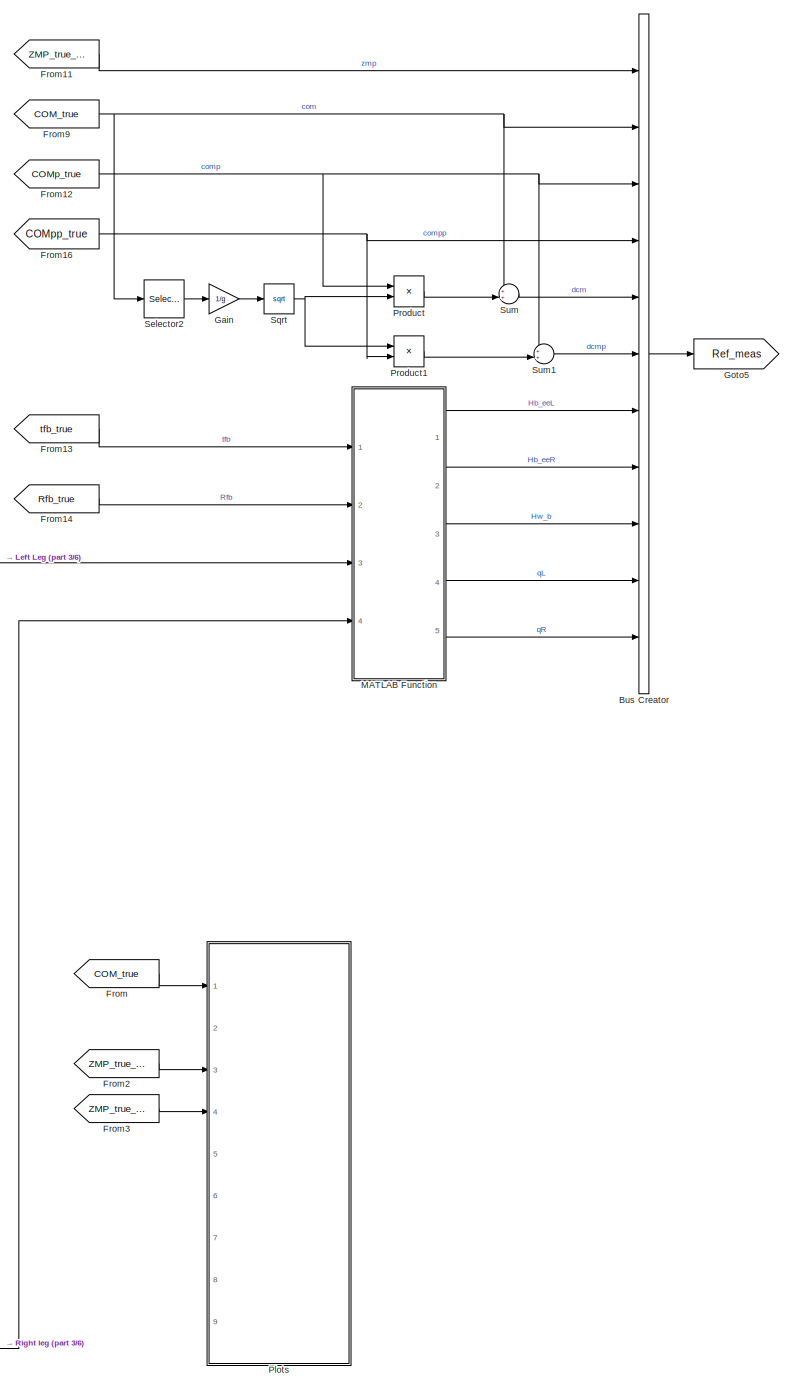
[diagram: root canvas - part 1/6, right side, full height]
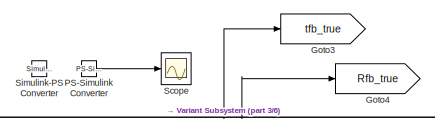
[diagram: root canvas - part 2/6, middle left region]
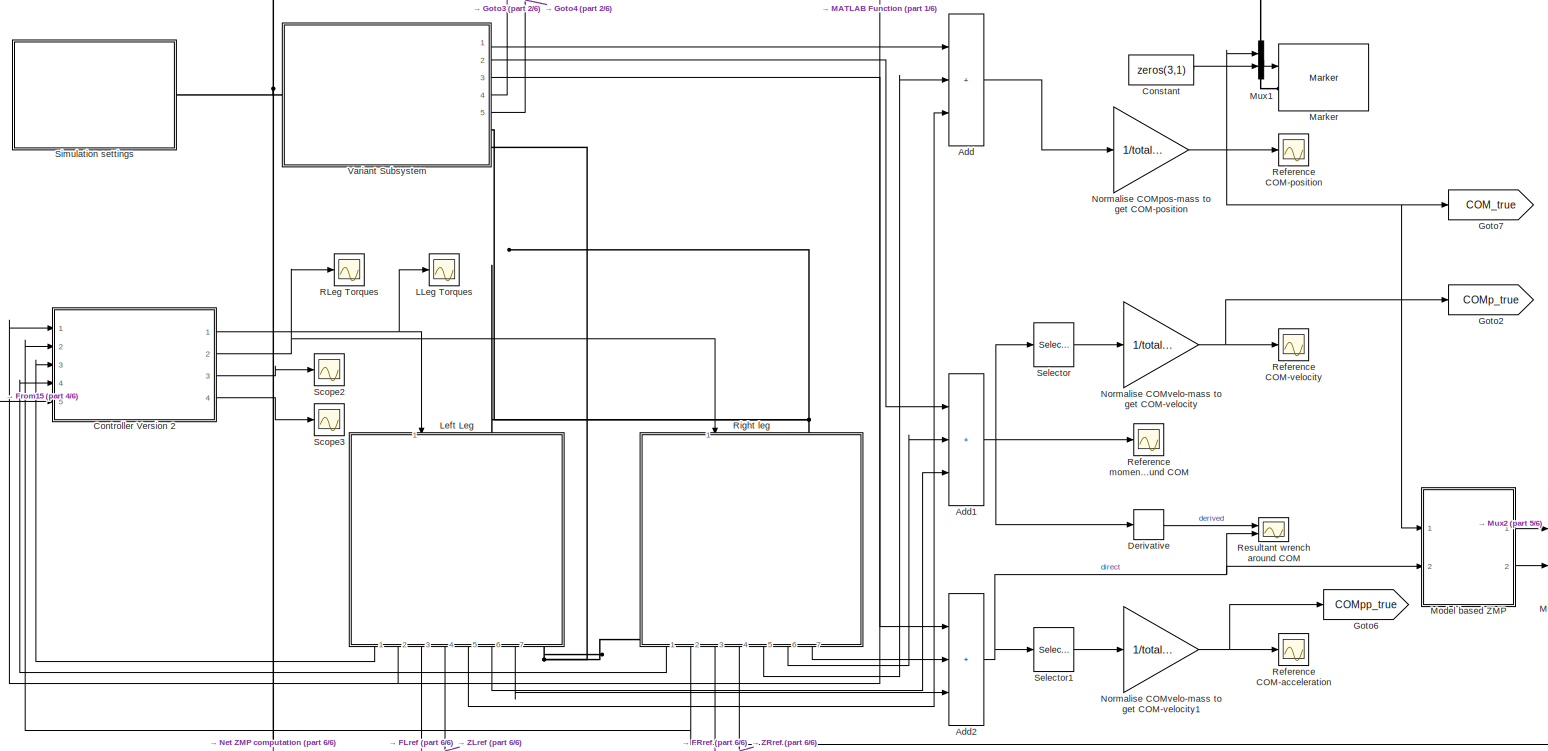
[diagram: root canvas - part 3/6, central region]
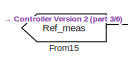
[diagram: root canvas - part 4/6, middle left region]
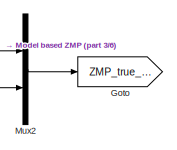
[diagram: root canvas - part 5/6, bottom center region]
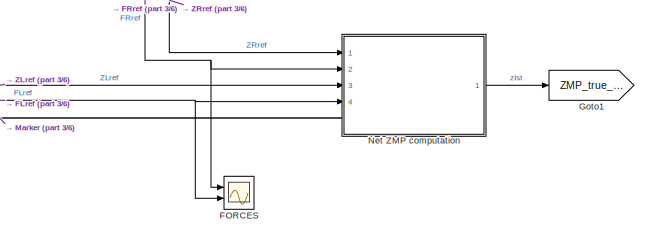
[diagram: root canvas - part 6/6, bottom center region]
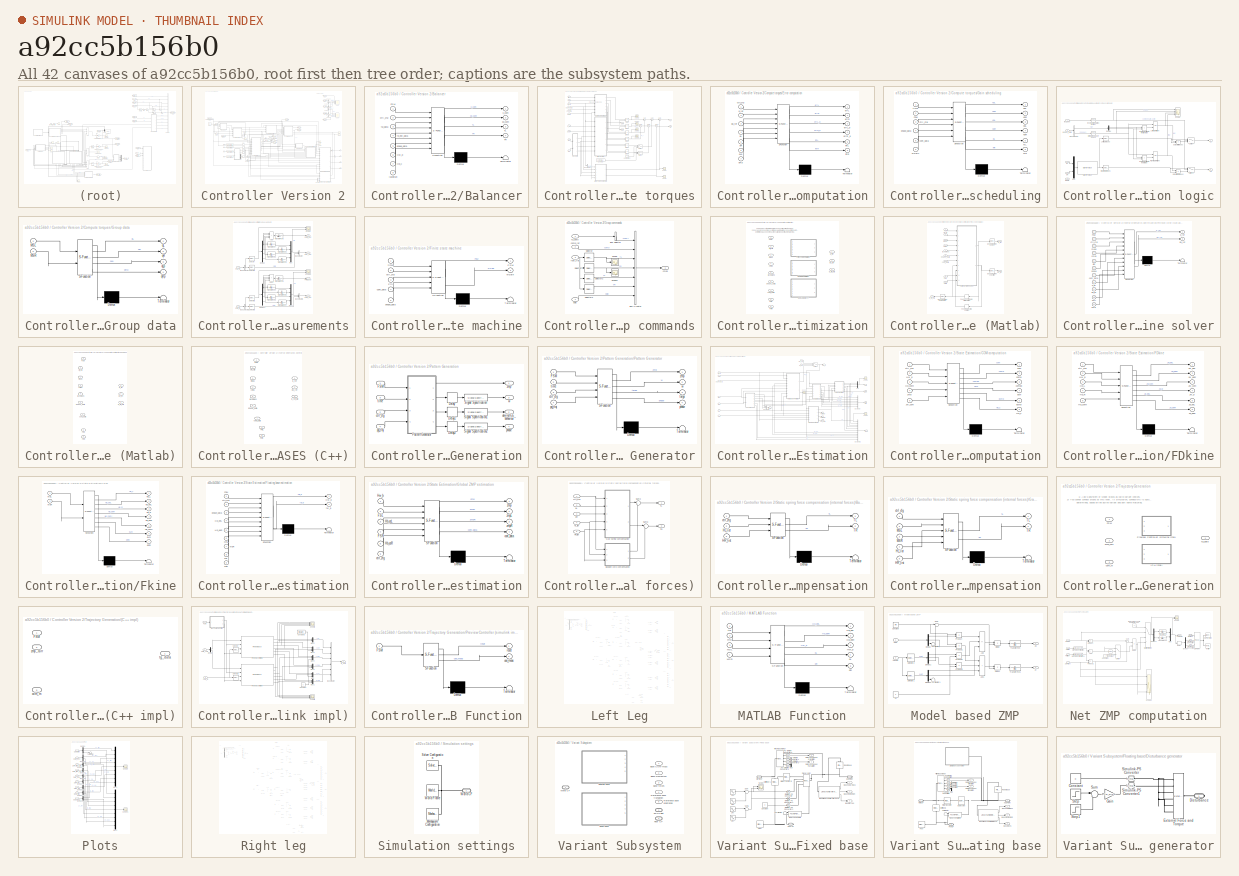
[diagram: thumbnail index - all 42 canvases of the model, root first then tree order]
MODEL slx_a92cc5b156b0
KIND model
CONFIG AbsTol = 1e-3
CONFIG EnableMultiTasking = on
CONFIG FixedStep = auto
CONFIG MaxStep = 0.01
CONFIG MinStep = auto
CONFIG RelTol = 1e-3
CONFIG SampleTimeConstraint = Unconstrained
CONFIG SolverName = ode23
CONFIG StartTime = 0.0
CONFIG StopTime = Tsim
BLOCK [Sum] Add
  IconShape = rectangular
  Inputs = 3
  Ports = [3, 1]
BLOCK [Sum] Add1
  IconShape = rectangular
  Inputs = 3
  Ports = [3, 1]
BLOCK [Sum] Add2
  IconShape = rectangular
  Inputs = 3
  Ports = [3, 1]
BLOCK [BusCreator] Bus Creator
  DisplayOption = bar
  InheritFromInputs = on
  Inputs = 11
  OutDataTypeStr = Bus: meas_bus
  Ports = [11, 1]
BLOCK [Constant] Constant
  Value = zeros(3,1)
BLOCK [SubSystem] Controller Version 2
  AncestorBlock = controller_lib/Controller Version 2
  Ports = [5, 4]
  RequestExecContextInheritance = off
BLOCK [SubSystem] Controller Version 2/Balancer
  ErrorFcn = Stateflow.Translate.translate
  PermitHierarchicalResolution = ExplicitOnly
  Ports = [8, 4]
  RequestExecContextInheritance = off
  SFBlockType = MATLAB Function
  TreatAsAtomicUnit = on
BLOCK [Demux] Controller Version 2/Balancer/ Demux 
  Outputs = 1
  Ports = [1, 1]
BLOCK [S-Function] Controller Version 2/Balancer/ SFunction 
  EnableBusSupport = on
  FunctionName = sf_sfun
  PortCounts = [8 5]
  Ports = [8, 5]
  SFcnIsStateOwnerBlock = off
  SFunctionDeploymentMode = off
  Tag = Stateflow S-Function 6
BLOCK [Terminator] Controller Version 2/Balancer/ Terminator 
BLOCK [Inport] Controller Version 2/Balancer/FSM
BLOCK [Inport] Controller Version 2/Balancer/Hb_c
  Port = 7
BLOCK [Inport] Controller Version 2/Balancer/Hw_b
  Port = 6
BLOCK [Outport] Controller Version 2/Balancer/TL
  Port = 3
BLOCK [Outport] Controller Version 2/Balancer/TR
  Port = 4
BLOCK [Inport] Controller Version 2/Balancer/ctrl_cfg
  Port = 2
BLOCK [Inport] Controller Version 2/Balancer/fb_est_data
  Port = 4
BLOCK [Inport] Controller Version 2/Balancer/jacobian
  Port = 8
BLOCK [Inport] Controller Version 2/Balancer/phase_data
  Port = 5
BLOCK [Inport] Controller Version 2/Balancer/tg_data
  Port = 3
BLOCK [Outport] Controller Version 2/Balancer/x_com
BLOCK [Outport] Controller Version 2/Balancer/xp_com
  Port = 2
BLOCK [BusCreator] Controller Version 2/Bus Creator
  DisplayOption = bar
  InheritFromInputs = on
  Inputs = 2
  OutDataTypeStr = Bus: ph_data_bus
  Ports = [2, 1]
BLOCK [BusSelector] Controller Version 2/Bus Selector
  OutputSignals = HL,HR
  Ports = [1, 2]
BLOCK [BusSelector] Controller Version 2/Bus Selector1
  OutputAsBus = on
  OutputSignals = com
  Ports = [1, 1]
BLOCK [BusSelector] Controller Version 2/Bus Selector2
  OutputAsBus = on
  OutputSignals = comp
  Ports = [1, 1]
BLOCK [BusSelector] Controller Version 2/Bus Selector3
  OutputAsBus = on
  OutputSignals = com
  Ports = [1, 1]
BLOCK [BusSelector] Controller Version 2/Bus Selector4
  OutputAsBus = on
  OutputSignals = comp
  Ports = [1, 1]
BLOCK [BusSelector] Controller Version 2/Bus Selector5
  OutputAsBus = on
  OutputSignals = com
  Ports = [1, 1]
BLOCK [BusSelector] Controller Version 2/Bus Selector6
  OutputAsBus = on
  OutputSignals = comp
  Ports = [1, 1]
BLOCK [BusSelector] Controller Version 2/Bus Selector7
  OutputSignals = Hw_b
  Ports = [1, 1]
BLOCK [BusSelector] Controller Version 2/Bus Selector8
  OutputAsBus = on
  OutputSignals = Fm
  Ports = [1, 1]
BLOCK [BusSelector] Controller Version 2/Bus Selector9
  OutputAsBus = on
  OutputSignals = Fm
  Ports = [1, 1]
BLOCK [Clock] Controller Version 2/Clock
  Decimation = 1
  DisplayTime = on
BLOCK [SubSystem] Controller Version 2/Compute torques
  NameLocation = top
  Ports = [10, 4]
  RequestExecContextInheritance = off
BLOCK [BusSelector] Controller Version 2/Compute torques/Bus Selector
  OutputSignals = fsm.test_type
  Ports = [1, 1]
BLOCK [Constant] Controller Version 2/Compute torques/Constant1
  Value = zeros(6,1)
BLOCK [Product] Controller Version 2/Compute torques/Divide
  Inputs = **
  Ports = [2, 1]
BLOCK [Product] Controller Version 2/Compute torques/Divide1
  Inputs = **
  Ports = [2, 1]
BLOCK [Product] Controller Version 2/Compute torques/Divide2
  Inputs = **
  Ports = [2, 1]
BLOCK [Product] Controller Version 2/Compute torques/Divide3
  Inputs = **
  Ports = [2, 1]
BLOCK [Product] Controller Version 2/Compute torques/Divide4
  Inputs = **
  Ports = [2, 1]
BLOCK [Product] Controller Version 2/Compute torques/Divide5
  Inputs = **
  Ports = [2, 1]
BLOCK [SubSystem] Controller Version 2/Compute torques/Error computation
  ErrorFcn = Stateflow.Translate.translate
  PermitHierarchicalResolution = ExplicitOnly
  Ports = [7, 6]
  RequestExecContextInheritance = off
  SFBlockType = MATLAB Function
  TreatAsAtomicUnit = on
BLOCK [Demux] Controller Version 2/Compute torques/Error computation/ Demux 
  Outputs = 1
  Ports = [1, 1]
BLOCK [S-Function] Controller Version 2/Compute torques/Error computation/ SFunction 
  EnableBusSupport = on
  FunctionName = sf_sfun
  PortCounts = [7 7]
  Ports = [7, 7]
  SFcnIsStateOwnerBlock = off
  SFunctionDeploymentMode = off
  Tag = Stateflow S-Function 13
BLOCK [Terminator] Controller Version 2/Compute torques/Error computation/ Terminator 
BLOCK [Inport] Controller Version 2/Compute torques/Error computation/ctrl_cfg
BLOCK [Outport] Controller Version 2/Compute torques/Error computation/errL
BLOCK [Outport] Controller Version 2/Compute torques/Error computation/errL_p
  Port = 3
BLOCK [Outport] Controller Version 2/Compute torques/Error computation/errR
  Port = 2
BLOCK [Outport] Controller Version 2/Compute torques/Error computation/errR_p
  Port = 4
BLOCK [Outport] Controller Version 2/Compute torques/Error computation/intL
  Port = 5
BLOCK [Outport] Controller Version 2/Compute torques/Error computation/intR
  Port = 6
BLOCK [Inport] Controller Version 2/Compute torques/Error computation/qL
  Port = 4
BLOCK [Inport] Controller Version 2/Compute torques/Error computation/qLp
  Port = 6
BLOCK [Inport] Controller Version 2/Compute torques/Error computation/qR
  Port = 5
BLOCK [Inport] Controller Version 2/Compute torques/Error computation/qRp
  Port = 7
BLOCK [Inport] Controller Version 2/Compute torques/Error computation/q_ref
  Port = 2
BLOCK [Inport] Controller Version 2/Compute torques/Error computation/qp_ref
  Port = 3
BLOCK [Inport] Controller Version 2/Compute torques/FSM
  Port = 2
BLOCK [SubSystem] Controller Version 2/Compute torques/Gain scheduling
  ErrorFcn = Stateflow.Translate.translate
  PermitHierarchicalResolution = ExplicitOnly
  Ports = [6, 6]
  RequestExecContextInheritance = off
  SFBlockType = MATLAB Function
  TreatAsAtomicUnit = on
BLOCK [Demux] Controller Version 2/Compute torques/Gain scheduling/ Demux 
  Outputs = 1
  Ports = [1, 1]
BLOCK [S-Function] Controller Version 2/Compute torques/Gain scheduling/ SFunction 
  EnableBusSupport = on
  FunctionName = sf_sfun
  PortCounts = [6 7]
  Ports = [6, 7]
  SFcnIsStateOwnerBlock = off
  SFunctionDeploymentMode = off
  Tag = Stateflow S-Function 12
BLOCK [Terminator] Controller Version 2/Compute torques/Gain scheduling/ Terminator 
BLOCK [Inport] Controller Version 2/Compute torques/Gain scheduling/FSM
  Port = 2
BLOCK [Outport] Controller Version 2/Compute torques/Gain scheduling/KdL
  Port = 3
BLOCK [Outport] Controller Version 2/Compute torques/Gain scheduling/KdR
  Port = 4
BLOCK [Outport] Controller Version 2/Compute torques/Gain scheduling/KiL
  Port = 5
BLOCK [Outport] Controller Version 2/Compute torques/Gain scheduling/KiR
  Port = 6
BLOCK [Outport] Controller Version 2/Compute torques/Gain scheduling/KpL
BLOCK [Outport] Controller Version 2/Compute torques/Gain scheduling/KpR
  Port = 2
BLOCK [Inport] Controller Version 2/Compute torques/Gain scheduling/cont_data
  Port = 5
BLOCK [Inport] Controller Version 2/Compute torques/Gain scheduling/ctrl_cfg
  Port = 3
BLOCK [Inport] Controller Version 2/Compute torques/Gain scheduling/phase_data
  Port = 4
BLOCK [Inport] Controller Version 2/Compute torques/Gain scheduling/time
BLOCK [Inport] Controller Version 2/Compute torques/Gain scheduling/wGain
  Port = 6
BLOCK [SubSystem] Controller Version 2/Compute torques/Gravity compensation logic
  Ports = [5, 2]
  RequestExecContextInheritance = off
BLOCK [BusSelector] Controller Version 2/Compute torques/Gravity compensation logic/Bus Selector
  OutputSignals = w,phase
  Ports = [1, 2]
BLOCK [Demux] Controller Version 2/Compute torques/Gravity compensation logic/Demux
  Outputs = 2
  Ports = [1, 2]
BLOCK [Reference] Controller Version 2/Compute torques/Gravity compensation logic/Gravity Torque  REF=robotmaniplib/Gravity Torque
  Ports = [1, 1]
  SourceBlock = robotmaniplib/Gravity Torque
  SourceProductBaseCode = RO
  SourceType = Gravity Torque
BLOCK [Reference] Controller Version 2/Compute torques/Gravity compensation logic/Inverse kinematics testing?  REF=simulink/Logic and Bit
Operations/Compare
To Constant
  Ports = [1, 1]
  SourceBlock = simulink/Logic and Bit\nOperations/Compare\nTo Constant
  SourceProductBaseCode = SL
  SourceType = Compare To Constant
BLOCK [Reference] Controller Version 2/Compute torques/Gravity compensation logic/Is it single support phase  REF=simulink/Logic and Bit
Operations/Compare
To Constant
  Ports = [1, 1]
  SourceBlock = simulink/Logic and Bit\nOperations/Compare\nTo Constant
  SourceProductBaseCode = SL
  SourceType = Compare To Constant
BLOCK [RelationalOperator] Controller Version 2/Compute torques/Gravity compensation logic/Is weight shifted to the left side
  InputSameDT = off
  Operator = >
  OutDataTypeStr = boolean
  Ports = [2, 1]
  RndMeth = Simplest
BLOCK [RelationalOperator] Controller Version 2/Compute torques/Gravity compensation logic/Is weight shifted to the right side
  InputSameDT = off
  Operator = <
  OutDataTypeStr = boolean
  Ports = [2, 1]
  RndMeth = Simplest
BLOCK [Logic] Controller Version 2/Compute torques/Gravity compensation logic/Left leg is in flight
  AllPortsSameDT = off
  OutDataTypeStr = boolean
  Ports = [2, 1]
BLOCK [Selector] Controller Version 2/Compute torques/Gravity compensation logic/Left leg torques
  IndexOptions = Index vector (dialog)
  Indices = [1:6]
  InputPortWidth = 12
  OutputSizes = 1
  Ports = [1, 1]
BLOCK [Mux] Controller Version 2/Compute torques/Gravity compensation logic/Mux
  DisplayOption = bar
  Inputs = 2
  Ports = [2, 1]
BLOCK [Product] Controller Version 2/Compute torques/Gravity compensation logic/Output left torques
  Ports = [2, 1]
BLOCK [Product] Controller Version 2/Compute torques/Gravity compensation logic/Output right torques
  Ports = [2, 1]
BLOCK [Logic] Controller Version 2/Compute torques/Gravity compensation logic/Right leg is in flight
  AllPortsSameDT = off
  OutDataTypeStr = boolean
  Ports = [2, 1]
BLOCK [Selector] Controller Version 2/Compute torques/Gravity compensation logic/Right leg torques
  IndexOptions = Index vector (dialog)
  Indices = [7:12]
  InputPortWidth = 12
  OutputSizes = 1
  Ports = [1, 1]
BLOCK [Scope] Controller Version 2/Compute torques/Gravity compensation logic/Scope
  Floating = off
  NumInputPorts = 4
  Ports = [4]
  ScopeSpecificationString = Simulink.scopes.TimeScopeBlockCfg('CurrentConfiguration', extmgr.ConfigurationSet(extmgr.Configuration('Core','General UI',true),extmgr.Configuration('Core','Source UI',true),extmgr.Configuration('Sources','WiredSimulink',true,'DataLoggingVariableName','ScopeData5'),extmgr.Configuration('Visuals','Time Domain',true,'SerializedDisplays',{struct('MinYLimReal','-0.125','MaxYLimReal','1.125','YLabelRe...<+1408ch>
BLOCK [Switch] Controller Version 2/Compute torques/Gravity compensation logic/Switch
  Criteria = u2 > Threshold
  InputSameDT = off
  SaturateOnIntegerOverflow = off
BLOCK [Switch] Controller Version 2/Compute torques/Gravity compensation logic/Switch1
  Criteria = u2 > Threshold
  InputSameDT = off
  SaturateOnIntegerOverflow = off
BLOCK [Outport] Controller Version 2/Compute torques/Gravity compensation logic/TL
BLOCK [Outport] Controller Version 2/Compute torques/Gravity compensation logic/TR
  Port = 2
BLOCK [Inport] Controller Version 2/Compute torques/Gravity compensation logic/phase_data
  Port = 2
BLOCK [Inport] Controller Version 2/Compute torques/Gravity compensation logic/qL
  Port = 3
BLOCK [Inport] Controller Version 2/Compute torques/Gravity compensation logic/qR
  Port = 4
BLOCK [Inport] Controller Version 2/Compute torques/Gravity compensation logic/test_type
BLOCK [Inport] Controller Version 2/Compute torques/Gravity compensation logic/wGain
  Port = 5
BLOCK [SubSystem] Controller Version 2/Compute torques/Group data
  ErrorFcn = Stateflow.Translate.translate
  PermitHierarchicalResolution = ExplicitOnly
  Ports = [2, 4]
  RequestExecContextInheritance = off
  SFBlockType = MATLAB Function
  TreatAsAtomicUnit = on
BLOCK [Demux] Controller Version 2/Compute torques/Group data/ Demux 
  Outputs = 1
  Ports = [1, 1]
BLOCK [S-Function] Controller Version 2/Compute torques/Group data/ SFunction 
  EnableBusSupport = on
  FunctionName = sf_sfun
  PortCounts = [2 5]
  Ports = [2, 5]
  SFcnIsStateOwnerBlock = off
  SFunctionDeploymentMode = off
  Tag = Stateflow S-Function 16
BLOCK [Terminator] Controller Version 2/Compute torques/Group data/ Terminator 
BLOCK [Inport] Controller Version 2/Compute torques/Group data/MSL
BLOCK [Inport] Controller Version 2/Compute torques/Group data/MSR
  Port = 2
BLOCK [Outport] Controller Version 2/Compute torques/Group data/qL
BLOCK [Outport] Controller Version 2/Compute torques/Group data/qLp
  Port = 3
BLOCK [Outport] Controller Version 2/Compute torques/Group data/qR
  Port = 2
BLOCK [Outport] Controller Version 2/Compute torques/Group data/qRp
  Port = 4
BLOCK [Inport] Controller Version 2/Compute torques/MSL
  Port = 5
BLOCK [Inport] Controller Version 2/Compute torques/MSR
  Port = 6
BLOCK [Scope] Controller Version 2/Compute torques/Scope
  Floating = off
  NumInputPorts = 1
  Ports = [1]
  ScopeSpecificationString = Simulink.scopes.TimeScopeBlockCfg('CurrentConfiguration', extmgr.ConfigurationSet(extmgr.Configuration('Core','General UI',true),extmgr.Configuration('Core','Source UI',true),extmgr.Configuration('Sources','WiredSimulink',true,'DataLoggingVariableName','ScopeData3'),extmgr.Configuration('Visuals','Time Domain',true,'SerializedDisplays',{struct('MinYLimReal','-7.05416','MaxYLimReal','6.82109','YLab...<+1604ch>
BLOCK [Scope] Controller Version 2/Compute torques/Scope1
  Floating = off
  NumInputPorts = 1
  Ports = [1]
  ScopeSpecificationString = Simulink.scopes.TimeScopeBlockCfg('CurrentConfiguration', extmgr.ConfigurationSet(extmgr.Configuration('Core','General UI',true),extmgr.Configuration('Core','Source UI',true),extmgr.Configuration('Sources','WiredSimulink',true,'DataLoggingVariableName','ScopeData4'),extmgr.Configuration('Visuals','Time Domain',true,'SerializedDisplays',{struct('MinYLimReal','-1.00000','MaxYLimReal','1.00000','YLab...<+1609ch>
BLOCK [Scope] Controller Version 2/Compute torques/Scope2
  Floating = off
  NumInputPorts = 1
  Ports = [1]
  ScopeSpecificationString = Simulink.scopes.TimeScopeBlockCfg('CurrentConfiguration', extmgr.ConfigurationSet(extmgr.Configuration('Core','General UI',true),extmgr.Configuration('Core','Source UI',true),extmgr.Configuration('Sources','WiredSimulink',true,'DataLoggingVariableName','ScopeData14'),extmgr.Configuration('Visuals','Time Domain',true,'SerializedDisplays',{struct('MinYLimReal','-186.32013','MaxYLimReal','131.93955',...<+1496ch>
BLOCK [Scope] Controller Version 2/Compute torques/Scope3
  Floating = off
  NumInputPorts = 1
  Ports = [1]
  ScopeSpecificationString = Simulink.scopes.TimeScopeBlockCfg('CurrentConfiguration', extmgr.ConfigurationSet(extmgr.Configuration('Core','General UI',true),extmgr.Configuration('Core','Source UI',true),extmgr.Configuration('Sources','WiredSimulink',true,'DataLoggingVariableName','ScopeData15'),extmgr.Configuration('Visuals','Time Domain',true,'SerializedDisplays',{struct('MinYLimReal','-16.78796','MaxYLimReal','16.62256','Y...<+1487ch>
BLOCK [Scope] Controller Version 2/Compute torques/Scope4
  Floating = off
  NumInputPorts = 1
  Ports = [1]
  ScopeSpecificationString = Simulink.scopes.TimeScopeBlockCfg('CurrentConfiguration', extmgr.ConfigurationSet(extmgr.Configuration('Core','General UI',true),extmgr.Configuration('Core','Source UI',true),extmgr.Configuration('Sources','WiredSimulink',true,'DataLoggingVariableName','ScopeData16'),extmgr.Configuration('Visuals','Time Domain',true,'SerializedDisplays',{struct('MinYLimReal','-18.43481','MaxYLimReal','20.97728','Y...<+1461ch>
BLOCK [Scope] Controller Version 2/Compute torques/Scope5
  Floating = off
  NumInputPorts = 1
  Ports = [1]
  ScopeSpecificationString = Simulink.scopes.TimeScopeBlockCfg('CurrentConfiguration', extmgr.ConfigurationSet(extmgr.Configuration('Core','General UI',true),extmgr.Configuration('Core','Source UI',true),extmgr.Configuration('Sources','WiredSimulink',true,'DataLoggingVariableName','ScopeData17'),extmgr.Configuration('Visuals','Time Domain',true,'SerializedDisplays',{struct('MinYLimReal','-11.91022','MaxYLimReal','16.6139','YL...<+1456ch>
BLOCK [Sum] Controller Version 2/Compute torques/Sum
  Inputs = |++
  Ports = [2, 1]
BLOCK [Sum] Controller Version 2/Compute torques/Sum1
  Inputs = |++
  Ports = [2, 1]
BLOCK [Sum] Controller Version 2/Compute torques/Sum2
  Inputs = |++
  Ports = [2, 1]
BLOCK [Sum] Controller Version 2/Compute torques/Sum3
  Inputs = |++
  Ports = [2, 1]
BLOCK [Sum] Controller Version 2/Compute torques/Sum4
  Inputs = |++
  Ports = [2, 1]
BLOCK [Sum] Controller Version 2/Compute torques/Sum5
  Inputs = |++
  Ports = [2, 1]
BLOCK [Switch] Controller Version 2/Compute torques/Switch
  Criteria = u2 > Threshold
  InputSameDT = off
  SaturateOnIntegerOverflow = off
BLOCK [Switch] Controller Version 2/Compute torques/Switch1
  Criteria = u2 > Threshold
  InputSameDT = off
  SaturateOnIntegerOverflow = off
BLOCK [Outport] Controller Version 2/Compute torques/TL
BLOCK [Outport] Controller Version 2/Compute torques/TR
  Port = 2
BLOCK [Constant] Controller Version 2/Compute torques/Use integrator
  Value = 0
BLOCK [Inport] Controller Version 2/Compute torques/cont_data
  Port = 9
BLOCK [Inport] Controller Version 2/Compute torques/ctrl_cfg
  Port = 8
BLOCK [Inport] Controller Version 2/Compute torques/phase_data
  Port = 7
BLOCK [Outport] Controller Version 2/Compute torques/qLerr
  Port = 3
BLOCK [Outport] Controller Version 2/Compute torques/qRerr
  Port = 4
BLOCK [Inport] Controller Version 2/Compute torques/q_ref
  Port = 3
BLOCK [Inport] Controller Version 2/Compute torques/qp_ref
  Port = 4
BLOCK [Inport] Controller Version 2/Compute torques/time
BLOCK [Inport] Controller Version 2/Compute torques/wGain
  Port = 10
BLOCK [Constant] Controller Version 2/Configuration parameters of the controller
  NameLocation = top
  OutDataTypeStr = Bus: ctrl_cfg_rem_bus
  SampleTime = ctrl_cfg_rem.par.Ts
  Value = ctrl_cfg_rem
BLOCK [Delay] Controller Version 2/Delay
  DelayLength = 1
  InitialCondition = ctrl_cfg_rem.fb_est.init.MSL
  InputPortMap = u0
  Ports = [1, 1]
  SampleTime = ctrl_cfg_rem.par.Ts
BLOCK [Delay] Controller Version 2/Delay1
  DelayLength = 1
  InitialCondition = ctrl_cfg_rem.fb_est.init.MSR
  InputPortMap = u0
  Ports = [1, 1]
  SampleTime = ctrl_cfg_rem.par.Ts
BLOCK [Delay] Controller Version 2/Delay2
  DelayLength = 1
  InitialCondition = ctrl_cfg_rem.fb_est.init.FSL
  InputPortMap = u0
  Ports = [1, 1]
  SampleTime = ctrl_cfg_rem.par.Ts
BLOCK [Delay] Controller Version 2/Delay3
  DelayLength = 1
  InitialCondition = ctrl_cfg_rem.fb_est.init.FSR
  InputPortMap = u0
  Ports = [1, 1]
  SampleTime = ctrl_cfg_rem.par.Ts
BLOCK [Delay] Controller Version 2/Delay4
  DelayLength = 1
  InitialCondition = 0
  InputPortMap = u0
  Ports = [1, 1]
  SampleTime = ctrl_cfg_rem.par.Ts
BLOCK [Delay] Controller Version 2/Delay5
  DelayLength = 1
  InitialCondition = [0;0]
  InputPortMap = u0
  Ports = [1, 1]
  SampleTime = ctrl_cfg_rem.par.Ts
BLOCK [Constant] Controller Version 2/Entire trajectory
  OutDataTypeStr = Bus: pg_traj_bus
  SampleTime = ctrl_cfg_rem.par.Ts
  Value = pg_traj
  VectorParams1D = off
BLOCK [Inport] Controller Version 2/FSL
  Port = 3
BLOCK [Inport] Controller Version 2/FSR
  Port = 4
BLOCK [SubSystem] Controller Version 2/Filter force measurements
  Ports = [2, 4]
  RequestExecContextInheritance = off
BLOCK [Sum] Controller Version 2/Filter force measurements/Add
  IconShape = rectangular
  Inputs = 4
  Ports = [4, 1]
BLOCK [Sum] Controller Version 2/Filter force measurements/Add1
  IconShape = rectangular
  Inputs = 4
  Ports = [4, 1]
BLOCK [BusCreator] Controller Version 2/Filter force measurements/Bus Creator
  DisplayOption = bar
  InheritFromInputs = on
  Inputs = 2
  OutDataTypeStr = Bus: fs_str_bus
  Ports = [2, 1]
BLOCK [BusCreator] Controller Version 2/Filter force measurements/Bus Creator1
  DisplayOption = bar
  InheritFromInputs = on
  Inputs = 2
  OutDataTypeStr = Bus: fs_str_bus
  Ports = [2, 1]
BLOCK [BusSelector] Controller Version 2/Filter force measurements/Bus Selector
  OutputAsBus = on
  OutputSignals = Fm,state
  Ports = [1, 1]
BLOCK [BusSelector] Controller Version 2/Filter force measurements/Bus Selector1
  OutputAsBus = on
  OutputSignals = Fm,state
  Ports = [1, 1]
BLOCK [Demux] Controller Version 2/Filter force measurements/Demux
  Ports = [1, 4]
BLOCK [Demux] Controller Version 2/Filter force measurements/Demux1
  Ports = [1, 4]
BLOCK [Outport] Controller Version 2/Filter force measurements/FLtot_out
  Port = 3
BLOCK [Outport] Controller Version 2/Filter force measurements/FRtot_out
  Port = 4
BLOCK [Inport] Controller Version 2/Filter force measurements/FSL_in
BLOCK [Outport] Controller Version 2/Filter force measurements/FSL_out
BLOCK [Inport] Controller Version 2/Filter force measurements/FSR_in
  Port = 2
BLOCK [Outport] Controller Version 2/Filter force measurements/FSR_out
  Port = 2
BLOCK [Mux] Controller Version 2/Filter force measurements/Mux
  DisplayOption = bar
  Ports = [4, 1]
BLOCK [Mux] Controller Version 2/Filter force measurements/Mux1
  DisplayOption = bar
  Ports = [4, 1]
BLOCK [Scope] Controller Version 2/Filter force measurements/Scope
  Floating = off
  NumInputPorts = 2
  Ports = [2]
  ScopeSpecificationString = Simulink.scopes.TimeScopeBlockCfg('CurrentConfiguration', extmgr.ConfigurationSet(extmgr.Configuration('Core','General UI',true),extmgr.Configuration('Core','Source UI',true),extmgr.Configuration('Sources','WiredSimulink',true,'DataLoggingVariableName','ScopeData12'),extmgr.Configuration('Visuals','Time Domain',true,'SerializedDisplays',{struct('MinYLimReal','-28.81672','MaxYLimReal','259.35048','...<+1722ch>
BLOCK [Scope] Controller Version 2/Filter force measurements/Scope1
  Floating = off
  NumInputPorts = 2
  Ports = [2]
  ScopeSpecificationString = Simulink.scopes.TimeScopeBlockCfg('CurrentConfiguration', extmgr.ConfigurationSet(extmgr.Configuration('Core','General UI',true),extmgr.Configuration('Core','Source UI',true),extmgr.Configuration('Sources','WiredSimulink',true,'DataLoggingVariableName','ScopeData13'),extmgr.Configuration('Visuals','Time Domain',true,'SerializedDisplays',{struct('MinYLimReal','-54.84005','MaxYLimReal','150.18768','...<+1705ch>
BLOCK [Selector] Controller Version 2/Filter force measurements/Selector
  IndexOptions = Index vector (dialog)
  Indices = [1:4]
  InputPortWidth = 5
  OutputSizes = 1
  Ports = [1, 1]
BLOCK [Selector] Controller Version 2/Filter force measurements/Selector1
  IndexOptions = Index vector (dialog)
  Indices = [5]
  InputPortWidth = 5
  OutputSizes = 1
  Ports = [1, 1]
BLOCK [Selector] Controller Version 2/Filter force measurements/Selector2
  IndexOptions = Index vector (dialog)
  Indices = [1:4]
  InputPortWidth = 5
  OutputSizes = 1
  Ports = [1, 1]
BLOCK [Selector] Controller Version 2/Filter force measurements/Selector3
  IndexOptions = Index vector (dialog)
  Indices = [5]
  InputPortWidth = 5
  OutputSizes = 1
  Ports = [1, 1]
BLOCK [TransferFcn] Controller Version 2/Filter force measurements/Transfer Fcn
  Denominator = [Tfil 1]
BLOCK [TransferFcn] Controller Version 2/Filter force measurements/Transfer Fcn1
  Denominator = [Tfil 1]
BLOCK [TransferFcn] Controller Version 2/Filter force measurements/Transfer Fcn2
  Denominator = [Tfil 1]
BLOCK [TransferFcn] Controller Version 2/Filter force measurements/Transfer Fcn3
  Denominator = [Tfil 1]
BLOCK [TransferFcn] Controller Version 2/Filter force measurements/Transfer Fcn4
  Denominator = [Tfil 1]
BLOCK [TransferFcn] Controller Version 2/Filter force measurements/Transfer Fcn5
  Denominator = [Tfil 1]
BLOCK [TransferFcn] Controller Version 2/Filter force measurements/Transfer Fcn6
  Denominator = [Tfil 1]
BLOCK [TransferFcn] Controller Version 2/Filter force measurements/Transfer Fcn7
  Denominator = [Tfil 1]
BLOCK [TransferFcn] Controller Version 2/Filter force measurements/Transfer Fcn8
  Denominator = [Tfil*5 1]
BLOCK [TransferFcn] Controller Version 2/Filter force measurements/Transfer Fcn9
  Denominator = [Tfil*5 1]
BLOCK [SubSystem] Controller Version 2/Finite state machine
  ErrorFcn = Stateflow.Translate.translate
  PermitHierarchicalResolution = ExplicitOnly
  Ports = [5, 2]
  RequestExecContextInheritance = off
  SFBlockType = MATLAB Function
  TreatAsAtomicUnit = on
BLOCK [Demux] Controller Version 2/Finite state machine/ Demux 
  Outputs = 1
  Ports = [1, 1]
BLOCK [S-Function] Controller Version 2/Finite state machine/ SFunction 
  EnableBusSupport = on
  FunctionName = sf_sfun
  PortCounts = [5 3]
  Ports = [5, 3]
  SFcnIsStateOwnerBlock = off
  SFunctionDeploymentMode = off
  Tag = Stateflow S-Function 1
BLOCK [Terminator] Controller Version 2/Finite state machine/ Terminator 
BLOCK [Outport] Controller Version 2/Finite state machine/FSM
BLOCK [Inport] Controller Version 2/Finite state machine/Ffil
  Port = 3
BLOCK [Inport] Controller Version 2/Finite state machine/cont_data
  Port = 4
BLOCK [Inport] Controller Version 2/Finite state machine/ctrl_cfg
  Port = 2
BLOCK [Inport] Controller Version 2/Finite state machine/phase_data
  Port = 5
BLOCK [Inport] Controller Version 2/Finite state machine/time
BLOCK [Outport] Controller Version 2/Finite state machine/wGain
  Port = 2
BLOCK [From] Controller Version 2/From
  GotoTag = COMp_bal
BLOCK [From] Controller Version 2/From1
  GotoTag = Ref_data
BLOCK [From] Controller Version 2/From2
  GotoTag = Fb_data
BLOCK [From] Controller Version 2/From3
  GotoTag = Tg_data
BLOCK [From] Controller Version 2/From4
  GotoTag = COM_bal
BLOCK [Goto] Controller Version 2/Goto
  GotoTag = COMp_bal
BLOCK [Goto] Controller Version 2/Goto1
  GotoTag = Ref_data
BLOCK [Goto] Controller Version 2/Goto2
  GotoTag = Fb_data
BLOCK [Goto] Controller Version 2/Goto3
  GotoTag = Tg_data
BLOCK [Goto] Controller Version 2/Goto4
  GotoTag = COM_bal
BLOCK [SubSystem] Controller Version 2/Group commands
  NameLocation = top
  Ports = [4, 1]
  RequestExecContextInheritance = off
BLOCK [BusCreator] Controller Version 2/Group commands/Bus Creator
  DisplayOption = bar
  InheritFromInputs = on
  Inputs = 7
  OutDataTypeStr = Bus: ikine_inp_bus
  Ports = [7, 1]
BLOCK [BusSelector] Controller Version 2/Group commands/Bus Selector
  OutputSignals = com
  Ports = [1, 1]
BLOCK [Scope] Controller Version 2/Group commands/Scope
  Floating = off
  NumInputPorts = 1
  Ports = [1]
  ScopeSpecificationString = Simulink.scopes.TimeScopeBlockCfg('CurrentConfiguration', extmgr.ConfigurationSet(extmgr.Configuration('Core','General UI',true),extmgr.Configuration('Core','Source UI',true),extmgr.Configuration('Sources','WiredSimulink',true,'DataLoggingVariableName','ScopeData3'),extmgr.Configuration('Visuals','Time Domain',true,'SerializedDisplays',{struct('MinYLimReal','-0.01275','MaxYLimReal','0.11475','YLab...<+1495ch>
BLOCK [Scope] Controller Version 2/Group commands/Scope1
  Floating = off
  NumInputPorts = 1
  Ports = [1]
  ScopeSpecificationString = Simulink.scopes.TimeScopeBlockCfg('CurrentConfiguration', extmgr.ConfigurationSet(extmgr.Configuration('Core','General UI',true),extmgr.Configuration('Core','Source UI',true),extmgr.Configuration('Sources','WiredSimulink',true,'DataLoggingVariableName','ScopeData4'),extmgr.Configuration('Visuals','Time Domain',true,'SerializedDisplays',{struct('MinYLimReal','-0.12777','MaxYLimReal','0.12993','YLab...<+1468ch>
BLOCK [Selector] Controller Version 2/Group commands/Selector
  IndexOptions = Index vector (dialog)
  Indices = [1:3]
  InputPortWidth = 12
  OutputSizes = 1
  Ports = [1, 1]
BLOCK [Selector] Controller Version 2/Group commands/Selector1
  IndexOptions = Index vector (dialog)
  Indices = [4:6]
  InputPortWidth = 12
  OutputSizes = 1
  Ports = [1, 1]
BLOCK [Selector] Controller Version 2/Group commands/Selector2
  IndexOptions = Index vector (dialog)
  Indices = [7:9]
  InputPortWidth = 12
  OutputSizes = 1
  Ports = [1, 1]
BLOCK [Selector] Controller Version 2/Group commands/Selector3
  IndexOptions = Index vector (dialog)
  Indices = [10:12]
  InputPortWidth = 12
  OutputSizes = 1
  Ports = [1, 1]
BLOCK [Outport] Controller Version 2/Group commands/cmds
  OutDataTypeStr = Bus: ikine_inp_bus
BLOCK [Inport] Controller Version 2/Group commands/comp_ref
  Port = 2
BLOCK [Inport] Controller Version 2/Group commands/foot_traj
  Port = 3
BLOCK [Inport] Controller Version 2/Group commands/qold
  Port = 4
BLOCK [Inport] Controller Version 2/Group commands/tg_data
BLOCK [SubSystem] Controller Version 2/Inverse kinematics optimization
  NameLocation = top
  Ports = [9, 3]
  RequestExecContextInheritance = off
  Variant = on
BLOCK [Inport] Controller Version 2/Inverse kinematics optimization/FSM
BLOCK [Inport] Controller Version 2/Inverse kinematics optimization/FmL
  Port = 8
BLOCK [Inport] Controller Version 2/Inverse kinematics optimization/FmR
  Port = 9
BLOCK [SubSystem] Controller Version 2/Inverse kinematics optimization/Fmincon Ikine (Matlab)
  Ports = [9, 3]
  RequestExecContextInheritance = off
  VariantControl = VAR_IK ==1
BLOCK [Inport] Controller Version 2/Inverse kinematics optimization/Fmincon Ikine (Matlab)/FSM
  OutDataTypeStr = Bus: FSM_bus
BLOCK [Delay] Controller Version 2/Inverse kinematics optimization/Fmincon Ikine (Matlab)/Feedack of integral of full solution
  DelayLength = 1
  InitialCondition = ik_opt.q_ini
  InputPortMap = u0
  Ports = [1, 1]
  SampleTime = Ts
BLOCK [Delay] Controller Version 2/Inverse kinematics optimization/Fmincon Ikine (Matlab)/Feedback of full solution
  DelayLength = 1
  InitialCondition = ik_opt.qp_ini
  InputPortMap = u0
  Ports = [1, 1]
  SampleTime = Ts
BLOCK [Inport] Controller Version 2/Inverse kinematics optimization/Fmincon Ikine (Matlab)/FmL
  Port = 8
BLOCK [Inport] Controller Version 2/Inverse kinematics optimization/Fmincon Ikine (Matlab)/FmR
  Port = 9
BLOCK [SubSystem] Controller Version 2/Inverse kinematics optimization/Fmincon Ikine (Matlab)/Full body IKine solver
  ErrorFcn = Stateflow.Translate.translate
  PermitHierarchicalResolution = ExplicitOnly
  Ports = [11, 2]
  RequestExecContextInheritance = off
  SFBlockType = MATLAB Function
  TreatAsAtomicUnit = on
BLOCK [Demux] Controller Version 2/Inverse kinematics optimization/Fmincon Ikine (Matlab)/Full body IKine solver/ Demux 
  Outputs = 1
  Ports = [1, 1]
BLOCK [S-Function] Controller Version 2/Inverse kinematics optimization/Fmincon Ikine (Matlab)/Full body IKine solver/ SFunction 
  EnableBusSupport = on
  FunctionName = sf_sfun
  PortCounts = [11 3]
  Ports = [11, 3]
  SFcnIsStateOwnerBlock = off
  SFunctionDeploymentMode = off
  Tag = Stateflow S-Function 14
BLOCK [Terminator] Controller Version 2/Inverse kinematics optimization/Fmincon Ikine (Matlab)/Full body IKine solver/ Terminator 
BLOCK [Inport] Controller Version 2/Inverse kinematics optimization/Fmincon Ikine (Matlab)/Full body IKine solver/FSM
BLOCK [Inport] Controller Version 2/Inverse kinematics optimization/Fmincon Ikine (Matlab)/Full body IKine solver/FmL
  Port = 10
BLOCK [Inport] Controller Version 2/Inverse kinematics optimization/Fmincon Ikine (Matlab)/Full body IKine solver/FmR
  Port = 11
BLOCK [Inport] Controller Version 2/Inverse kinematics optimization/Fmincon Ikine (Matlab)/Full body IKine solver/Jlist
  Port = 5
BLOCK [Inport] Controller Version 2/Inverse kinematics optimization/Fmincon Ikine (Matlab)/Full body IKine solver/cmds
  Port = 4
BLOCK [Inport] Controller Version 2/Inverse kinematics optimization/Fmincon Ikine (Matlab)/Full body IKine solver/cont_data
  Port = 7
BLOCK [Inport] Controller Version 2/Inverse kinematics optimization/Fmincon Ikine (Matlab)/Full body IKine solver/ctrl_cfg
  Port = 2
BLOCK [Inport] Controller Version 2/Inverse kinematics optimization/Fmincon Ikine (Matlab)/Full body IKine solver/meas
  Port = 3
BLOCK [Inport] Controller Version 2/Inverse kinematics optimization/Fmincon Ikine (Matlab)/Full body IKine solver/phase
  Port = 6
BLOCK [Inport] Controller Version 2/Inverse kinematics optimization/Fmincon Ikine (Matlab)/Full body IKine solver/q_ini
  Port = 8
BLOCK [Outport] Controller Version 2/Inverse kinematics optimization/Fmincon Ikine (Matlab)/Full body IKine solver/q_ref
BLOCK [Inport] Controller Version 2/Inverse kinematics optimization/Fmincon Ikine (Matlab)/Full body IKine solver/qp_ini
  Port = 9
BLOCK [Outport] Controller Version 2/Inverse kinematics optimization/Fmincon Ikine (Matlab)/Full body IKine solver/qp_ref
  Port = 2
BLOCK [Selector] Controller Version 2/Inverse kinematics optimization/Fmincon Ikine (Matlab)/Only select joint angles
  IndexOptions = Index vector (dialog)
  Indices = [7:18]
  InputPortWidth = 18
  OutputSizes = 1
  Ports = [1, 1]
BLOCK [Selector] Controller Version 2/Inverse kinematics optimization/Fmincon Ikine (Matlab)/Only select joint angles (old)
  IndexOptions = Index vector (dialog)
  Indices = [7:18]
  InputPortWidth = 18
  NameLocation = top
  OutputSizes = 1
  Ports = [1, 1]
BLOCK [Selector] Controller Version 2/Inverse kinematics optimization/Fmincon Ikine (Matlab)/Only select joint velocities
  IndexOptions = Index vector (dialog)
  Indices = [7:18]
  InputPortWidth = 18
  OutputSizes = 1
  Ports = [1, 1]
BLOCK [Inport] Controller Version 2/Inverse kinematics optimization/Fmincon Ikine (Matlab)/cmds
  OutDataTypeStr = Bus: ikine_inp_bus
  Port = 4
BLOCK [Inport] Controller Version 2/Inverse kinematics optimization/Fmincon Ikine (Matlab)/cont_data
  Port = 7
BLOCK [Inport] Controller Version 2/Inverse kinematics optimization/Fmincon Ikine (Matlab)/ctrl_cfg
  OutDataTypeStr = Bus: ctrl_cfg_rem_bus
  Port = 2
BLOCK [Inport] Controller Version 2/Inverse kinematics optimization/Fmincon Ikine (Matlab)/jacobians
  OutDataTypeStr = Bus: jac_bus
  Port = 5
BLOCK [Inport] Controller Version 2/Inverse kinematics optimization/Fmincon Ikine (Matlab)/meas
  OutDataTypeStr = Bus: meas_bus
  Port = 3
BLOCK [Inport] Controller Version 2/Inverse kinematics optimization/Fmincon Ikine (Matlab)/phase_data
  OutDataTypeStr = Bus: ph_data_bus
  Port = 6
BLOCK [Outport] Controller Version 2/Inverse kinematics optimization/Fmincon Ikine (Matlab)/q_ref
BLOCK [Outport] Controller Version 2/Inverse kinematics optimization/Fmincon Ikine (Matlab)/q_ref_old
  NameLocation = top
  Port = 3
BLOCK [Outport] Controller Version 2/Inverse kinematics optimization/Fmincon Ikine (Matlab)/qp_ref
  Port = 2
BLOCK [SubSystem] Controller Version 2/Inverse kinematics optimization/OSQP Ikine (Matlab)
  Ports = [9, 3]
  RequestExecContextInheritance = off
  VariantControl = VAR_IK ==2
BLOCK [Inport] Controller Version 2/Inverse kinematics optimization/OSQP Ikine (Matlab)/FSM
BLOCK [Inport] Controller Version 2/Inverse kinematics optimization/OSQP Ikine (Matlab)/FmL
  Port = 8
BLOCK [Inport] Controller Version 2/Inverse kinematics optimization/OSQP Ikine (Matlab)/FmR
  Port = 9
BLOCK [Inport] Controller Version 2/Inverse kinematics optimization/OSQP Ikine (Matlab)/cmds
  Port = 4
BLOCK [Inport] Controller Version 2/Inverse kinematics optimization/OSQP Ikine (Matlab)/cont_data
  Port = 7
BLOCK [Inport] Controller Version 2/Inverse kinematics optimization/OSQP Ikine (Matlab)/ctrl_cfg
  Port = 2
BLOCK [Inport] Controller Version 2/Inverse kinematics optimization/OSQP Ikine (Matlab)/jacobians
  Port = 5
BLOCK [Inport] Controller Version 2/Inverse kinematics optimization/OSQP Ikine (Matlab)/meas
  Port = 3
BLOCK [Inport] Controller Version 2/Inverse kinematics optimization/OSQP Ikine (Matlab)/phase_data
  Port = 6
BLOCK [Outport] Controller Version 2/Inverse kinematics optimization/OSQP Ikine (Matlab)/q_ref
BLOCK [Outport] Controller Version 2/Inverse kinematics optimization/OSQP Ikine (Matlab)/q_ref_old
  Port = 3
BLOCK [Outport] Controller Version 2/Inverse kinematics optimization/OSQP Ikine (Matlab)/qp_ref
  Port = 2
BLOCK [Inport] Controller Version 2/Inverse kinematics optimization/cmds
  Port = 4
BLOCK [Inport] Controller Version 2/Inverse kinematics optimization/cont_data
  Port = 7
BLOCK [Inport] Controller Version 2/Inverse kinematics optimization/ctrl_cfg
  Port = 2
BLOCK [Inport] Controller Version 2/Inverse kinematics optimization/jacobians
  Port = 5
BLOCK [Inport] Controller Version 2/Inverse kinematics optimization/meas
  Port = 3
BLOCK [Inport] Controller Version 2/Inverse kinematics optimization/phase_data
  Port = 6
BLOCK [Outport] Controller Version 2/Inverse kinematics optimization/q_ref
BLOCK [Outport] Controller Version 2/Inverse kinematics optimization/q_ref_old
  Port = 3
BLOCK [SubSystem] Controller Version 2/Inverse kinematics optimization/qpOASES (C++)
  Ports = [9, 3]
  RequestExecContextInheritance = off
  VariantControl = VAR_IK ==3
BLOCK [Inport] Controller Version 2/Inverse kinematics optimization/qpOASES (C++)/FSM
BLOCK [Inport] Controller Version 2/Inverse kinematics optimization/qpOASES (C++)/FmL
  Port = 8
BLOCK [Inport] Controller Version 2/Inverse kinematics optimization/qpOASES (C++)/FmR
  Port = 9
BLOCK [Inport] Controller Version 2/Inverse kinematics optimization/qpOASES (C++)/cmds
  Port = 4
BLOCK [Inport] Controller Version 2/Inverse kinematics optimization/qpOASES (C++)/cont_data
  Port = 7
BLOCK [Inport] Controller Version 2/Inverse kinematics optimization/qpOASES (C++)/ctrl_cfg
  Port = 2
BLOCK [Inport] Controller Version 2/Inverse kinematics optimization/qpOASES (C++)/jacobians
  Port = 5
BLOCK [Inport] Controller Version 2/Inverse kinematics optimization/qpOASES (C++)/meas
  Port = 3
BLOCK [Inport] Controller Version 2/Inverse kinematics optimization/qpOASES (C++)/phase_data
  Port = 6
BLOCK [Outport] Controller Version 2/Inverse kinematics optimization/qpOASES (C++)/q_ref
BLOCK [Outport] Controller Version 2/Inverse kinematics optimization/qpOASES (C++)/q_ref_old
  Port = 3
BLOCK [Outport] Controller Version 2/Inverse kinematics optimization/qpOASES (C++)/qp_ref
  Port = 2
BLOCK [Outport] Controller Version 2/Inverse kinematics optimization/qp_ref
  Port = 2
BLOCK [Inport] Controller Version 2/MSL
BLOCK [Inport] Controller Version 2/MSR
  Port = 2
BLOCK [Mux] Controller Version 2/Mux
  DisplayOption = bar
  Inputs = 2
  Ports = [2, 1]
BLOCK [SubSystem] Controller Version 2/Pattern Generation
  Ports = [4, 4]
  RequestExecContextInheritance = off
BLOCK [Delay] Controller Version 2/Pattern Generation/Delay
  DelayLength = ctrl_cfg_rem.tg.N_L
  InitialCondition = 0
  InputPortMap = u0
  Ports = [1, 1]
  SampleTime = ctrl_cfg_rem.par.Ts
BLOCK [Delay] Controller Version 2/Pattern Generation/Delay1
  DelayLength = ctrl_cfg_rem.tg.N_L
  InitialCondition = ctrl_cfg_rem.pg.ini_targs
  InputPortMap = u0
  Ports = [1, 1]
  SampleTime = ctrl_cfg_rem.par.Ts
BLOCK [Delay] Controller Version 2/Pattern Generation/Delay2
  DelayLength = ctrl_cfg_rem.tg.N_L
  InitialCondition = 0
  InputPortMap = u0
  Ports = [1, 1]
  SampleTime = ctrl_cfg_rem.par.Ts
BLOCK [Inport] Controller Version 2/Pattern Generation/FSM
BLOCK [SubSystem] Controller Version 2/Pattern Generation/Pattern Generator
  ErrorFcn = Stateflow.Translate.translate
  PermitHierarchicalResolution = ExplicitOnly
  Ports = [4, 4]
  RequestExecContextInheritance = off
  SFBlockType = MATLAB Function
  TreatAsAtomicUnit = on
BLOCK [Demux] Controller Version 2/Pattern Generation/Pattern Generator/ Demux 
  Outputs = 1
  Ports = [1, 1]
BLOCK [S-Function] Controller Version 2/Pattern Generation/Pattern Generator/ SFunction 
  EnableBusSupport = on
  FunctionName = sf_sfun
  PortCounts = [4 5]
  Ports = [4, 5]
  SFcnIsStateOwnerBlock = off
  SFunctionDeploymentMode = off
  Tag = Stateflow S-Function 2
BLOCK [Terminator] Controller Version 2/Pattern Generation/Pattern Generator/ Terminator 
BLOCK [Inport] Controller Version 2/Pattern Generation/Pattern Generator/FSM
BLOCK [Inport] Controller Version 2/Pattern Generation/Pattern Generator/ctrl_cfg
  Port = 3
BLOCK [Inport] Controller Version 2/Pattern Generation/Pattern Generator/pg_traj
  Port = 4
BLOCK [Outport] Controller Version 2/Pattern Generation/Pattern Generator/phase
  Port = 4
BLOCK [Outport] Controller Version 2/Pattern Generation/Pattern Generator/targs
  Port = 3
BLOCK [Inport] Controller Version 2/Pattern Generation/Pattern Generator/time
  Port = 2
BLOCK [Outport] Controller Version 2/Pattern Generation/Pattern Generator/w
  Port = 2
BLOCK [Outport] Controller Version 2/Pattern Generation/Pattern Generator/zmp
BLOCK [SignalSpecification] Controller Version 2/Pattern Generation/Signal Specification
  Dimensions = 2
BLOCK [SignalSpecification] Controller Version 2/Pattern Generation/Signal Specification1
  Dimensions = 12
BLOCK [SignalSpecification] Controller Version 2/Pattern Generation/Signal Specification2
  Dimensions = 1
BLOCK [Inport] Controller Version 2/Pattern Generation/ctrl_cfg
  Port = 2
BLOCK [Outport] Controller Version 2/Pattern Generation/desired_EE_behaviour
  Port = 2
BLOCK [Inport] Controller Version 2/Pattern Generation/pg_traj
  Port = 4
BLOCK [Outport] Controller Version 2/Pattern Generation/phase
  Port = 4
BLOCK [Inport] Controller Version 2/Pattern Generation/time
  Port = 3
BLOCK [Outport] Controller Version 2/Pattern Generation/w
  Port = 3
BLOCK [Outport] Controller Version 2/Pattern Generation/zmp
BLOCK [Inport] Controller Version 2/Ref. meas.
  OutDataTypeStr = Bus: meas_bus
  Port = 5
BLOCK [Scope] Controller Version 2/Scope
  Floating = off
  NumInputPorts = 4
  Ports = [4]
  ScopeSpecificationString = Simulink.scopes.TimeScopeBlockCfg('CurrentConfiguration', extmgr.ConfigurationSet(extmgr.Configuration('Core','General UI',true),extmgr.Configuration('Core','Source UI',true),extmgr.Configuration('Sources','WiredSimulink',true,'DataLoggingVariableName','ScopeData1'),extmgr.Configuration('Visuals','Time Domain',true,'SerializedDisplays',{struct('MinYLimReal','-0.41651','MaxYLimReal','0.45552','YLab...<+1860ch>
BLOCK [Scope] Controller Version 2/Scope1
  Floating = off
  NumInputPorts = 4
  Ports = [4]
  ScopeSpecificationString = Simulink.scopes.TimeScopeBlockCfg('CurrentConfiguration', extmgr.ConfigurationSet(extmgr.Configuration('Core','General UI',true),extmgr.Configuration('Core','Source UI',true),extmgr.Configuration('Sources','WiredSimulink',true,'DataLoggingVariableName','ScopeData2'),extmgr.Configuration('Visuals','Time Domain',true,'SerializedDisplays',{struct('MinYLimReal','-0.13472','MaxYLimReal','0.124','YLabel...<+1844ch>
BLOCK [Scope] Controller Version 2/Scope2
  Floating = off
  NumInputPorts = 1
  Ports = [1]
  ScopeSpecificationString = Simulink.scopes.TimeScopeBlockCfg('CurrentConfiguration', extmgr.ConfigurationSet(extmgr.Configuration('Core','General UI',true),extmgr.Configuration('Core','Source UI',true),extmgr.Configuration('Sources','WiredSimulink',true,'DataLoggingVariableName','ScopeData6'),extmgr.Configuration('Visuals','Time Domain',true,'SerializedDisplays',{struct('MinYLimReal','-206.22922','MaxYLimReal','110.96566','...<+1534ch>
BLOCK [Scope] Controller Version 2/Scope3
  Floating = off
  NumInputPorts = 1
  Ports = [1]
  ScopeSpecificationString = Simulink.scopes.TimeScopeBlockCfg('CurrentConfiguration', extmgr.ConfigurationSet(extmgr.Configuration('Core','General UI',true),extmgr.Configuration('Core','Source UI',true),extmgr.Configuration('Sources','WiredSimulink',true,'DataLoggingVariableName','ScopeData7'),extmgr.Configuration('Visuals','Time Domain',true),extmgr.Configuration('Tools','Plot Navigation',true),extmgr.Configuration('Tools',...<+40ch>
BLOCK [Scope] Controller Version 2/Scope4
  Floating = off
  NumInputPorts = 1
  Ports = [1]
  ScopeSpecificationString = Simulink.scopes.TimeScopeBlockCfg('CurrentConfiguration', extmgr.ConfigurationSet(extmgr.Configuration('Core','General UI',true),extmgr.Configuration('Core','Source UI',true),extmgr.Configuration('Sources','WiredSimulink',true,'DataLoggingVariableName','ScopeData8'),extmgr.Configuration('Visuals','Time Domain',true,'SerializedDisplays',{struct('MinYLimReal','-0.77354','MaxYLimReal','2.40451','YLab...<+2167ch>
BLOCK [Scope] Controller Version 2/Scope5
  Floating = off
  NumInputPorts = 1
  Ports = [1]
  ScopeSpecificationString = Simulink.scopes.TimeScopeBlockCfg('CurrentConfiguration', extmgr.ConfigurationSet(extmgr.Configuration('Core','General UI',true),extmgr.Configuration('Core','Source UI',true),extmgr.Configuration('Sources','WiredSimulink',true,'DataLoggingVariableName','ScopeData9'),extmgr.Configuration('Visuals','Time Domain',true,'SerializedDisplays',{struct('MinYLimReal','-1.55997','MaxYLimReal','2.99526','YLab...<+1886ch>
BLOCK [Constant] Controller Version 2/Should reference values be used?
  Value = ctrl_cfg_rem.fsm.use_ref
BLOCK [SignalSpecification] Controller Version 2/Signal Specification
  OutDataTypeStr = Bus: leg_str_bus
BLOCK [SignalSpecification] Controller Version 2/Signal Specification1
  OutDataTypeStr = Bus: leg_str_bus
BLOCK [SignalSpecification] Controller Version 2/Signal Specification10
  OutDataTypeStr = Bus: fs_str_bus
BLOCK [SignalSpecification] Controller Version 2/Signal Specification9
  OutDataTypeStr = Bus: fs_str_bus
BLOCK [SubSystem] Controller Version 2/State Estimation
  Ports = [9, 7]
  RequestExecContextInheritance = off
BLOCK [BusCreator] Controller Version 2/State Estimation/Bus Creator
  DisplayOption = bar
  InheritFromInputs = on
  Inputs = 6
  OutDataTypeStr = Bus: jac_bus
  Ports = [6, 1]
BLOCK [BusCreator] Controller Version 2/State Estimation/Bus Creator1
  DisplayOption = bar
  InheritFromInputs = on
  Inputs = 2
  Ports = [2, 1]
BLOCK [BusCreator] Controller Version 2/State Estimation/Bus Creator2
  DisplayOption = bar
  InheritFromInputs = on
  Inputs = 11
  OutDataTypeStr = Bus: meas_bus
  Ports = [11, 1]
BLOCK [SubSystem] Controller Version 2/State Estimation/COM computation
  ErrorFcn = Stateflow.Translate.translate
  PermitHierarchicalResolution = ExplicitOnly
  Ports = [5, 6]
  RequestExecContextInheritance = off
  SFBlockType = MATLAB Function
  TreatAsAtomicUnit = on
BLOCK [Demux] Controller Version 2/State Estimation/COM computation/ Demux 
  Outputs = 1
  Ports = [1, 1]
BLOCK [S-Function] Controller Version 2/State Estimation/COM computation/ SFunction 
  EnableBusSupport = on
  FunctionName = sf_sfun
  PortCounts = [5 7]
  Ports = [5, 7]
  SFcnIsStateOwnerBlock = off
  SFunctionDeploymentMode = off
  Tag = Stateflow S-Function 9
BLOCK [Terminator] Controller Version 2/State Estimation/COM computation/ Terminator 
BLOCK [Outport] Controller Version 2/State Estimation/COM computation/Hb_c
  Port = 6
BLOCK [Inport] Controller Version 2/State Estimation/COM computation/Hb_comi
  Port = 3
BLOCK [Inport] Controller Version 2/State Estimation/COM computation/Hw_b
  Port = 2
BLOCK [Inport] Controller Version 2/State Estimation/COM computation/Jw_com
  Port = 5
BLOCK [Outport] Controller Version 2/State Estimation/COM computation/com
BLOCK [Outport] Controller Version 2/State Estimation/COM computation/comp
  Port = 2
BLOCK [Outport] Controller Version 2/State Estimation/COM computation/compp
  Port = 3
BLOCK [Inport] Controller Version 2/State Estimation/COM computation/ctrl_cfg
BLOCK [Outport] Controller Version 2/State Estimation/COM computation/dcm
  Port = 4
BLOCK [Outport] Controller Version 2/State Estimation/COM computation/dcmp
  Port = 5
BLOCK [Inport] Controller Version 2/State Estimation/COM computation/zmp
  Port = 4
BLOCK [SubSystem] Controller Version 2/State Estimation/FDkine
  ErrorFcn = Stateflow.Translate.translate
  PermitHierarchicalResolution = ExplicitOnly
  Ports = [5, 6]
  RequestExecContextInheritance = off
  SFBlockType = MATLAB Function
  TreatAsAtomicUnit = on
BLOCK [Demux] Controller Version 2/State Estimation/FDkine/ Demux 
  Outputs = 1
  Ports = [1, 1]
BLOCK [S-Function] Controller Version 2/State Estimation/FDkine/ SFunction 
  EnableBusSupport = on
  FunctionName = sf_sfun
  PortCounts = [5 7]
  Ports = [5, 7]
  SFcnIsStateOwnerBlock = off
  SFunctionDeploymentMode = off
  Tag = Stateflow S-Function 8
BLOCK [Terminator] Controller Version 2/State Estimation/FDkine/ Terminator 
BLOCK [Inport] Controller Version 2/State Estimation/FDkine/Hb_L
  Port = 3
BLOCK [Inport] Controller Version 2/State Estimation/FDkine/Hb_R
  Port = 4
BLOCK [Inport] Controller Version 2/State Estimation/FDkine/Hb_comi
  Port = 5
BLOCK [Inport] Controller Version 2/State Estimation/FDkine/Hw_b
  Port = 2
BLOCK [Outport] Controller Version 2/State Estimation/FDkine/Jb_eeL
  Port = 5
BLOCK [Outport] Controller Version 2/State Estimation/FDkine/Jb_eeR
  Port = 6
BLOCK [Outport] Controller Version 2/State Estimation/FDkine/Jw_b
  Port = 4
BLOCK [Outport] Controller Version 2/State Estimation/FDkine/Jw_com
  Port = 3
BLOCK [Outport] Controller Version 2/State Estimation/FDkine/Jw_eeL
BLOCK [Outport] Controller Version 2/State Estimation/FDkine/Jw_eeR
  Port = 2
BLOCK [Inport] Controller Version 2/State Estimation/FDkine/ctrl_cfg
BLOCK [Inport] Controller Version 2/State Estimation/FSL
  OutDataTypeStr = Bus: fs_str_bus
  Port = 6
BLOCK [Inport] Controller Version 2/State Estimation/FSM
BLOCK [Inport] Controller Version 2/State Estimation/FSR
  OutDataTypeStr = Bus: fs_str_bus
  Port = 7
BLOCK [SubSystem] Controller Version 2/State Estimation/Fkine
  ErrorFcn = Stateflow.Translate.translate
  PermitHierarchicalResolution = ExplicitOnly
  Ports = [2, 7]
  RequestExecContextInheritance = off
  SFBlockType = MATLAB Function
  TreatAsAtomicUnit = on
BLOCK [Demux] Controller Version 2/State Estimation/Fkine/ Demux 
  Outputs = 1
  Ports = [1, 1]
BLOCK [S-Function] Controller Version 2/State Estimation/Fkine/ SFunction 
  EnableBusSupport = on
  FunctionName = sf_sfun
  PortCounts = [2 8]
  Ports = [2, 8]
  SFcnIsStateOwnerBlock = off
  SFunctionDeploymentMode = off
  Tag = Stateflow S-Function 4
BLOCK [Terminator] Controller Version 2/State Estimation/Fkine/ Terminator 
BLOCK [Outport] Controller Version 2/State Estimation/Fkine/Hb_L
BLOCK [Outport] Controller Version 2/State Estimation/Fkine/Hb_R
  Port = 3
BLOCK [Outport] Controller Version 2/State Estimation/Fkine/Hb_comi
  Port = 5
BLOCK [Outport] Controller Version 2/State Estimation/Fkine/Hb_eeL
  Port = 2
BLOCK [Outport] Controller Version 2/State Estimation/Fkine/Hb_eeR
  Port = 4
BLOCK [Inport] Controller Version 2/State Estimation/Fkine/MSL
BLOCK [Inport] Controller Version 2/State Estimation/Fkine/MSR
  Port = 2
BLOCK [Outport] Controller Version 2/State Estimation/Fkine/qLm
  Port = 6
BLOCK [Outport] Controller Version 2/State Estimation/Fkine/qRm
  Port = 7
BLOCK [SubSystem] Controller Version 2/State Estimation/Floating base estimation
  ErrorFcn = Stateflow.Translate.translate
  PermitHierarchicalResolution = ExplicitOnly
  Ports = [9, 2]
  RequestExecContextInheritance = off
  SFBlockType = MATLAB Function
  TreatAsAtomicUnit = on
BLOCK [Demux] Controller Version 2/State Estimation/Floating base estimation/ Demux 
  Outputs = 1
  Ports = [1, 1]
BLOCK [S-Function] Controller Version 2/State Estimation/Floating base estimation/ SFunction 
  EnableBusSupport = on
  FunctionName = sf_sfun
  PortCounts = [9 3]
  Ports = [9, 3]
  SFcnIsStateOwnerBlock = off
  SFunctionDeploymentMode = off
  Tag = Stateflow S-Function 5
BLOCK [Terminator] Controller Version 2/State Estimation/Floating base estimation/ Terminator 
BLOCK [Inport] Controller Version 2/State Estimation/Floating base estimation/FSL
  Port = 8
BLOCK [Inport] Controller Version 2/State Estimation/Floating base estimation/FSM
BLOCK [Inport] Controller Version 2/State Estimation/Floating base estimation/FSR
  Port = 9
BLOCK [Inport] Controller Version 2/State Estimation/Floating base estimation/Hb_eeL
  Port = 4
BLOCK [Inport] Controller Version 2/State Estimation/Floating base estimation/Hb_eeR
  Port = 5
BLOCK [Outport] Controller Version 2/State Estimation/Floating base estimation/Hw_b
BLOCK [Inport] Controller Version 2/State Estimation/Floating base estimation/MSL
  Port = 6
BLOCK [Inport] Controller Version 2/State Estimation/Floating base estimation/MSR
  Port = 7
BLOCK [Inport] Controller Version 2/State Estimation/Floating base estimation/ctrl_cfg
  Port = 2
BLOCK [Inport] Controller Version 2/State Estimation/Floating base estimation/phase_data
  Port = 3
BLOCK [Outport] Controller Version 2/State Estimation/Floating base estimation/tw_b
  Port = 2
BLOCK [SubSystem] Controller Version 2/State Estimation/Global ZMP estimation
  ErrorFcn = Stateflow.Translate.translate
  NameLocation = top
  PermitHierarchicalResolution = ExplicitOnly
  Ports = [6, 4]
  RequestExecContextInheritance = off
  SFBlockType = MATLAB Function
  TreatAsAtomicUnit = on
BLOCK [Demux] Controller Version 2/State Estimation/Global ZMP estimation/ Demux 
  Outputs = 1
  Ports = [1, 1]
BLOCK [S-Function] Controller Version 2/State Estimation/Global ZMP estimation/ SFunction 
  EnableBusSupport = on
  FunctionName = sf_sfun
  PortCounts = [6 5]
  Ports = [6, 5]
  SFcnIsStateOwnerBlock = off
  SFunctionDeploymentMode = off
  Tag = Stateflow S-Function 10
BLOCK [Terminator] Controller Version 2/State Estimation/Global ZMP estimation/ Terminator 
BLOCK [Inport] Controller Version 2/State Estimation/Global ZMP estimation/FSL
  Port = 2
BLOCK [Inport] Controller Version 2/State Estimation/Global ZMP estimation/FSR
  Port = 4
BLOCK [Inport] Controller Version 2/State Estimation/Global ZMP estimation/Hb_eeL
  Port = 3
BLOCK [Inport] Controller Version 2/State Estimation/Global ZMP estimation/Hb_eeR
  Port = 5
BLOCK [Inport] Controller Version 2/State Estimation/Global ZMP estimation/Hw_b
BLOCK [Outport] Controller Version 2/State Estimation/Global ZMP estimation/cont_data
  Port = 4
BLOCK [Inport] Controller Version 2/State Estimation/Global ZMP estimation/ctrl_cfg
  Port = 6
BLOCK [Outport] Controller Version 2/State Estimation/Global ZMP estimation/zmp
BLOCK [Outport] Controller Version 2/State Estimation/Global ZMP estimation/zmpL
  Port = 2
BLOCK [Outport] Controller Version 2/State Estimation/Global ZMP estimation/zmpR
  Port = 3
BLOCK [Outport] Controller Version 2/State Estimation/Hb_c
  Port = 6
BLOCK [Outport] Controller Version 2/State Estimation/Hb_list
  Port = 4
BLOCK [Outport] Controller Version 2/State Estimation/Hw_b
  Port = 3
BLOCK [Inport] Controller Version 2/State Estimation/Hw_b_ref
  Port = 9
BLOCK [Outport] Controller Version 2/State Estimation/Jtarg
  Port = 5
BLOCK [Inport] Controller Version 2/State Estimation/MSL
  Port = 4
BLOCK [Inport] Controller Version 2/State Estimation/MSR
  Port = 5
BLOCK [Mux] Controller Version 2/State Estimation/Mux
  DisplayOption = bar
  Inputs = 3
  Ports = [3, 1]
BLOCK [Scope] Controller Version 2/State Estimation/Scope
  Floating = off
  NumInputPorts = 1
  Ports = [1]
  ScopeSpecificationString = Simulink.scopes.TimeScopeBlockCfg('CurrentConfiguration', extmgr.ConfigurationSet(extmgr.Configuration('Core','General UI',true),extmgr.Configuration('Core','Source UI',true),extmgr.Configuration('Sources','WiredSimulink',true,'DataLoggingVariableName','ScopeData7'),extmgr.Configuration('Visuals','Time Domain',true,'SerializedDisplays',{struct('MinYLimReal','-0.13771','MaxYLimReal','0.7997','YLabe...<+1524ch>
BLOCK [Scope] Controller Version 2/State Estimation/Scope1
  Floating = off
  NumInputPorts = 1
  Ports = [1]
  ScopeSpecificationString = Simulink.scopes.TimeScopeBlockCfg('CurrentConfiguration', extmgr.ConfigurationSet(extmgr.Configuration('Core','General UI',true),extmgr.Configuration('Core','Source UI',true),extmgr.Configuration('Sources','WiredSimulink',true,'DataLoggingVariableName','ScopeData10'),extmgr.Configuration('Visuals','Time Domain',true,'SerializedDisplays',{struct('MinYLimReal','-1.52254','MaxYLimReal','5.24004','YLa...<+1718ch>
BLOCK [Scope] Controller Version 2/State Estimation/Scope2
  Floating = off
  NumInputPorts = 1
  Ports = [1]
  ScopeSpecificationString = Simulink.scopes.TimeScopeBlockCfg('CurrentConfiguration', extmgr.ConfigurationSet(extmgr.Configuration('Core','General UI',true),extmgr.Configuration('Core','Source UI',true),extmgr.Configuration('Sources','WiredSimulink',true,'DataLoggingVariableName','ScopeData11'),extmgr.Configuration('Visuals','Time Domain',true,'SerializedDisplays',{struct('MinYLimReal','-0.03078','MaxYLimReal','0.06195','YLa...<+1650ch>
BLOCK [Switch] Controller Version 2/State Estimation/Switch
  Criteria = u2 > Threshold
  InputSameDT = off
  SaturateOnIntegerOverflow = off
BLOCK [Terminator] Controller Version 2/State Estimation/Terminator
BLOCK [Terminator] Controller Version 2/State Estimation/Terminator1
BLOCK [Outport] Controller Version 2/State Estimation/com
BLOCK [Outport] Controller Version 2/State Estimation/cont_data
  Port = 7
BLOCK [Inport] Controller Version 2/State Estimation/ctrl_cfg
  Port = 2
BLOCK [Outport] Controller Version 2/State Estimation/meas
  Port = 2
BLOCK [Inport] Controller Version 2/State Estimation/phase_data
  OutDataTypeStr = Bus: ph_data_bus
  Port = 3
BLOCK [Inport] Controller Version 2/State Estimation/ref_val
  Port = 8
BLOCK [SubSystem] Controller Version 2/Static spring force compensation (internal forces)
  Ports = [5, 2]
  RequestExecContextInheritance = off
BLOCK [SubSystem] Controller Version 2/Static spring force compensation (internal forces)/Bungee cord compensation
  ErrorFcn = Stateflow.Translate.translate
  PermitHierarchicalResolution = ExplicitOnly
  Ports = [3, 2]
  RequestExecContextInheritance = off
  SFBlockType = MATLAB Function
  TreatAsAtomicUnit = on
BLOCK [Demux] Controller Version 2/Static spring force compensation (internal forces)/Bungee cord compensation/ Demux 
  Outputs = 1
  Ports = [1, 1]
BLOCK [S-Function] Controller Version 2/Static spring force compensation (internal forces)/Bungee cord compensation/ SFunction 
  EnableBusSupport = on
  FunctionName = sf_sfun
  PortCounts = [3 3]
  Ports = [3, 3]
  SFcnIsStateOwnerBlock = off
  SFunctionDeploymentMode = off
  Tag = Stateflow S-Function 11
BLOCK [Terminator] Controller Version 2/Static spring force compensation (internal forces)/Bungee cord compensation/ Terminator 
BLOCK [Inport] Controller Version 2/Static spring force compensation (internal forces)/Bungee cord compensation/HL_list
  Port = 2
BLOCK [Inport] Controller Version 2/Static spring force compensation (internal forces)/Bungee cord compensation/HR_list
  Port = 3
BLOCK [Outport] Controller Version 2/Static spring force compensation (internal forces)/Bungee cord compensation/TL
BLOCK [Outport] Controller Version 2/Static spring force compensation (internal forces)/Bungee cord compensation/TR
  Port = 2
BLOCK [Inport] Controller Version 2/Static spring force compensation (internal forces)/Bungee cord compensation/ctrl_cfg
BLOCK [SubSystem] Controller Version 2/Static spring force compensation (internal forces)/Gas spring compensation
  ErrorFcn = Stateflow.Translate.translate
  PermitHierarchicalResolution = ExplicitOnly
  Ports = [5, 2]
  RequestExecContextInheritance = off
  SFBlockType = MATLAB Function
  TreatAsAtomicUnit = on
BLOCK [Demux] Controller Version 2/Static spring force compensation (internal forces)/Gas spring compensation/ Demux 
  Outputs = 1
  Ports = [1, 1]
BLOCK [S-Function] Controller Version 2/Static spring force compensation (internal forces)/Gas spring compensation/ SFunction 
  EnableBusSupport = on
  FunctionName = sf_sfun
  PortCounts = [5 3]
  Ports = [5, 3]
  SFcnIsStateOwnerBlock = off
  SFunctionDeploymentMode = off
  Tag = Stateflow S-Function 7
BLOCK [Terminator] Controller Version 2/Static spring force compensation (internal forces)/Gas spring compensation/ Terminator 
BLOCK [Inport] Controller Version 2/Static spring force compensation (internal forces)/Gas spring compensation/HL_list
  Port = 4
BLOCK [Inport] Controller Version 2/Static spring force compensation (internal forces)/Gas spring compensation/HR_list
  Port = 5
BLOCK [Inport] Controller Version 2/Static spring force compensation (internal forces)/Gas spring compensation/MSL
  Port = 2
BLOCK [Inport] Controller Version 2/Static spring force compensation (internal forces)/Gas spring compensation/MSR
  Port = 3
BLOCK [Outport] Controller Version 2/Static spring force compensation (internal forces)/Gas spring compensation/TL
BLOCK [Outport] Controller Version 2/Static spring force compensation (internal forces)/Gas spring compensation/TR
  Port = 2
BLOCK [Inport] Controller Version 2/Static spring force compensation (internal forces)/Gas spring compensation/ctrl_cfg
BLOCK [Inport] Controller Version 2/Static spring force compensation (internal forces)/HL_list
  Port = 4
BLOCK [Inport] Controller Version 2/Static spring force compensation (internal forces)/HR_list
  Port = 5
BLOCK [Sum] Controller Version 2/Static spring force compensation (internal forces)/Sum2
  Inputs = |++
  Ports = [2, 1]
BLOCK [Sum] Controller Version 2/Static spring force compensation (internal forces)/Sum3
  Inputs = |++
  Ports = [2, 1]
BLOCK [Outport] Controller Version 2/Static spring force compensation (internal forces)/TL
BLOCK [Outport] Controller Version 2/Static spring force compensation (internal forces)/TR
  Port = 2
BLOCK [Inport] Controller Version 2/Static spring force compensation (internal forces)/ctrl_cfg
BLOCK [Inport] Controller Version 2/Static spring force compensation (internal forces)/qL
  Port = 2
BLOCK [Inport] Controller Version 2/Static spring force compensation (internal forces)/qR
  Port = 3
BLOCK [Sum] Controller Version 2/Sum
  Inputs = +++
  Ports = [3, 1]
BLOCK [Sum] Controller Version 2/Sum1
  Inputs = +++
  Ports = [3, 1]
BLOCK [Switch] Controller Version 2/Switch
  Criteria = u2 > Threshold
  InputSameDT = off
  SaturateOnIntegerOverflow = off
BLOCK [Scope] Controller Version 2/TG phase
  Floating = off
  NumInputPorts = 1
  Ports = [1]
  ScopeSpecificationString = Simulink.scopes.TimeScopeBlockCfg('CurrentConfiguration', extmgr.ConfigurationSet(extmgr.Configuration('Core','General UI',true),extmgr.Configuration('Core','Source UI',true),extmgr.Configuration('Sources','WiredSimulink',true,'DataLoggingVariableName','ScopeData6'),extmgr.Configuration('Visuals','Time Domain',true,'SerializedDisplays',{struct('MinYLimReal','-0.06832','MaxYLimReal','1.10826','YLab...<+1457ch>
BLOCK [Outport] Controller Version 2/TL
BLOCK [Outport] Controller Version 2/TR
  Port = 2
BLOCK [SubSystem] Controller Version 2/Trajectory Generation
  Ports = [3, 1]
  RequestExecContextInheritance = off
  Variant = on
BLOCK [SubSystem] Controller Version 2/Trajectory Generation/(C++ impl)
  Ports = [3, 1]
  RequestExecContextInheritance = off
  VariantControl = VAR_TG == 2
BLOCK [Inport] Controller Version 2/Trajectory Generation/(C++ impl)/FSM
BLOCK [Inport] Controller Version 2/Trajectory Generation/(C++ impl)/com_m
  Port = 3
BLOCK [Outport] Controller Version 2/Trajectory Generation/(C++ impl)/tg_data
BLOCK [Inport] Controller Version 2/Trajectory Generation/(C++ impl)/zmp_curr
  Port = 2
BLOCK [Inport] Controller Version 2/Trajectory Generation/FSM
BLOCK [SubSystem] Controller Version 2/Trajectory Generation/Preview Controller (simulink impl)
  Ports = [3, 1]
  RequestExecContextInheritance = off
  VariantControl = VAR_TG == 1
BLOCK [BusCreator] Controller Version 2/Trajectory Generation/Preview Controller (simulink impl)/Bus Creator
  DisplayOption = bar
  InheritFromInputs = on
  Inputs = 6
  OutDataTypeStr = Bus: tg_out_bus
  Ports = [6, 1]
BLOCK [Constant] Controller Version 2/Trajectory Generation/Preview Controller (simulink impl)/Constant
  Value = 0
BLOCK [Constant] Controller Version 2/Trajectory Generation/Preview Controller (simulink impl)/Constant1
  Value = tg.par.zc
BLOCK [Demux] Controller Version 2/Trajectory Generation/Preview Controller (simulink impl)/Demux
  Outputs = 2
  Ports = [1, 2]
BLOCK [Inport] Controller Version 2/Trajectory Generation/Preview Controller (simulink impl)/FSM
BLOCK [SubSystem] Controller Version 2/Trajectory Generation/Preview Controller (simulink impl)/MATLAB Function
  ErrorFcn = Stateflow.Translate.translate
  PermitHierarchicalResolution = ExplicitOnly
  Ports = [1, 2]
  RequestExecContextInheritance = off
  SFBlockType = MATLAB Function
  TreatAsAtomicUnit = on
BLOCK [Demux] Controller Version 2/Trajectory Generation/Preview Controller (simulink impl)/MATLAB Function/ Demux 
  Outputs = 1
  Ports = [1, 1]
BLOCK [S-Function] Controller Version 2/Trajectory Generation/Preview Controller (simulink impl)/MATLAB Function/ SFunction 
  EnableBusSupport = on
  FunctionName = sf_sfun
  PortCounts = [1 3]
  Ports = [1, 3]
  SFcnIsStateOwnerBlock = off
  SFunctionDeploymentMode = off
  Tag = Stateflow S-Function 3
BLOCK [Terminator] Controller Version 2/Trajectory Generation/Preview Controller (simulink impl)/MATLAB Function/ Terminator 
BLOCK [Inport] Controller Version 2/Trajectory Generation/Preview Controller (simulink impl)/MATLAB Function/FSM
BLOCK [Outport] Controller Version 2/Trajectory Generation/Preview Controller (simulink impl)/MATLAB Function/reset
BLOCK [Outport] Controller Version 2/Trajectory Generation/Preview Controller (simulink impl)/MATLAB Function/use_meas
  Port = 2
BLOCK [Mux] Controller Version 2/Trajectory Generation/Preview Controller (simulink impl)/Mux
  DisplayOption = bar
  Inputs = 3
  Ports = [3, 1]
BLOCK [Mux] Controller Version 2/Trajectory Generation/Preview Controller (simulink impl)/Mux1
  DisplayOption = bar
  Inputs = 3
  Ports = [3, 1]
BLOCK [Mux] Controller Version 2/Trajectory Generation/Preview Controller (simulink impl)/Mux2
  DisplayOption = bar
  Inputs = 2
  Ports = [2, 1]
BLOCK [Mux] Controller Version 2/Trajectory Generation/Preview Controller (simulink impl)/Mux3
  DisplayOption = bar
  Inputs = 3
  Ports = [3, 1]
BLOCK [Mux] Controller Version 2/Trajectory Generation/Preview Controller (simulink impl)/Mux4
  DisplayOption = bar
  Inputs = 3
  Ports = [3, 1]
BLOCK [Mux] Controller Version 2/Trajectory Generation/Preview Controller (simulink impl)/Mux5
  DisplayOption = bar
  Inputs = 3
  Ports = [3, 1]
BLOCK [Reference] Controller Version 2/Trajectory Generation/Preview Controller (simulink impl)/Preview controller X  REF=biped_lib/Preview block  (lib defined in slx_0986bfd27444)
  Ports = [4, 6]
  SourceBlock = biped_lib/Preview block
BLOCK [Reference] Controller Version 2/Trajectory Generation/Preview Controller (simulink impl)/Preview controller Y  REF=biped_lib/Preview block  (lib defined in slx_0986bfd27444)
  Ports = [4, 6]
  SourceBlock = biped_lib/Preview block
BLOCK [Selector] Controller Version 2/Trajectory Generation/Preview Controller (simulink impl)/Selector
  IndexOptions = Index vector (dialog)
  Indices = [1:3]
  InputPortWidth = 9
  OutputSizes = 1
  Ports = [1, 1]
BLOCK [Selector] Controller Version 2/Trajectory Generation/Preview Controller (simulink impl)/Selector1
  IndexOptions = Index vector (dialog)
  Indices = [4:6]
  InputPortWidth = 9
  OutputSizes = 1
  Ports = [1, 1]
BLOCK [Scope] Controller Version 2/Trajectory Generation/Preview Controller (simulink impl)/X coord
  Floating = off
  NumInputPorts = 4
  Ports = [4]
  ScopeSpecificationString = Simulink.scopes.TimeScopeBlockCfg('CurrentConfiguration', extmgr.ConfigurationSet(extmgr.Configuration('Core','General UI',true),extmgr.Configuration('Core','Source UI',true),extmgr.Configuration('Sources','WiredSimulink',true,'DataLoggingVariableName','ScopeData1'),extmgr.Configuration('Visuals','Time Domain',true,'SerializedDisplays',{struct('MinYLimReal','-1.00000','MaxYLimReal','1.00000','YLab...<+1610ch>
BLOCK [Scope] Controller Version 2/Trajectory Generation/Preview Controller (simulink impl)/Y coord
  Floating = off
  NumInputPorts = 4
  Ports = [4]
  ScopeSpecificationString = Simulink.scopes.TimeScopeBlockCfg('CurrentConfiguration', extmgr.ConfigurationSet(extmgr.Configuration('Core','General UI',true),extmgr.Configuration('Core','Source UI',true),extmgr.Configuration('Sources','WiredSimulink',true,'DataLoggingVariableName','ScopeData2'),extmgr.Configuration('Visuals','Time Domain',true,'SerializedDisplays',{struct('MinYLimReal','-0.07472','MaxYLimReal','0.11836','YLab...<+1633ch>
BLOCK [Inport] Controller Version 2/Trajectory Generation/Preview Controller (simulink impl)/com_m
  Port = 3
BLOCK [Outport] Controller Version 2/Trajectory Generation/Preview Controller (simulink impl)/tg_data
BLOCK [Inport] Controller Version 2/Trajectory Generation/Preview Controller (simulink impl)/zmp_curr
  Port = 2
BLOCK [Inport] Controller Version 2/Trajectory Generation/com_m
  Port = 3
BLOCK [Outport] Controller Version 2/Trajectory Generation/tg_data
  OutDataTypeStr = Bus: tg_out_bus
BLOCK [Inport] Controller Version 2/Trajectory Generation/zmp_curr
  Port = 2
BLOCK [UnitDelay] Controller Version 2/Unit Delay1
  HasFrameUpgradeWarning = on
  SampleTime = ctrl_cfg_rem.par.Ts
BLOCK [UnitDelay] Controller Version 2/Unit Delay2
  HasFrameUpgradeWarning = on
  SampleTime = ctrl_cfg_rem.par.Ts
BLOCK [Outport] Controller Version 2/qLerr
  Port = 3
BLOCK [Outport] Controller Version 2/qRerr
  Port = 4
BLOCK [Derivative] Derivative
  CoefficientInTFapproximation = 400
BLOCK [Scope] FORCES
  Floating = off
  NumInputPorts = 2
  Ports = [2]
  ScopeSpecificationString = Simulink.scopes.TimeScopeBlockCfg('CurrentConfiguration', extmgr.ConfigurationSet(extmgr.Configuration('Core','General UI',true),extmgr.Configuration('Core','Source UI',true),extmgr.Configuration('Sources','WiredSimulink',true,'DataLoggingVariableName','ScopeData1'),extmgr.Configuration('Visuals','Time Domain',true,'SerializedDisplays',{struct('MinYLimReal','-120.01676','MaxYLimReal','554.02519','...<+1477ch>
BLOCK [From] From
  GotoTag = COM_true
BLOCK [From] From11
  GotoTag = ZMP_true_FS
BLOCK [From] From12
  GotoTag = COMp_true
BLOCK [From] From13
  GotoTag = tfb_true
BLOCK [From] From14
  GotoTag = Rfb_true
BLOCK [From] From15
  GotoTag = Ref_meas
BLOCK [From] From16
  GotoTag = COMpp_true
BLOCK [From] From2
  GotoTag = ZMP_true_MB
BLOCK [From] From3
  GotoTag = ZMP_true_FS
BLOCK [From] From9
  GotoTag = COM_true
BLOCK [Gain] Gain
  Gain = 1/g
BLOCK [Goto] Goto
  GotoTag = ZMP_true_MB
BLOCK [Goto] Goto1
  GotoTag = ZMP_true_FS
BLOCK [Goto] Goto2
  GotoTag = COMp_true
BLOCK [Goto] Goto3
  GotoTag = tfb_true
BLOCK [Goto] Goto4
  GotoTag = Rfb_true
BLOCK [Goto] Goto5
  GotoTag = Ref_meas
BLOCK [Goto] Goto6
  GotoTag = COMpp_true
BLOCK [Goto] Goto7
  GotoTag = COM_true
BLOCK [Scope] LLeg Torques
  Floating = off
  NumInputPorts = 1
  Ports = [1]
  ScopeSpecificationString = Simulink.scopes.TimeScopeBlockCfg('CurrentConfiguration', extmgr.ConfigurationSet(extmgr.Configuration('Core','General UI',true),extmgr.Configuration('Core','Source UI',true),extmgr.Configuration('Sources','WiredSimulink',true,'DataLoggingVariableName','ScopeData1'),extmgr.Configuration('Visuals','Time Domain',true,'SerializedDisplays',{struct('MinYLimReal','-55.54028','MaxYLimReal','15.15763','YL...<+1753ch>
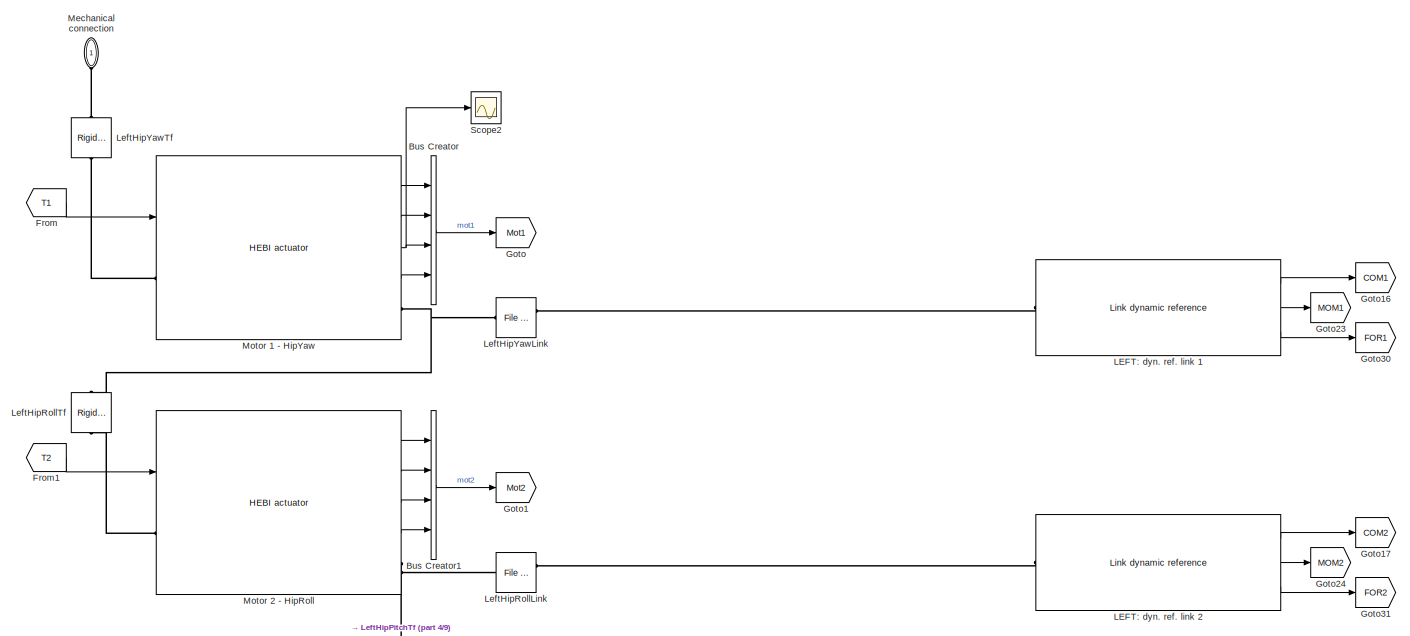
[diagram: Left Leg - part 1/9, top center region]
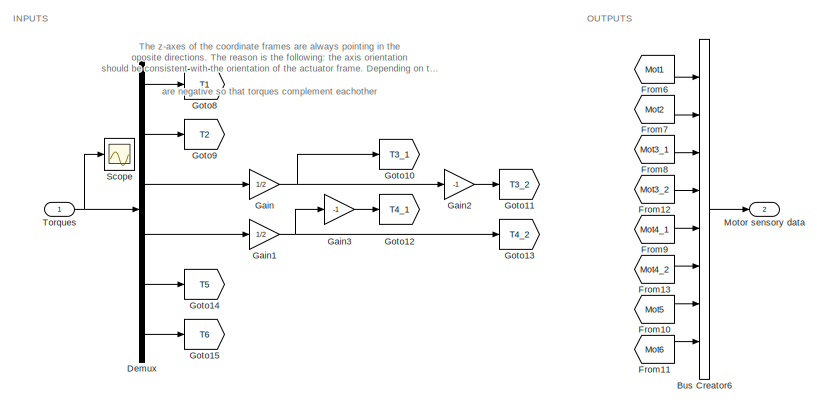
[diagram: Left Leg - part 2/9, top left region]
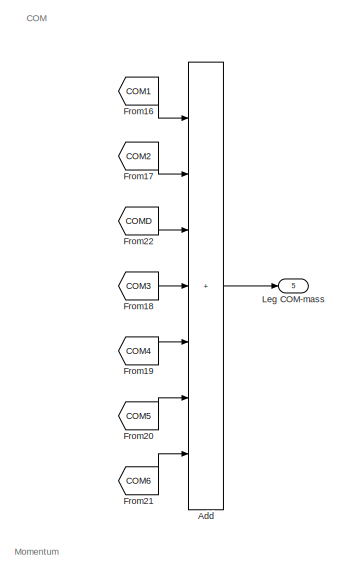
[diagram: Left Leg - part 3/9, middle right region]
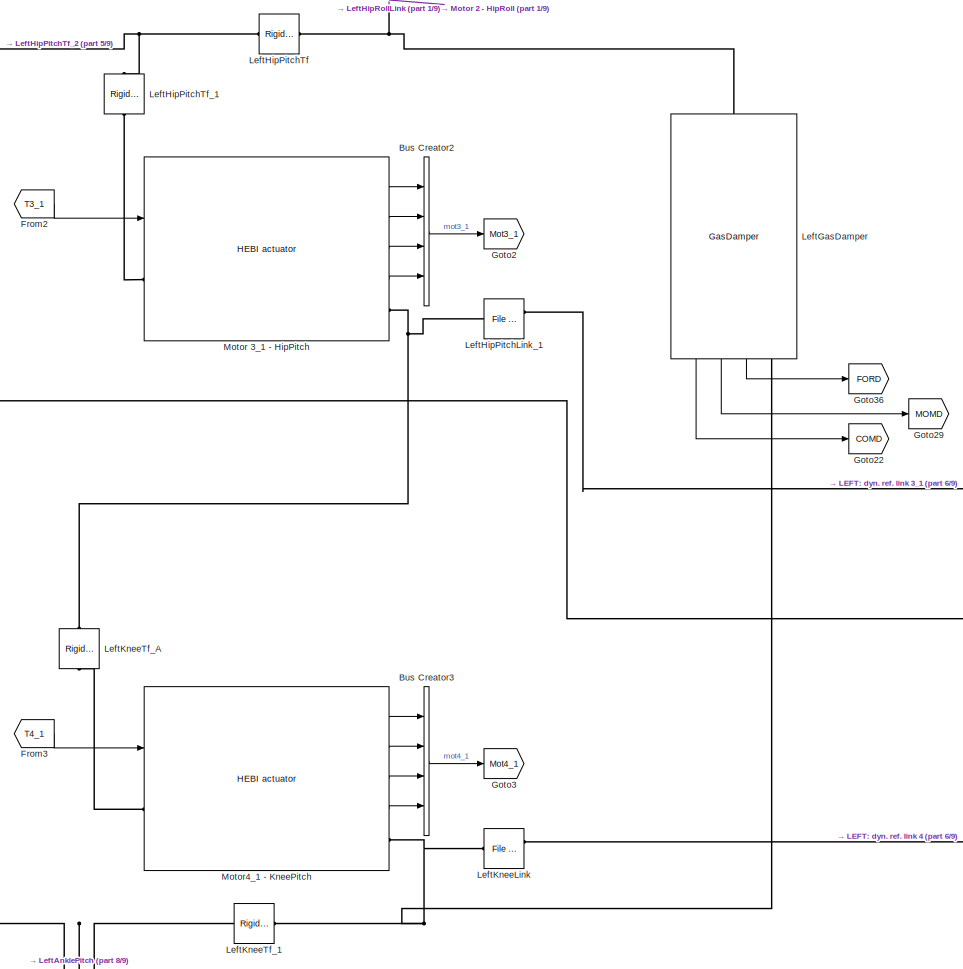
[diagram: Left Leg - part 4/9, central region]
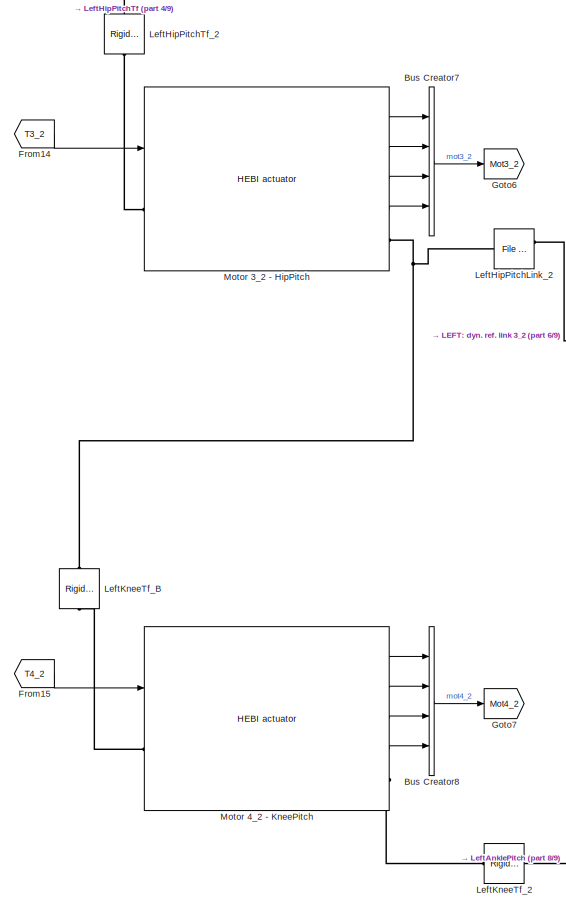
[diagram: Left Leg - part 5/9, central region]
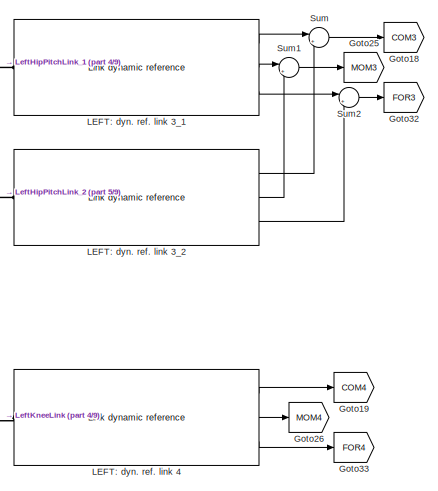
[diagram: Left Leg - part 6/9, middle right region]
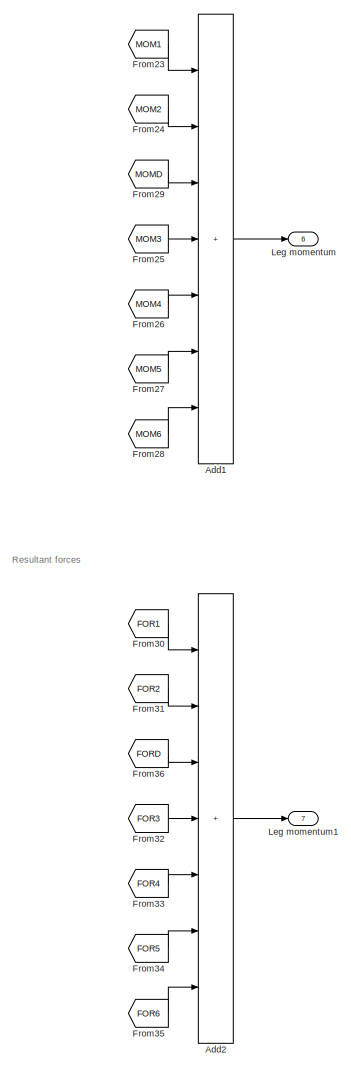
[diagram: Left Leg - part 7/9, middle right region]
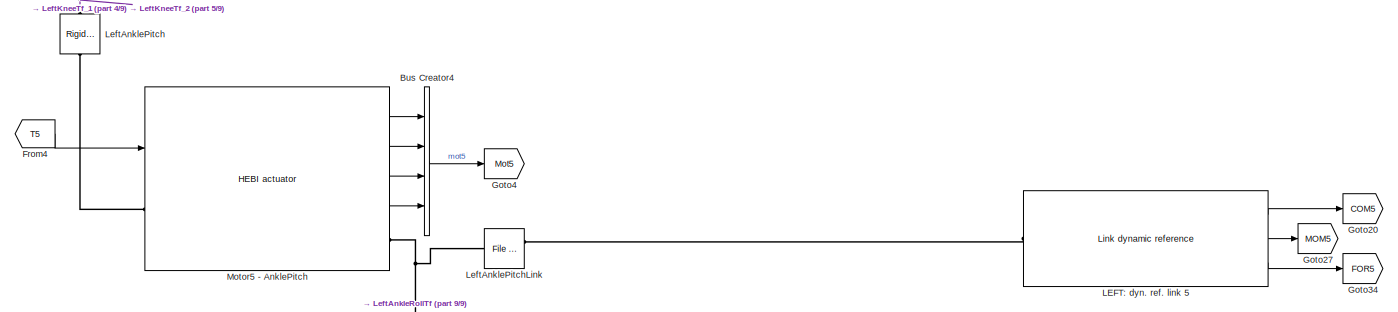
[diagram: Left Leg - part 8/9, bottom center region]
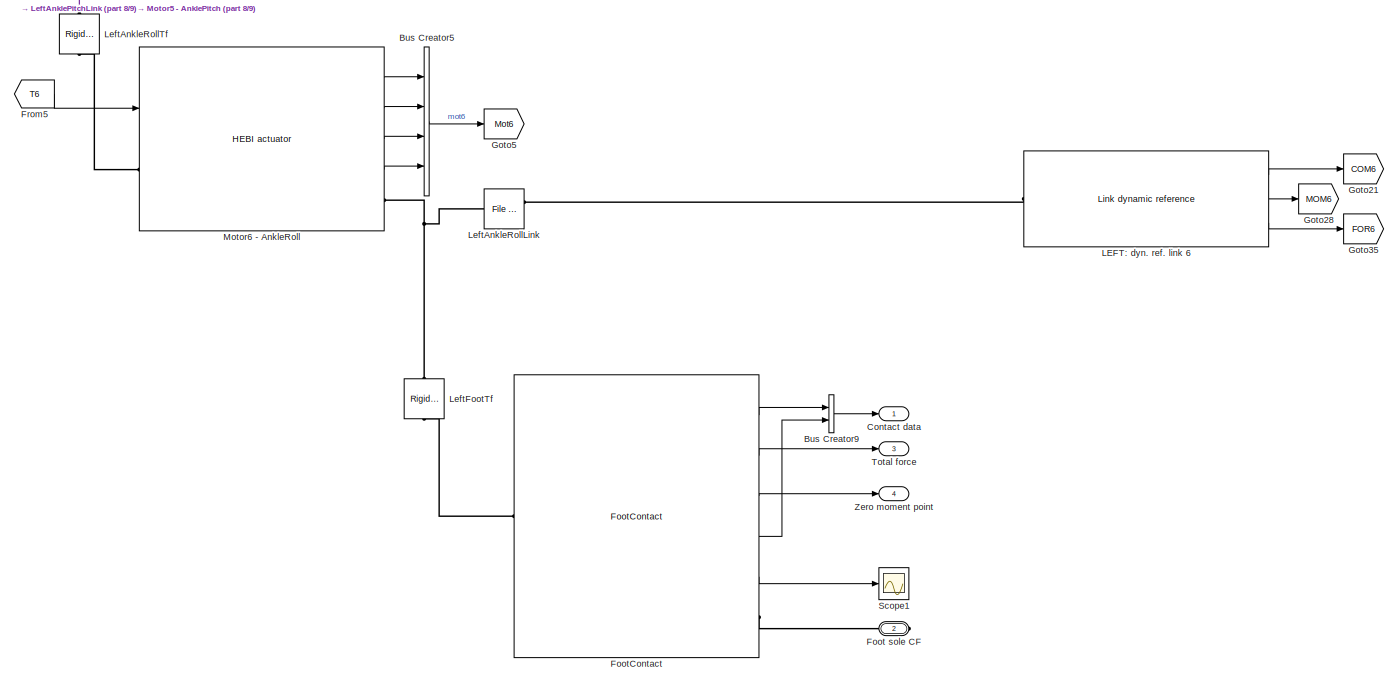
[diagram: Left Leg - part 9/9, bottom center region]
BLOCK [SubSystem] Left Leg
  NameLocation = top
  Ports = [1, 7, 0, 0, 0, 1, 1]
  RequestExecContextInheritance = off
BLOCK [Sum] Left Leg/Add
  IconShape = rectangular
  Inputs = 7
  Ports = [7, 1]
BLOCK [Sum] Left Leg/Add1
  IconShape = rectangular
  Inputs = 7
  Ports = [7, 1]
BLOCK [Sum] Left Leg/Add2
  IconShape = rectangular
  Inputs = 7
  Ports = [7, 1]
BLOCK [BusCreator] Left Leg/Bus Creator
  DisplayOption = bar
  InheritFromInputs = on
  Inputs = 4
  Ports = [4, 1]
BLOCK [BusCreator] Left Leg/Bus Creator1
  DisplayOption = bar
  InheritFromInputs = on
  Inputs = 4
  Ports = [4, 1]
BLOCK [BusCreator] Left Leg/Bus Creator2
  DisplayOption = bar
  InheritFromInputs = on
  Inputs = 4
  Ports = [4, 1]
BLOCK [BusCreator] Left Leg/Bus Creator3
  DisplayOption = bar
  InheritFromInputs = on
  Inputs = 4
  Ports = [4, 1]
BLOCK [BusCreator] Left Leg/Bus Creator4
  DisplayOption = bar
  InheritFromInputs = on
  Inputs = 4
  Ports = [4, 1]
BLOCK [BusCreator] Left Leg/Bus Creator5
  DisplayOption = bar
  InheritFromInputs = on
  Inputs = 4
  Ports = [4, 1]
BLOCK [BusCreator] Left Leg/Bus Creator6
  DisplayOption = bar
  InheritFromInputs = on
  Inputs = 8
  OutDataTypeStr = Bus: leg_str_bus
  Ports = [8, 1]
BLOCK [BusCreator] Left Leg/Bus Creator7
  DisplayOption = bar
  InheritFromInputs = on
  Inputs = 4
  Ports = [4, 1]
BLOCK [BusCreator] Left Leg/Bus Creator8
  DisplayOption = bar
  InheritFromInputs = on
  Inputs = 4
  Ports = [4, 1]
BLOCK [BusCreator] Left Leg/Bus Creator9
  DisplayOption = bar
  InheritFromInputs = on
  Inputs = 2
  Ports = [2, 1]
BLOCK [Outport] Left Leg/Contact data
  NameLocation = top
BLOCK [Demux] Left Leg/Demux
  Outputs = 6
  Ports = [1, 6]
BLOCK [PMIOPort] Left Leg/Foot sole CF
  Port = 2
  Side = Right
BLOCK [Reference] Left Leg/FootContact  REF=biped_lib/FootContact  (lib defined in slx_0986bfd27444)
  Ports = [0, 5, 0, 0, 0, 1, 1]
  SourceBlock = biped_lib/FootContact
BLOCK [From] Left Leg/From
  GotoTag = T1
BLOCK [From] Left Leg/From1
  GotoTag = T2
BLOCK [From] Left Leg/From10
  GotoTag = Mot5
BLOCK [From] Left Leg/From11
  GotoTag = Mot6
BLOCK [From] Left Leg/From12
  GotoTag = Mot3_2
BLOCK [From] Left Leg/From13
  GotoTag = Mot4_2
BLOCK [From] Left Leg/From14
  GotoTag = T3_2
BLOCK [From] Left Leg/From15
  GotoTag = T4_2
BLOCK [From] Left Leg/From16
  GotoTag = COM1
BLOCK [From] Left Leg/From17
  GotoTag = COM2
BLOCK [From] Left Leg/From18
  GotoTag = COM3
BLOCK [From] Left Leg/From19
  GotoTag = COM4
BLOCK [From] Left Leg/From2
  GotoTag = T3_1
BLOCK [From] Left Leg/From20
  GotoTag = COM5
BLOCK [From] Left Leg/From21
  GotoTag = COM6
BLOCK [From] Left Leg/From22
  GotoTag = COMD
BLOCK [From] Left Leg/From23
  GotoTag = MOM1
BLOCK [From] Left Leg/From24
  GotoTag = MOM2
BLOCK [From] Left Leg/From25
  GotoTag = MOM3
BLOCK [From] Left Leg/From26
  GotoTag = MOM4
BLOCK [From] Left Leg/From27
  GotoTag = MOM5
BLOCK [From] Left Leg/From28
  GotoTag = MOM6
BLOCK [From] Left Leg/From29
  GotoTag = MOMD
BLOCK [From] Left Leg/From3
  GotoTag = T4_1
BLOCK [From] Left Leg/From30
  GotoTag = FOR1
BLOCK [From] Left Leg/From31
  GotoTag = FOR2
BLOCK [From] Left Leg/From32
  GotoTag = FOR3
BLOCK [From] Left Leg/From33
  GotoTag = FOR4
BLOCK [From] Left Leg/From34
  GotoTag = FOR5
BLOCK [From] Left Leg/From35
  GotoTag = FOR6
BLOCK [From] Left Leg/From36
  GotoTag = FORD
BLOCK [From] Left Leg/From4
  GotoTag = T5
BLOCK [From] Left Leg/From5
  GotoTag = T6
BLOCK [From] Left Leg/From6
  GotoTag = Mot1
BLOCK [From] Left Leg/From7
  GotoTag = Mot2
BLOCK [From] Left Leg/From8
  GotoTag = Mot3_1
BLOCK [From] Left Leg/From9
  GotoTag = Mot4_1
BLOCK [Gain] Left Leg/Gain
  Gain = 1/2
BLOCK [Gain] Left Leg/Gain1
  Gain = 1/2
BLOCK [Gain] Left Leg/Gain2
  Gain = -1
BLOCK [Gain] Left Leg/Gain3
  Gain = -1
BLOCK [Goto] Left Leg/Goto
  GotoTag = Mot1
BLOCK [Goto] Left Leg/Goto1
  GotoTag = Mot2
BLOCK [Goto] Left Leg/Goto10
  GotoTag = T3_1
BLOCK [Goto] Left Leg/Goto11
  GotoTag = T3_2
BLOCK [Goto] Left Leg/Goto12
  GotoTag = T4_1
BLOCK [Goto] Left Leg/Goto13
  GotoTag = T4_2
BLOCK [Goto] Left Leg/Goto14
  GotoTag = T5
BLOCK [Goto] Left Leg/Goto15
  GotoTag = T6
BLOCK [Goto] Left Leg/Goto16
  GotoTag = COM1
BLOCK [Goto] Left Leg/Goto17
  GotoTag = COM2
BLOCK [Goto] Left Leg/Goto18
  GotoTag = COM3
BLOCK [Goto] Left Leg/Goto19
  GotoTag = COM4
BLOCK [Goto] Left Leg/Goto2
  GotoTag = Mot3_1
BLOCK [Goto] Left Leg/Goto20
  GotoTag = COM5
BLOCK [Goto] Left Leg/Goto21
  GotoTag = COM6
BLOCK [Goto] Left Leg/Goto22
  GotoTag = COMD
BLOCK [Goto] Left Leg/Goto23
  GotoTag = MOM1
BLOCK [Goto] Left Leg/Goto24
  GotoTag = MOM2
BLOCK [Goto] Left Leg/Goto25
  GotoTag = MOM3
BLOCK [Goto] Left Leg/Goto26
  GotoTag = MOM4
BLOCK [Goto] Left Leg/Goto27
  GotoTag = MOM5
BLOCK [Goto] Left Leg/Goto28
  GotoTag = MOM6
BLOCK [Goto] Left Leg/Goto29
  GotoTag = MOMD
BLOCK [Goto] Left Leg/Goto3
  GotoTag = Mot4_1
BLOCK [Goto] Left Leg/Goto30
  GotoTag = FOR1
BLOCK [Goto] Left Leg/Goto31
  GotoTag = FOR2
BLOCK [Goto] Left Leg/Goto32
  GotoTag = FOR3
BLOCK [Goto] Left Leg/Goto33
  GotoTag = FOR4
BLOCK [Goto] Left Leg/Goto34
  GotoTag = FOR5
BLOCK [Goto] Left Leg/Goto35
  GotoTag = FOR6
BLOCK [Goto] Left Leg/Goto36
  GotoTag = FORD
BLOCK [Goto] Left Leg/Goto4
  GotoTag = Mot5
BLOCK [Goto] Left Leg/Goto5
  GotoTag = Mot6
BLOCK [Goto] Left Leg/Goto6
  GotoTag = Mot3_2
BLOCK [Goto] Left Leg/Goto7
  GotoTag = Mot4_2
BLOCK [Goto] Left Leg/Goto8
  GotoTag = T1
BLOCK [Goto] Left Leg/Goto9
  GotoTag = T2
BLOCK [Reference] Left Leg/LEFT: dyn. ref. link 1  REF=biped_lib/Link dynamic reference  (lib defined in slx_0986bfd27444)
  Ports = [0, 3, 0, 0, 0, 1]
  SourceBlock = biped_lib/Link dynamic reference
BLOCK [Reference] Left Leg/LEFT: dyn. ref. link 2  REF=biped_lib/Link dynamic reference  (lib defined in slx_0986bfd27444)
  Ports = [0, 3, 0, 0, 0, 1]
  SourceBlock = biped_lib/Link dynamic reference
BLOCK [Reference] Left Leg/LEFT: dyn. ref. link 3_1  REF=biped_lib/Link dynamic reference  (lib defined in slx_0986bfd27444)
  Ports = [0, 3, 0, 0, 0, 1]
  SourceBlock = biped_lib/Link dynamic reference
BLOCK [Reference] Left Leg/LEFT: dyn. ref. link 3_2  REF=biped_lib/Link dynamic reference  (lib defined in slx_0986bfd27444)
  Ports = [0, 3, 0, 0, 0, 1]
  SourceBlock = biped_lib/Link dynamic reference
BLOCK [Reference] Left Leg/LEFT: dyn. ref. link 4  REF=biped_lib/Link dynamic reference  (lib defined in slx_0986bfd27444)
  Ports = [0, 3, 0, 0, 0, 1]
  SourceBlock = biped_lib/Link dynamic reference
BLOCK [Reference] Left Leg/LEFT: dyn. ref. link 5  REF=biped_lib/Link dynamic reference  (lib defined in slx_0986bfd27444)
  Ports = [0, 3, 0, 0, 0, 1]
  SourceBlock = biped_lib/Link dynamic reference
BLOCK [Reference] Left Leg/LEFT: dyn. ref. link 6  REF=biped_lib/Link dynamic reference  (lib defined in slx_0986bfd27444)
  Ports = [0, 3, 0, 0, 0, 1]
  SourceBlock = biped_lib/Link dynamic reference
BLOCK [Reference] Left Leg/LeftAnklePitch  REF=sm_lib/Frames and
Transforms/Rigid
Transform
  NameLocation = left
  Ports = [0, 0, 0, 0, 0, 1, 1]
  SourceBlock = sm_lib/Frames and\nTransforms/Rigid\nTransform
  SourceProductBaseCode = MS
  SourceType = Rigid\nTransform
BLOCK [Reference] Left Leg/LeftAnklePitchLink  REF=sm_lib/Body Elements/File Solid
  NameLocation = top
  Ports = [0, 0, 0, 0, 0, 2, 1]
  SourceBlock = sm_lib/Body Elements/File Solid
  SourceProductBaseCode = MS
  SourceType = File Solid
BLOCK [Reference] Left Leg/LeftAnkleRollLink  REF=sm_lib/Body Elements/File Solid
  NameLocation = top
  Ports = [0, 0, 0, 0, 0, 2, 1]
  SourceBlock = sm_lib/Body Elements/File Solid
  SourceProductBaseCode = MS
  SourceType = File Solid
BLOCK [Reference] Left Leg/LeftAnkleRollTf  REF=sm_lib/Frames and
Transforms/Rigid
Transform
  NameLocation = left
  Ports = [0, 0, 0, 0, 0, 1, 1]
  SourceBlock = sm_lib/Frames and\nTransforms/Rigid\nTransform
  SourceProductBaseCode = MS
  SourceType = Rigid\nTransform
BLOCK [Reference] Left Leg/LeftFootTf  REF=sm_lib/Frames and
Transforms/Rigid
Transform
  NameLocation = left
  Ports = [0, 0, 0, 0, 0, 1, 1]
  SourceBlock = sm_lib/Frames and\nTransforms/Rigid\nTransform
  SourceProductBaseCode = MS
  SourceType = Rigid\nTransform
BLOCK [Reference] Left Leg/LeftGasDamper  REF=biped_lib/GasDamper  (lib defined in slx_0986bfd27444)
  NameLocation = right
  Ports = [0, 3, 0, 0, 0, 1, 1]
  SourceBlock = biped_lib/GasDamper
BLOCK [Reference] Left Leg/LeftHipPitchLink_1  REF=sm_lib/Body Elements/File Solid
  NameLocation = top
  Ports = [0, 0, 0, 0, 0, 2, 1]
  SourceBlock = sm_lib/Body Elements/File Solid
  SourceProductBaseCode = MS
  SourceType = File Solid
BLOCK [Reference] Left Leg/LeftHipPitchLink_2  REF=sm_lib/Body Elements/File Solid
  NameLocation = top
  Ports = [0, 0, 0, 0, 0, 2, 1]
  SourceBlock = sm_lib/Body Elements/File Solid
  SourceProductBaseCode = MS
  SourceType = File Solid
BLOCK [Reference] Left Leg/LeftHipPitchTf  REF=sm_lib/Frames and
Transforms/Rigid
Transform
  NameLocation = top
  Ports = [0, 0, 0, 0, 0, 1, 1]
  SourceBlock = sm_lib/Frames and\nTransforms/Rigid\nTransform
  SourceProductBaseCode = MS
  SourceType = Rigid\nTransform
BLOCK [Reference] Left Leg/LeftHipPitchTf_1  REF=sm_lib/Frames and
Transforms/Rigid
Transform
  NameLocation = left
  Ports = [0, 0, 0, 0, 0, 1, 1]
  SourceBlock = sm_lib/Frames and\nTransforms/Rigid\nTransform
  SourceProductBaseCode = MS
  SourceType = Rigid\nTransform
BLOCK [Reference] Left Leg/LeftHipPitchTf_2  REF=sm_lib/Frames and
Transforms/Rigid
Transform
  NameLocation = left
  Ports = [0, 0, 0, 0, 0, 1, 1]
  SourceBlock = sm_lib/Frames and\nTransforms/Rigid\nTransform
  SourceProductBaseCode = MS
  SourceType = Rigid\nTransform
BLOCK [Reference] Left Leg/LeftHipRollLink  REF=sm_lib/Body Elements/File Solid
  NameLocation = top
  Ports = [0, 0, 0, 0, 0, 2, 1]
  SourceBlock = sm_lib/Body Elements/File Solid
  SourceProductBaseCode = MS
  SourceType = File Solid
BLOCK [Reference] Left Leg/LeftHipRollTf  REF=sm_lib/Frames and
Transforms/Rigid
Transform
  NameLocation = left
  Ports = [0, 0, 0, 0, 0, 1, 1]
  SourceBlock = sm_lib/Frames and\nTransforms/Rigid\nTransform
  SourceProductBaseCode = MS
  SourceType = Rigid\nTransform
BLOCK [Reference] Left Leg/LeftHipYawLink  REF=sm_lib/Body Elements/File Solid
  NameLocation = top
  Ports = [0, 0, 0, 0, 0, 2, 1]
  SourceBlock = sm_lib/Body Elements/File Solid
  SourceProductBaseCode = MS
  SourceType = File Solid
BLOCK [Reference] Left Leg/LeftHipYawTf  REF=sm_lib/Frames and
Transforms/Rigid
Transform
  NameLocation = left
  Ports = [0, 0, 0, 0, 0, 1, 1]
  SourceBlock = sm_lib/Frames and\nTransforms/Rigid\nTransform
  SourceProductBaseCode = MS
  SourceType = Rigid\nTransform
BLOCK [Reference] Left Leg/LeftKneeLink  REF=sm_lib/Body Elements/File Solid
  NameLocation = top
  Ports = [0, 0, 0, 0, 0, 2, 1]
  SourceBlock = sm_lib/Body Elements/File Solid
  SourceProductBaseCode = MS
  SourceType = File Solid
BLOCK [Reference] Left Leg/LeftKneeTf_1  REF=sm_lib/Frames and
Transforms/Rigid
Transform
  Ports = [0, 0, 0, 0, 0, 1, 1]
  SourceBlock = sm_lib/Frames and\nTransforms/Rigid\nTransform
  SourceProductBaseCode = MS
  SourceType = Rigid\nTransform
BLOCK [Reference] Left Leg/LeftKneeTf_2  REF=sm_lib/Frames and
Transforms/Rigid
Transform
  Ports = [0, 0, 0, 0, 0, 1, 1]
  SourceBlock = sm_lib/Frames and\nTransforms/Rigid\nTransform
  SourceProductBaseCode = MS
  SourceType = Rigid\nTransform
BLOCK [Reference] Left Leg/LeftKneeTf_A  REF=sm_lib/Frames and
Transforms/Rigid
Transform
  NameLocation = left
  Ports = [0, 0, 0, 0, 0, 1, 1]
  SourceBlock = sm_lib/Frames and\nTransforms/Rigid\nTransform
  SourceProductBaseCode = MS
  SourceType = Rigid\nTransform
BLOCK [Reference] Left Leg/LeftKneeTf_B  REF=sm_lib/Frames and
Transforms/Rigid
Transform
  NameLocation = left
  Ports = [0, 0, 0, 0, 0, 1, 1]
  SourceBlock = sm_lib/Frames and\nTransforms/Rigid\nTransform
  SourceProductBaseCode = MS
  SourceType = Rigid\nTransform
BLOCK [Outport] Left Leg/Leg COM-mass
  Port = 5
BLOCK [Outport] Left Leg/Leg momentum
  Port = 6
BLOCK [Outport] Left Leg/Leg momentum1
  Port = 7
BLOCK [PMIOPort] Left Leg/Mechanical connection
  NameLocation = right
  Side = Left
BLOCK [Reference] Left Leg/Motor 1 - HipYaw  REF=biped_lib/HEBI actuator  (lib defined in slx_0986bfd27444)
  Ports = [1, 4, 0, 0, 0, 1, 1]
  SourceBlock = biped_lib/HEBI actuator
BLOCK [Reference] Left Leg/Motor 2 - HipRoll  REF=biped_lib/HEBI actuator  (lib defined in slx_0986bfd27444)
  Ports = [1, 4, 0, 0, 0, 1, 1]
  SourceBlock = biped_lib/HEBI actuator
BLOCK [Reference] Left Leg/Motor 3_1 - HipPitch  REF=biped_lib/HEBI actuator  (lib defined in slx_0986bfd27444)
  Ports = [1, 4, 0, 0, 0, 1, 1]
  SourceBlock = biped_lib/HEBI actuator
BLOCK [Reference] Left Leg/Motor 3_2 - HipPitch  REF=biped_lib/HEBI actuator  (lib defined in slx_0986bfd27444)
  Ports = [1, 4, 0, 0, 0, 1, 1]
  SourceBlock = biped_lib/HEBI actuator
BLOCK [Reference] Left Leg/Motor 4_2 - KneePitch  REF=biped_lib/HEBI actuator  (lib defined in slx_0986bfd27444)
  Ports = [1, 4, 0, 0, 0, 1, 1]
  SourceBlock = biped_lib/HEBI actuator
BLOCK [Outport] Left Leg/Motor sensory data
  Port = 2
BLOCK [Reference] Left Leg/Motor4_1 - KneePitch  REF=biped_lib/HEBI actuator  (lib defined in slx_0986bfd27444)
  Ports = [1, 4, 0, 0, 0, 1, 1]
  SourceBlock = biped_lib/HEBI actuator
BLOCK [Reference] Left Leg/Motor5 - AnklePitch  REF=biped_lib/HEBI actuator  (lib defined in slx_0986bfd27444)
  Ports = [1, 4, 0, 0, 0, 1, 1]
  SourceBlock = biped_lib/HEBI actuator
BLOCK [Reference] Left Leg/Motor6 - AnkleRoll  REF=biped_lib/HEBI actuator  (lib defined in slx_0986bfd27444)
  Ports = [1, 4, 0, 0, 0, 1, 1]
  SourceBlock = biped_lib/HEBI actuator
BLOCK [Scope] Left Leg/Scope
  Floating = off
  NumInputPorts = 1
  Ports = [1]
  ScopeSpecificationString = Simulink.scopes.TimeScopeBlockCfg('CurrentConfiguration', extmgr.ConfigurationSet(extmgr.Configuration('Core','General UI',true),extmgr.Configuration('Core','Source UI',true),extmgr.Configuration('Sources','WiredSimulink',true,'DataLoggingVariableName','ScopeData2'),extmgr.Configuration('Visuals','Time Domain',true),extmgr.Configuration('Tools','Plot Navigation',true),extmgr.Configuration('Tools',...<+40ch>
BLOCK [Scope] Left Leg/Scope1
  Floating = off
  NumInputPorts = 1
  Ports = [1]
  ScopeSpecificationString = Simulink.scopes.TimeScopeBlockCfg('CurrentConfiguration', extmgr.ConfigurationSet(extmgr.Configuration('Core','General UI',true),extmgr.Configuration('Core','Source UI',true),extmgr.Configuration('Sources','WiredSimulink',true,'DataLoggingVariableName','ScopeData3'),extmgr.Configuration('Visuals','Time Domain',true,'SerializedDisplays',{struct('MinYLimReal','-11.78696','MaxYLimReal','153.43787','Y...<+1507ch>
BLOCK [Scope] Left Leg/Scope2
  Floating = off
  NumInputPorts = 1
  Ports = [1]
  ScopeSpecificationString = Simulink.scopes.TimeScopeBlockCfg('CurrentConfiguration', extmgr.ConfigurationSet(extmgr.Configuration('Core','General UI',true),extmgr.Configuration('Core','Source UI',true),extmgr.Configuration('Sources','WiredSimulink',true,'DataLoggingVariableName','ScopeData1'),extmgr.Configuration('Visuals','Time Domain',true,'SerializedDisplays',{struct('MinYLimReal','-3.27548','MaxYLimReal','7.59792','YLab...<+1476ch>
BLOCK [Sum] Left Leg/Sum
  Inputs = |++
  Ports = [2, 1]
BLOCK [Sum] Left Leg/Sum1
  Inputs = |++
  Ports = [2, 1]
BLOCK [Sum] Left Leg/Sum2
  Inputs = |++
  Ports = [2, 1]
BLOCK [Inport] Left Leg/Torques
BLOCK [Outport] Left Leg/Total force
  Port = 3
BLOCK [Outport] Left Leg/Zero moment point
  Port = 4
BLOCK [SubSystem] MATLAB Function
  ErrorFcn = Stateflow.Translate.translate
  PermitHierarchicalResolution = ExplicitOnly
  Ports = [4, 5]
  RequestExecContextInheritance = off
  SFBlockType = MATLAB Function
  SystemSampleTime = Ts
  TreatAsAtomicUnit = on
BLOCK [Demux] MATLAB Function/ Demux 
  Outputs = 1
  Ports = [1, 1]
BLOCK [S-Function] MATLAB Function/ SFunction 
  EnableBusSupport = on
  FunctionName = sf_sfun
  PortCounts = [4 6]
  Ports = [4, 6]
  SFcnIsStateOwnerBlock = off
  SFunctionDeploymentMode = off
  Tag = Stateflow S-Function 15
BLOCK [Terminator] MATLAB Function/ Terminator 
BLOCK [Outport] MATLAB Function/Hb_eeL
BLOCK [Outport] MATLAB Function/Hb_eeR
  Port = 2
BLOCK [Outport] MATLAB Function/Hw_b
  Port = 3
BLOCK [Inport] MATLAB Function/MSL
  Port = 3
BLOCK [Inport] MATLAB Function/MSR
  Port = 4
BLOCK [Inport] MATLAB Function/Rfb
  Port = 2
BLOCK [Outport] MATLAB Function/qL
  Port = 4
BLOCK [Outport] MATLAB Function/qR
  Port = 5
BLOCK [Inport] MATLAB Function/tfb
BLOCK [Reference] Marker  REF=biped_lib/Marker  (lib defined in slx_0986bfd27444)
  Ports = [1, 0, 0, 0, 0, 1]
  SourceBlock = biped_lib/Marker
BLOCK [SubSystem] Model based ZMP
  Ports = [2, 2]
  RequestExecContextInheritance = off
BLOCK [Sum] Model based ZMP/Add
  IconShape = rectangular
  Inputs = ++-
  Ports = [3, 1]
BLOCK [Sum] Model based ZMP/Add1
  IconShape = rectangular
  Inputs = +++
  Ports = [3, 1]
BLOCK [Inport] Model based ZMP/Com
BLOCK [Constant] Model based ZMP/Constant
  Value = M*g
BLOCK [Demux] Model based ZMP/Demux
  Outputs = 3
  Ports = [1, 3]
BLOCK [Demux] Model based ZMP/Demux1
  Outputs = 3
  Ports = [1, 3]
BLOCK [Demux] Model based ZMP/Demux2
  Outputs = 3
  Ports = [1, 3]
BLOCK [Product] Model based ZMP/Divide
  Inputs = */
  Ports = [2, 1]
BLOCK [Product] Model based ZMP/Divide1
  Inputs = */
  Ports = [2, 1]
BLOCK [Product] Model based ZMP/Product
  Ports = [2, 1]
BLOCK [Product] Model based ZMP/Product1
  Ports = [2, 1]
BLOCK [Product] Model based ZMP/Product2
  Ports = [2, 1]
BLOCK [Product] Model based ZMP/Product3
  Ports = [2, 1]
BLOCK [Selector] Model based ZMP/Selector1
  IndexOptions = Index vector (dialog)
  Indices = [4:6]
  InputPortWidth = 6
  OutputSizes = 1
  Ports = [1, 1]
BLOCK [Selector] Model based ZMP/Selector2
  IndexOptions = Index vector (dialog)
  Indices = [1:3]
  InputPortWidth = 6
  OutputSizes = 1
  Ports = [1, 1]
BLOCK [Sum] Model based ZMP/Sum
  Inputs = |++
  Ports = [2, 1]
BLOCK [Terminator] Model based ZMP/Terminator
BLOCK [Terminator] Model based ZMP/Terminator1
BLOCK [TransferFcn] Model based ZMP/Transfer Fcn
  Commented = through
  Denominator = [Tfil 1]
BLOCK [TransferFcn] Model based ZMP/Transfer Fcn1
  Commented = through
  Denominator = [Tfil 1]
BLOCK [Outport] Model based ZMP/Zx
BLOCK [Outport] Model based ZMP/Zy
  Port = 2
BLOCK [Constant] Model based ZMP/Zz
  Value = 0
BLOCK [Inport] Model based ZMP/dMom//dt
  Port = 2
BLOCK [Mux] Mux1
  DisplayOption = bar
  Inputs = 2
  Ports = [2, 1]
BLOCK [Mux] Mux2
  DisplayOption = bar
  Inputs = 2
  Ports = [2, 1]
BLOCK [SubSystem] Net ZMP computation
  Ports = [4, 1, 0, 0, 0, 1]
  RequestExecContextInheritance = off
BLOCK [Sum] Net ZMP computation/Add
  IconShape = rectangular
  Ports = [2, 1]
BLOCK [Reference] Net ZMP computation/Compare To Constant  REF=simulink/Logic and Bit
Operations/Compare
To Constant
  Ports = [1, 1]
  SourceBlock = simulink/Logic and Bit\nOperations/Compare\nTo Constant
  SourceProductBaseCode = SL
  SourceType = Compare To Constant
BLOCK [Constant] Net ZMP computation/Constant
BLOCK [Delay] Net ZMP computation/Delay
  DelayLength = 1
  InitialCondition = 0
  InputPortMap = u0
  Ports = [1, 1]
  SampleTime = Ts/10
BLOCK [Demux] Net ZMP computation/Demux
  Outputs = 2
  Ports = [1, 2]
BLOCK [Demux] Net ZMP computation/Demux1
  Outputs = 2
  Ports = [1, 2]
BLOCK [Product] Net ZMP computation/Divide
  Inputs = */
  Ports = [2, 1]
BLOCK [Inport] Net ZMP computation/Ftot left
  NameLocation = top
  Port = 4
BLOCK [Inport] Net ZMP computation/Ftot right
  Port = 2
BLOCK [Reference] Net ZMP computation/Inertia  REF=sm_lib/Body Elements/Inertia
  NameLocation = top
  Ports = [0, 0, 0, 0, 0, 0, 1]
  SourceBlock = sm_lib/Body Elements/Inertia
  SourceProductBaseCode = MS
  SourceType = Inertia
BLOCK [MultiPortSwitch] Net ZMP computation/Multiport Switch
  InputSameDT = off
  Ports = [4, 1]
  SaturateOnIntegerOverflow = off
BLOCK [Mux] Net ZMP computation/Mux
  DisplayOption = bar
  Inputs = 2
  Ports = [2, 1]
BLOCK [Product] Net ZMP computation/Product
  Ports = [2, 1]
BLOCK [Product] Net ZMP computation/Product1
  Ports = [2, 1]
BLOCK [Scope] Net ZMP computation/Scope
  Floating = off
  NumInputPorts = 2
  Ports = [2]
  ScopeSpecificationString = Simulink.scopes.TimeScopeBlockCfg('CurrentConfiguration', extmgr.ConfigurationSet(extmgr.Configuration('Core','General UI',true),extmgr.Configuration('Core','Source UI',true),extmgr.Configuration('Sources','WiredSimulink',true,'DataLoggingVariableName','ScopeData1'),extmgr.Configuration('Visuals','Time Domain',true,'SerializedDisplays',{struct('MinYLimReal','-0.13175','MaxYLimReal','0.15077','YLab...<+1611ch>
BLOCK [Scope] Net ZMP computation/Scope1
  Floating = off
  NumInputPorts = 3
  Ports = [3]
  ScopeSpecificationString = Simulink.scopes.TimeScopeBlockCfg('CurrentConfiguration', extmgr.ConfigurationSet(extmgr.Configuration('Core','General UI',true),extmgr.Configuration('Core','Source UI',true),extmgr.Configuration('Sources','WiredSimulink',true,'DataLoggingVariableName','ScopeData2'),extmgr.Configuration('Visuals','Time Domain',true),extmgr.Configuration('Tools','Plot Navigation',true),extmgr.Configuration('Tools',...<+88ch>
BLOCK [SignalSpecification] Net ZMP computation/Signal Specification
  Dimensions = 1
BLOCK [SignalSpecification] Net ZMP computation/Signal Specification1
  Dimensions = 1
BLOCK [Reference] Net ZMP computation/Simulink-PS Converter  REF=nesl_utility/Simulink-PS
Converter
  Ports = [1, 0, 0, 0, 0, 0, 1]
  SourceBlock = nesl_utility/Simulink-PS\nConverter
  SourceProductName = Utilities
  SourceType = Simulink-PS\nConverter
BLOCK [Reference] Net ZMP computation/Simulink-PS Converter1  REF=nesl_utility/Simulink-PS
Converter
  Ports = [1, 0, 0, 0, 0, 0, 1]
  SourceBlock = nesl_utility/Simulink-PS\nConverter
  SourceProductName = Utilities
  SourceType = Simulink-PS\nConverter
BLOCK [Sum] Net ZMP computation/Sum
  Inputs = |++
  Ports = [2, 1]
BLOCK [Switch] Net ZMP computation/Switch
  Criteria = u2 > Threshold
  InputSameDT = off
  SaturateOnIntegerOverflow = off
BLOCK [Outport] Net ZMP computation/Total ZMP
BLOCK [TransferFcn] Net ZMP computation/Transfer Fcn
  Denominator = [Tfil 1]
BLOCK [TransferFcn] Net ZMP computation/Transfer Fcn1
  Denominator = [Tfil 1]
BLOCK [Constant] Net ZMP computation/Which ZMP should be displayed?
  Value = 3
BLOCK [PMIOPort] Net ZMP computation/World CF
  NameLocation = top
  Side = Left
BLOCK [Reference] Net ZMP computation/ZMP joint  REF=sm_lib/Joints/Planar Joint
  Ports = [0, 0, 0, 0, 0, 3, 1]
  SourceBlock = sm_lib/Joints/Planar Joint
  SourceProductBaseCode = MS
  SourceType = Planar Joint
BLOCK [Inport] Net ZMP computation/ZMP left
  NameLocation = top
  Port = 3
BLOCK [Reference] Net ZMP computation/ZMP location  REF=sm_lib/Body Elements/Graphic
  Ports = [0, 0, 0, 0, 0, 0, 1]
  SourceBlock = sm_lib/Body Elements/Graphic
  SourceProductBaseCode = MS
  SourceType = Graphic
BLOCK [Inport] Net ZMP computation/ZMP right
BLOCK [Gain] Normalise COMpos-mass to get COM-position
  Gain = 1/total_mass
BLOCK [Gain] Normalise COMvelo-mass to get COM-velocity
  Gain = 1/total_mass
BLOCK [Gain] Normalise COMvelo-mass to get COM-velocity1
  Gain = 1/total_mass
BLOCK [Reference] PS-Simulink Converter  REF=nesl_utility/PS-Simulink
Converter
  Commented = on
  Ports = [0, 1, 0, 0, 0, 1]
  SourceBlock = nesl_utility/PS-Simulink\nConverter
  SourceProductName = Utilities
  SourceType = PS-Simulink\nConverter
BLOCK [SubSystem] Plots
  Ports = [9]
  RequestExecContextInheritance = off
BLOCK [Inport] Plots/COM_des
  Port = 2
BLOCK [Inport] Plots/COM_true
BLOCK [Inport] Plots/DCM_des
  Port = 9
BLOCK [Inport] Plots/DCM_true
  Port = 8
BLOCK [Demux] Plots/Demux
  Outputs = 3
  Ports = [1, 3]
BLOCK [Demux] Plots/Demux1
  Outputs = 2
  Ports = [1, 2]
BLOCK [Demux] Plots/Demux2
  Outputs = 2
  Ports = [1, 2]
BLOCK [Demux] Plots/Demux3
  Outputs = 2
  Ports = [1, 2]
BLOCK [Demux] Plots/Demux4
  Outputs = 2
  Ports = [1, 2]
BLOCK [Demux] Plots/Demux5
  Outputs = 2
  Ports = [1, 2]
BLOCK [Demux] Plots/Demux6
  Outputs = 2
  Ports = [1, 2]
BLOCK [Demux] Plots/Demux7
  Outputs = 2
  Ports = [1, 2]
BLOCK [Demux] Plots/Demux8
  Outputs = 2
  Ports = [1, 2]
BLOCK [Mux] Plots/Mux1
  DisplayOption = bar
  Inputs = 9
  Ports = [9, 1]
BLOCK [Mux] Plots/Mux2
  DisplayOption = bar
  Inputs = 9
  Ports = [9, 1]
BLOCK [Scope] Plots/Scope
  Floating = off
  NumInputPorts = 1
  Ports = [1]
  ScopeSpecificationString = Simulink.scopes.TimeScopeBlockCfg('CurrentConfiguration', extmgr.ConfigurationSet(extmgr.Configuration('Core','General UI',true),extmgr.Configuration('Core','Source UI',true),extmgr.Configuration('Sources','WiredSimulink',true,'DataLoggingVariableName','ScopeData1'),extmgr.Configuration('Visuals','Time Domain',true,'SerializedDisplays',{struct('MinYLimReal','-0.05019','MaxYLimReal','0.05479','YLab...<+1739ch>
BLOCK [Scope] Plots/Scope1
  Floating = off
  NumInputPorts = 1
  Ports = [1]
  ScopeSpecificationString = Simulink.scopes.TimeScopeBlockCfg('CurrentConfiguration', extmgr.ConfigurationSet(extmgr.Configuration('Core','General UI',true),extmgr.Configuration('Core','Source UI',true),extmgr.Configuration('Sources','WiredSimulink',true,'DataLoggingVariableName','ScopeData2'),extmgr.Configuration('Visuals','Time Domain',true,'SerializedDisplays',{struct('MinYLimReal','-0.14477','MaxYLimReal','0.20037','YLab...<+1740ch>
BLOCK [Terminator] Plots/Terminator
BLOCK [Inport] Plots/ZMP_des
  Port = 5
BLOCK [Inport] Plots/ZMP_qp
  Port = 7
BLOCK [Inport] Plots/ZMP_ref
  Port = 6
BLOCK [Inport] Plots/ZMP_true_FS
  Port = 4
BLOCK [Inport] Plots/ZMP_true_MB
  Port = 3
BLOCK [Product] Product
  Ports = [2, 1]
BLOCK [Product] Product1
  Ports = [2, 1]
BLOCK [Scope] RLeg Torques
  Floating = off
  NumInputPorts = 1
  Ports = [1]
  ScopeSpecificationString = Simulink.scopes.TimeScopeBlockCfg('CurrentConfiguration', extmgr.ConfigurationSet(extmgr.Configuration('Core','General UI',true),extmgr.Configuration('Core','Source UI',true),extmgr.Configuration('Sources','WiredSimulink',true,'DataLoggingVariableName','ScopeData2'),extmgr.Configuration('Visuals','Time Domain',true,'SerializedDisplays',{struct('MinYLimReal','-53.73168','MaxYLimReal','65.14441','YL...<+1616ch>
BLOCK [Scope] Reference COM-acceleration
  Floating = off
  NumInputPorts = 1
  Ports = [1]
  ScopeSpecificationString = Simulink.scopes.TimeScopeBlockCfg('CurrentConfiguration', extmgr.ConfigurationSet(extmgr.Configuration('Core','General UI',true),extmgr.Configuration('Core','Source UI',true),extmgr.Configuration('Sources','WiredSimulink',true,'DataLoggingVariableName','ScopeData1'),extmgr.Configuration('Visuals','Time Domain',true,'SerializedDisplays',{struct('MinYLimReal','-8019.79501','MaxYLimReal','9571.95403'...<+1591ch>
BLOCK [Scope] Reference COM-position
  Floating = off
  NumInputPorts = 1
  Ports = [1]
  ScopeSpecificationString = Simulink.scopes.TimeScopeBlockCfg('CurrentConfiguration', extmgr.ConfigurationSet(extmgr.Configuration('Core','General UI',true),extmgr.Configuration('Core','Source UI',true),extmgr.Configuration('Sources','WiredSimulink',true,'DataLoggingVariableName','ScopeData1'),extmgr.Configuration('Visuals','Time Domain',true,'SerializedDisplays',{struct('MinYLimReal','-0.077','MaxYLimReal','0.86413','YLabel...<+1581ch>
BLOCK [Scope] Reference COM-velocity
  Floating = off
  NumInputPorts = 1
  Ports = [1]
  ScopeSpecificationString = Simulink.scopes.TimeScopeBlockCfg('CurrentConfiguration', extmgr.ConfigurationSet(extmgr.Configuration('Core','General UI',true),extmgr.Configuration('Core','Source UI',true),extmgr.Configuration('Sources','WiredSimulink',true,'DataLoggingVariableName','ScopeData4'),extmgr.Configuration('Visuals','Time Domain',true,'SerializedDisplays',{struct('MinYLimReal','-0.1405','MaxYLimReal','0.14296','YLabe...<+1545ch>
BLOCK [Scope] Reference momentum around COM
  Floating = off
  NumInputPorts = 1
  Ports = [1]
  ScopeSpecificationString = Simulink.scopes.TimeScopeBlockCfg('CurrentConfiguration', extmgr.ConfigurationSet(extmgr.Configuration('Core','General UI',true),extmgr.Configuration('Core','Source UI',true),extmgr.Configuration('Sources','WiredSimulink',true,'DataLoggingVariableName','ScopeData2'),extmgr.Configuration('Visuals','Time Domain',true,'SerializedDisplays',{struct('MinYLimReal','-0.18918','MaxYLimReal','0.16182','YLab...<+1618ch>
BLOCK [Scope] Resultant wrench around COM
  Floating = off
  NumInputPorts = 2
  Ports = [2]
  ScopeSpecificationString = Simulink.scopes.TimeScopeBlockCfg('CurrentConfiguration', extmgr.ConfigurationSet(extmgr.Configuration('Core','General UI',true),extmgr.Configuration('Core','Source UI',true),extmgr.Configuration('Sources','WiredSimulink',true,'DataLoggingVariableName','ScopeData3'),extmgr.Configuration('Visuals','Time Domain',true,'SerializedDisplays',{struct('MinYLimReal','-42422.53026','MaxYLimReal','73476.5348...<+1876ch>
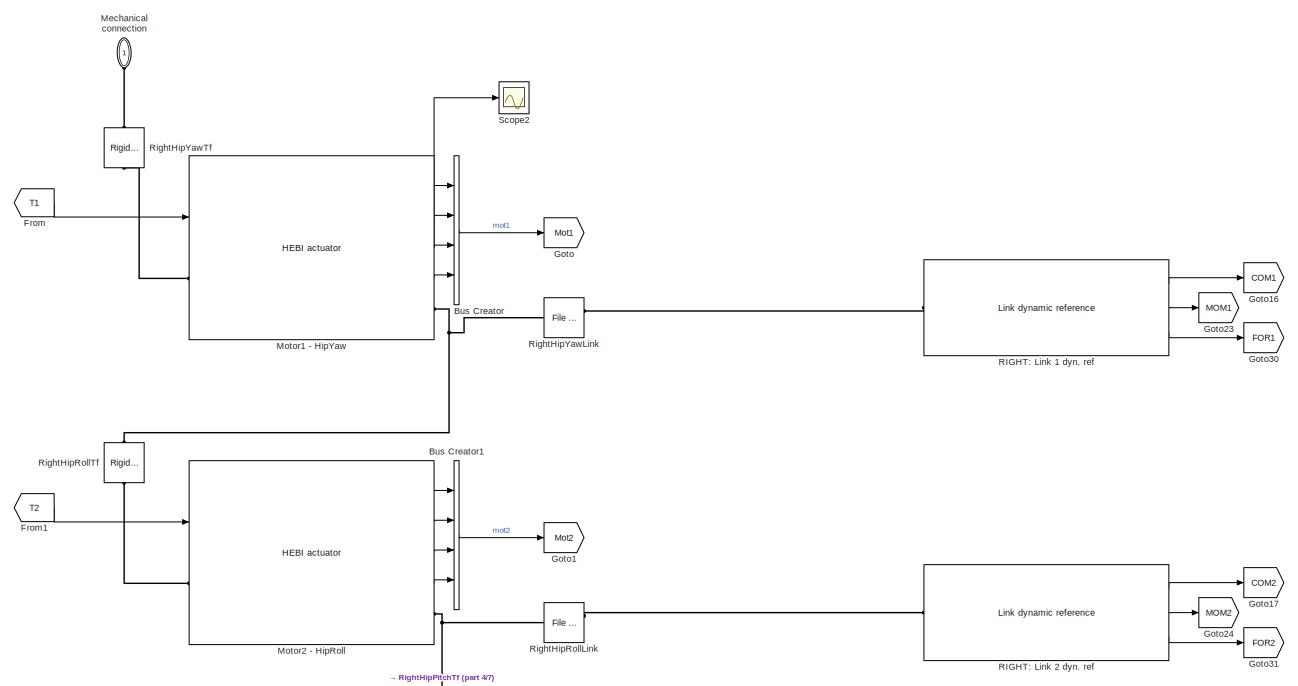
[diagram: Right leg - part 1/7, top right region]
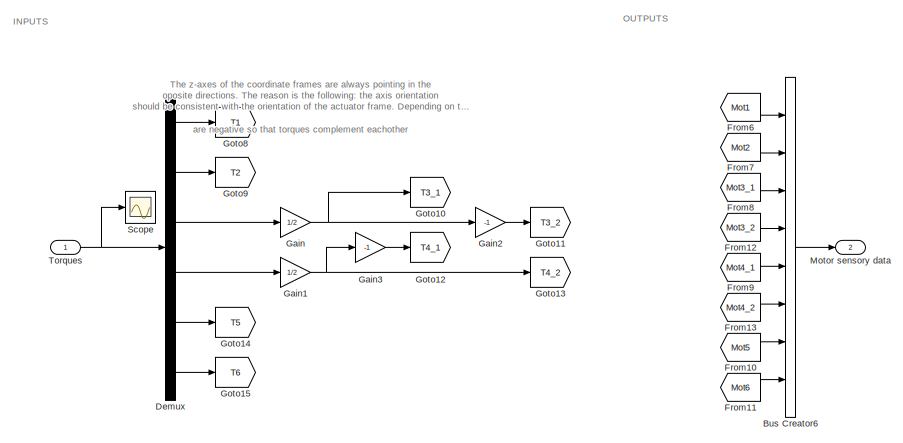
[diagram: Right leg - part 2/7, top left region]
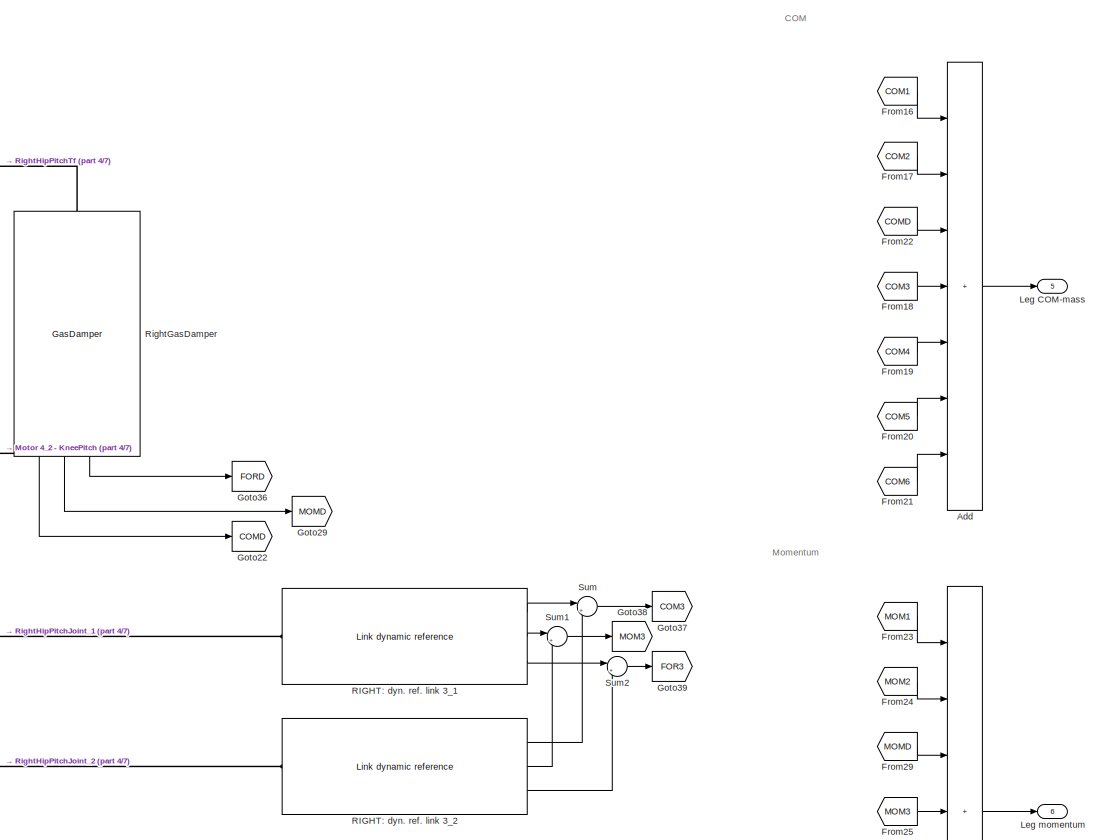
[diagram: Right leg - part 3/7, middle right region]
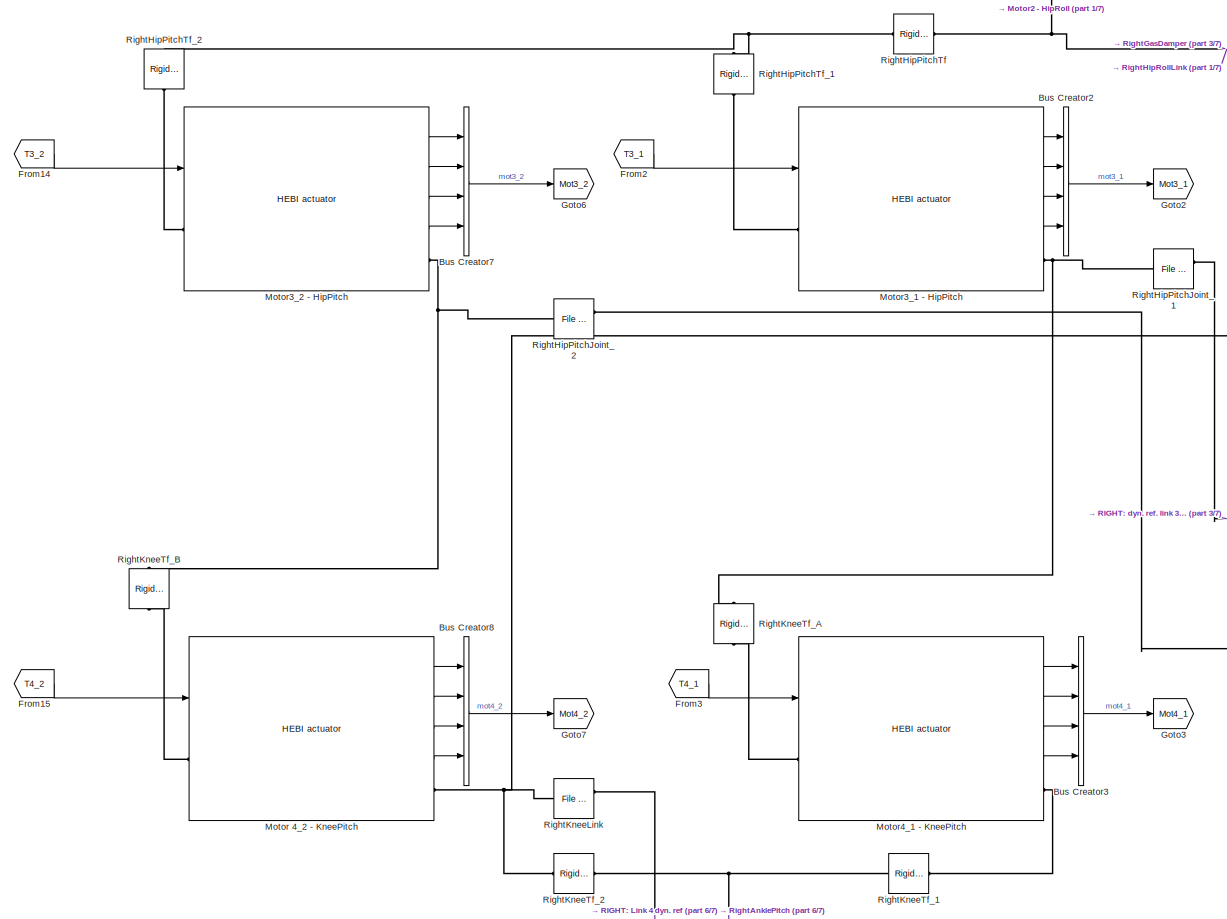
[diagram: Right leg - part 4/7, central region]
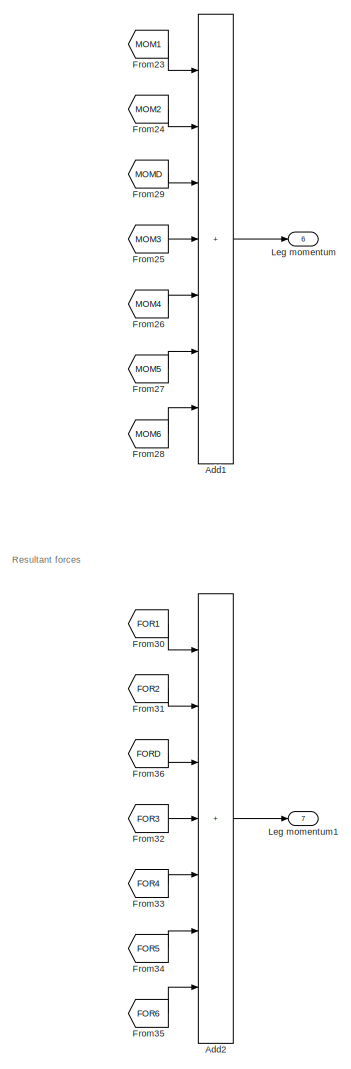
[diagram: Right leg - part 5/7, middle right region]
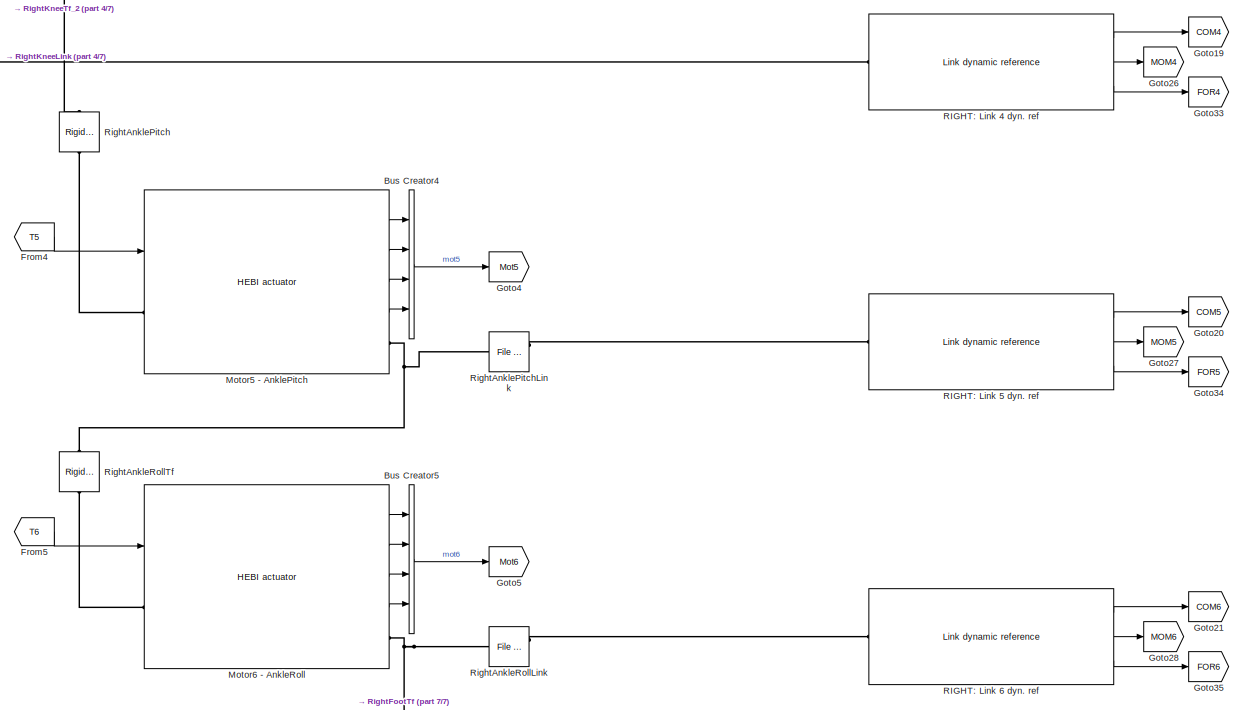
[diagram: Right leg - part 6/7, bottom right region]
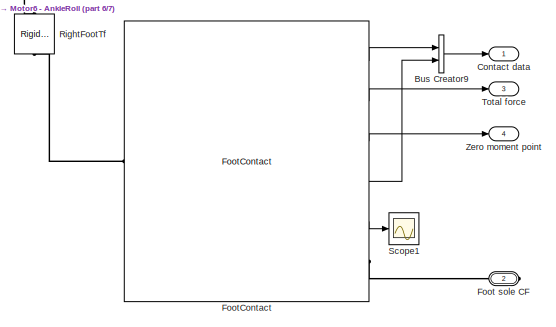
[diagram: Right leg - part 7/7, bottom right region]
BLOCK [SubSystem] Right leg
  NameLocation = top
  Ports = [1, 7, 0, 0, 0, 1, 1]
  RequestExecContextInheritance = off
BLOCK [Sum] Right leg/Add
  IconShape = rectangular
  Inputs = 7
  Ports = [7, 1]
BLOCK [Sum] Right leg/Add1
  IconShape = rectangular
  Inputs = 7
  Ports = [7, 1]
BLOCK [Sum] Right leg/Add2
  IconShape = rectangular
  Inputs = 7
  Ports = [7, 1]
BLOCK [BusCreator] Right leg/Bus Creator
  DisplayOption = bar
  InheritFromInputs = on
  Inputs = 4
  Ports = [4, 1]
BLOCK [BusCreator] Right leg/Bus Creator1
  DisplayOption = bar
  InheritFromInputs = on
  Inputs = 4
  Ports = [4, 1]
BLOCK [BusCreator] Right leg/Bus Creator2
  DisplayOption = bar
  InheritFromInputs = on
  Inputs = 4
  Ports = [4, 1]
BLOCK [BusCreator] Right leg/Bus Creator3
  DisplayOption = bar
  InheritFromInputs = on
  Inputs = 4
  Ports = [4, 1]
BLOCK [BusCreator] Right leg/Bus Creator4
  DisplayOption = bar
  InheritFromInputs = on
  Inputs = 4
  Ports = [4, 1]
BLOCK [BusCreator] Right leg/Bus Creator5
  DisplayOption = bar
  InheritFromInputs = on
  Inputs = 4
  Ports = [4, 1]
BLOCK [BusCreator] Right leg/Bus Creator6
  DisplayOption = bar
  InheritFromInputs = on
  Inputs = 8
  OutDataTypeStr = Bus: leg_str_bus
  Ports = [8, 1]
BLOCK [BusCreator] Right leg/Bus Creator7
  DisplayOption = bar
  InheritFromInputs = on
  Inputs = 4
  Ports = [4, 1]
BLOCK [BusCreator] Right leg/Bus Creator8
  DisplayOption = bar
  InheritFromInputs = on
  Inputs = 4
  Ports = [4, 1]
BLOCK [BusCreator] Right leg/Bus Creator9
  DisplayOption = bar
  InheritFromInputs = on
  Inputs = 2
  Ports = [2, 1]
BLOCK [Outport] Right leg/Contact data
BLOCK [Demux] Right leg/Demux
  Outputs = 6
  Ports = [1, 6]
BLOCK [PMIOPort] Right leg/Foot sole CF
  Port = 2
  Side = Right
BLOCK [Reference] Right leg/FootContact  REF=biped_lib/FootContact  (lib defined in slx_0986bfd27444)
  Ports = [0, 5, 0, 0, 0, 1, 1]
  SourceBlock = biped_lib/FootContact
BLOCK [From] Right leg/From
  GotoTag = T1
BLOCK [From] Right leg/From1
  GotoTag = T2
BLOCK [From] Right leg/From10
  GotoTag = Mot5
BLOCK [From] Right leg/From11
  GotoTag = Mot6
BLOCK [From] Right leg/From12
  GotoTag = Mot3_2
BLOCK [From] Right leg/From13
  GotoTag = Mot4_2
BLOCK [From] Right leg/From14
  GotoTag = T3_2
BLOCK [From] Right leg/From15
  GotoTag = T4_2
BLOCK [From] Right leg/From16
  GotoTag = COM1
BLOCK [From] Right leg/From17
  GotoTag = COM2
BLOCK [From] Right leg/From18
  GotoTag = COM3
BLOCK [From] Right leg/From19
  GotoTag = COM4
BLOCK [From] Right leg/From2
  GotoTag = T3_1
BLOCK [From] Right leg/From20
  GotoTag = COM5
BLOCK [From] Right leg/From21
  GotoTag = COM6
BLOCK [From] Right leg/From22
  GotoTag = COMD
BLOCK [From] Right leg/From23
  GotoTag = MOM1
BLOCK [From] Right leg/From24
  GotoTag = MOM2
BLOCK [From] Right leg/From25
  GotoTag = MOM3
BLOCK [From] Right leg/From26
  GotoTag = MOM4
BLOCK [From] Right leg/From27
  GotoTag = MOM5
BLOCK [From] Right leg/From28
  GotoTag = MOM6
BLOCK [From] Right leg/From29
  GotoTag = MOMD
BLOCK [From] Right leg/From3
  GotoTag = T4_1
BLOCK [From] Right leg/From30
  GotoTag = FOR1
BLOCK [From] Right leg/From31
  GotoTag = FOR2
BLOCK [From] Right leg/From32
  GotoTag = FOR3
BLOCK [From] Right leg/From33
  GotoTag = FOR4
BLOCK [From] Right leg/From34
  GotoTag = FOR5
BLOCK [From] Right leg/From35
  GotoTag = FOR6
BLOCK [From] Right leg/From36
  GotoTag = FORD
BLOCK [From] Right leg/From4
  GotoTag = T5
BLOCK [From] Right leg/From5
  GotoTag = T6
BLOCK [From] Right leg/From6
  GotoTag = Mot1
BLOCK [From] Right leg/From7
  GotoTag = Mot2
BLOCK [From] Right leg/From8
  GotoTag = Mot3_1
BLOCK [From] Right leg/From9
  GotoTag = Mot4_1
BLOCK [Gain] Right leg/Gain
  Gain = 1/2
BLOCK [Gain] Right leg/Gain1
  Gain = 1/2
BLOCK [Gain] Right leg/Gain2
  Gain = -1
BLOCK [Gain] Right leg/Gain3
  Gain = -1
BLOCK [Goto] Right leg/Goto
  GotoTag = Mot1
BLOCK [Goto] Right leg/Goto1
  GotoTag = Mot2
BLOCK [Goto] Right leg/Goto10
  GotoTag = T3_1
BLOCK [Goto] Right leg/Goto11
  GotoTag = T3_2
BLOCK [Goto] Right leg/Goto12
  GotoTag = T4_1
BLOCK [Goto] Right leg/Goto13
  GotoTag = T4_2
BLOCK [Goto] Right leg/Goto14
  GotoTag = T5
BLOCK [Goto] Right leg/Goto15
  GotoTag = T6
BLOCK [Goto] Right leg/Goto16
  GotoTag = COM1
BLOCK [Goto] Right leg/Goto17
  GotoTag = COM2
BLOCK [Goto] Right leg/Goto19
  GotoTag = COM4
BLOCK [Goto] Right leg/Goto2
  GotoTag = Mot3_1
BLOCK [Goto] Right leg/Goto20
  GotoTag = COM5
BLOCK [Goto] Right leg/Goto21
  GotoTag = COM6
BLOCK [Goto] Right leg/Goto22
  GotoTag = COMD
BLOCK [Goto] Right leg/Goto23
  GotoTag = MOM1
BLOCK [Goto] Right leg/Goto24
  GotoTag = MOM2
BLOCK [Goto] Right leg/Goto26
  GotoTag = MOM4
BLOCK [Goto] Right leg/Goto27
  GotoTag = MOM5
BLOCK [Goto] Right leg/Goto28
  GotoTag = MOM6
BLOCK [Goto] Right leg/Goto29
  GotoTag = MOMD
BLOCK [Goto] Right leg/Goto3
  GotoTag = Mot4_1
BLOCK [Goto] Right leg/Goto30
  GotoTag = FOR1
BLOCK [Goto] Right leg/Goto31
  GotoTag = FOR2
BLOCK [Goto] Right leg/Goto33
  GotoTag = FOR4
BLOCK [Goto] Right leg/Goto34
  GotoTag = FOR5
BLOCK [Goto] Right leg/Goto35
  GotoTag = FOR6
BLOCK [Goto] Right leg/Goto36
  GotoTag = FORD
BLOCK [Goto] Right leg/Goto37
  GotoTag = COM3
BLOCK [Goto] Right leg/Goto38
  GotoTag = MOM3
BLOCK [Goto] Right leg/Goto39
  GotoTag = FOR3
BLOCK [Goto] Right leg/Goto4
  GotoTag = Mot5
BLOCK [Goto] Right leg/Goto5
  GotoTag = Mot6
BLOCK [Goto] Right leg/Goto6
  GotoTag = Mot3_2
BLOCK [Goto] Right leg/Goto7
  GotoTag = Mot4_2
BLOCK [Goto] Right leg/Goto8
  GotoTag = T1
BLOCK [Goto] Right leg/Goto9
  GotoTag = T2
BLOCK [Outport] Right leg/Leg COM-mass
  Port = 5
BLOCK [Outport] Right leg/Leg momentum
  Port = 6
BLOCK [Outport] Right leg/Leg momentum1
  Port = 7
BLOCK [PMIOPort] Right leg/Mechanical connection
  NameLocation = right
  Side = Left
BLOCK [Reference] Right leg/Motor 4_2 - KneePitch  REF=biped_lib/HEBI actuator  (lib defined in slx_0986bfd27444)
  Ports = [1, 4, 0, 0, 0, 1, 1]
  SourceBlock = biped_lib/HEBI actuator
BLOCK [Outport] Right leg/Motor sensory data
  Port = 2
BLOCK [Reference] Right leg/Motor1 - HipYaw  REF=biped_lib/HEBI actuator  (lib defined in slx_0986bfd27444)
  Ports = [1, 4, 0, 0, 0, 1, 1]
  SourceBlock = biped_lib/HEBI actuator
BLOCK [Reference] Right leg/Motor2 - HipRoll  REF=biped_lib/HEBI actuator  (lib defined in slx_0986bfd27444)
  Ports = [1, 4, 0, 0, 0, 1, 1]
  SourceBlock = biped_lib/HEBI actuator
BLOCK [Reference] Right leg/Motor3_1 - HipPitch  REF=biped_lib/HEBI actuator  (lib defined in slx_0986bfd27444)
  Ports = [1, 4, 0, 0, 0, 1, 1]
  SourceBlock = biped_lib/HEBI actuator
BLOCK [Reference] Right leg/Motor3_2 - HipPitch  REF=biped_lib/HEBI actuator  (lib defined in slx_0986bfd27444)
  Ports = [1, 4, 0, 0, 0, 1, 1]
  SourceBlock = biped_lib/HEBI actuator
BLOCK [Reference] Right leg/Motor4_1 - KneePitch  REF=biped_lib/HEBI actuator  (lib defined in slx_0986bfd27444)
  Ports = [1, 4, 0, 0, 0, 1, 1]
  SourceBlock = biped_lib/HEBI actuator
BLOCK [Reference] Right leg/Motor5 - AnklePitch  REF=biped_lib/HEBI actuator  (lib defined in slx_0986bfd27444)
  Ports = [1, 4, 0, 0, 0, 1, 1]
  SourceBlock = biped_lib/HEBI actuator
BLOCK [Reference] Right leg/Motor6 - AnkleRoll  REF=biped_lib/HEBI actuator  (lib defined in slx_0986bfd27444)
  Ports = [1, 4, 0, 0, 0, 1, 1]
  SourceBlock = biped_lib/HEBI actuator
BLOCK [Reference] Right leg/RIGHT: Link 1 dyn. ref  REF=biped_lib/Link dynamic reference  (lib defined in slx_0986bfd27444)
  Ports = [0, 3, 0, 0, 0, 1]
  SourceBlock = biped_lib/Link dynamic reference
BLOCK [Reference] Right leg/RIGHT: Link 2 dyn. ref  REF=biped_lib/Link dynamic reference  (lib defined in slx_0986bfd27444)
  Ports = [0, 3, 0, 0, 0, 1]
  SourceBlock = biped_lib/Link dynamic reference
BLOCK [Reference] Right leg/RIGHT: Link 4 dyn. ref  REF=biped_lib/Link dynamic reference  (lib defined in slx_0986bfd27444)
  Ports = [0, 3, 0, 0, 0, 1]
  SourceBlock = biped_lib/Link dynamic reference
BLOCK [Reference] Right leg/RIGHT: Link 5 dyn. ref  REF=biped_lib/Link dynamic reference  (lib defined in slx_0986bfd27444)
  Ports = [0, 3, 0, 0, 0, 1]
  SourceBlock = biped_lib/Link dynamic reference
BLOCK [Reference] Right leg/RIGHT: Link 6 dyn. ref  REF=biped_lib/Link dynamic reference  (lib defined in slx_0986bfd27444)
  Ports = [0, 3, 0, 0, 0, 1]
  SourceBlock = biped_lib/Link dynamic reference
BLOCK [Reference] Right leg/RIGHT: dyn. ref. link 3_1  REF=biped_lib/Link dynamic reference  (lib defined in slx_0986bfd27444)
  Ports = [0, 3, 0, 0, 0, 1]
  SourceBlock = biped_lib/Link dynamic reference
BLOCK [Reference] Right leg/RIGHT: dyn. ref. link 3_2  REF=biped_lib/Link dynamic reference  (lib defined in slx_0986bfd27444)
  Ports = [0, 3, 0, 0, 0, 1]
  SourceBlock = biped_lib/Link dynamic reference
BLOCK [Reference] Right leg/RightAnklePitch  REF=sm_lib/Frames and
Transforms/Rigid
Transform
  NameLocation = left
  Ports = [0, 0, 0, 0, 0, 1, 1]
  SourceBlock = sm_lib/Frames and\nTransforms/Rigid\nTransform
  SourceProductBaseCode = MS
  SourceType = Rigid\nTransform
BLOCK [Reference] Right leg/RightAnklePitchLink  REF=sm_lib/Body Elements/File Solid
  NameLocation = top
  Ports = [0, 0, 0, 0, 0, 2, 1]
  SourceBlock = sm_lib/Body Elements/File Solid
  SourceProductBaseCode = MS
  SourceType = File Solid
BLOCK [Reference] Right leg/RightAnkleRollLink  REF=sm_lib/Body Elements/File Solid
  NameLocation = top
  Ports = [0, 0, 0, 0, 0, 2, 1]
  SourceBlock = sm_lib/Body Elements/File Solid
  SourceProductBaseCode = MS
  SourceType = File Solid
BLOCK [Reference] Right leg/RightAnkleRollTf  REF=sm_lib/Frames and
Transforms/Rigid
Transform
  NameLocation = left
  Ports = [0, 0, 0, 0, 0, 1, 1]
  SourceBlock = sm_lib/Frames and\nTransforms/Rigid\nTransform
  SourceProductBaseCode = MS
  SourceType = Rigid\nTransform
BLOCK [Reference] Right leg/RightFootTf  REF=sm_lib/Frames and
Transforms/Rigid
Transform
  NameLocation = left
  Ports = [0, 0, 0, 0, 0, 1, 1]
  SourceBlock = sm_lib/Frames and\nTransforms/Rigid\nTransform
  SourceProductBaseCode = MS
  SourceType = Rigid\nTransform
BLOCK [Reference] Right leg/RightGasDamper  REF=biped_lib/GasDamper  (lib defined in slx_0986bfd27444)
  NameLocation = right
  Ports = [0, 3, 0, 0, 0, 1, 1]
  SourceBlock = biped_lib/GasDamper
BLOCK [Reference] Right leg/RightHipPitchJoint_1  REF=sm_lib/Body Elements/File Solid
  NameLocation = top
  Ports = [0, 0, 0, 0, 0, 2, 1]
  SourceBlock = sm_lib/Body Elements/File Solid
  SourceProductBaseCode = MS
  SourceType = File Solid
BLOCK [Reference] Right leg/RightHipPitchJoint_2  REF=sm_lib/Body Elements/File Solid
  NameLocation = top
  Ports = [0, 0, 0, 0, 0, 2, 1]
  SourceBlock = sm_lib/Body Elements/File Solid
  SourceProductBaseCode = MS
  SourceType = File Solid
BLOCK [Reference] Right leg/RightHipPitchTf  REF=sm_lib/Frames and
Transforms/Rigid
Transform
  NameLocation = top
  Ports = [0, 0, 0, 0, 0, 1, 1]
  SourceBlock = sm_lib/Frames and\nTransforms/Rigid\nTransform
  SourceProductBaseCode = MS
  SourceType = Rigid\nTransform
BLOCK [Reference] Right leg/RightHipPitchTf_1  REF=sm_lib/Frames and
Transforms/Rigid
Transform
  NameLocation = left
  Ports = [0, 0, 0, 0, 0, 1, 1]
  SourceBlock = sm_lib/Frames and\nTransforms/Rigid\nTransform
  SourceProductBaseCode = MS
  SourceType = Rigid\nTransform
BLOCK [Reference] Right leg/RightHipPitchTf_2  REF=sm_lib/Frames and
Transforms/Rigid
Transform
  NameLocation = left
  Ports = [0, 0, 0, 0, 0, 1, 1]
  SourceBlock = sm_lib/Frames and\nTransforms/Rigid\nTransform
  SourceProductBaseCode = MS
  SourceType = Rigid\nTransform
BLOCK [Reference] Right leg/RightHipRollLink  REF=sm_lib/Body Elements/File Solid
  NameLocation = top
  Ports = [0, 0, 0, 0, 0, 2, 1]
  SourceBlock = sm_lib/Body Elements/File Solid
  SourceProductBaseCode = MS
  SourceType = File Solid
BLOCK [Reference] Right leg/RightHipRollTf  REF=sm_lib/Frames and
Transforms/Rigid
Transform
  NameLocation = left
  Ports = [0, 0, 0, 0, 0, 1, 1]
  SourceBlock = sm_lib/Frames and\nTransforms/Rigid\nTransform
  SourceProductBaseCode = MS
  SourceType = Rigid\nTransform
BLOCK [Reference] Right leg/RightHipYawLink  REF=sm_lib/Body Elements/File Solid
  NameLocation = top
  Ports = [0, 0, 0, 0, 0, 2, 1]
  SourceBlock = sm_lib/Body Elements/File Solid
  SourceProductBaseCode = MS
  SourceType = File Solid
BLOCK [Reference] Right leg/RightHipYawTf  REF=sm_lib/Frames and
Transforms/Rigid
Transform
  NameLocation = left
  Ports = [0, 0, 0, 0, 0, 1, 1]
  SourceBlock = sm_lib/Frames and\nTransforms/Rigid\nTransform
  SourceProductBaseCode = MS
  SourceType = Rigid\nTransform
BLOCK [Reference] Right leg/RightKneeLink  REF=sm_lib/Body Elements/File Solid
  NameLocation = top
  Ports = [0, 0, 0, 0, 0, 2, 1]
  SourceBlock = sm_lib/Body Elements/File Solid
  SourceProductBaseCode = MS
  SourceType = File Solid
BLOCK [Reference] Right leg/RightKneeTf_1  REF=sm_lib/Frames and
Transforms/Rigid
Transform
  Ports = [0, 0, 0, 0, 0, 1, 1]
  SourceBlock = sm_lib/Frames and\nTransforms/Rigid\nTransform
  SourceProductBaseCode = MS
  SourceType = Rigid\nTransform
BLOCK [Reference] Right leg/RightKneeTf_2  REF=sm_lib/Frames and
Transforms/Rigid
Transform
  Ports = [0, 0, 0, 0, 0, 1, 1]
  SourceBlock = sm_lib/Frames and\nTransforms/Rigid\nTransform
  SourceProductBaseCode = MS
  SourceType = Rigid\nTransform
BLOCK [Reference] Right leg/RightKneeTf_A  REF=sm_lib/Frames and
Transforms/Rigid
Transform
  NameLocation = left
  Ports = [0, 0, 0, 0, 0, 1, 1]
  SourceBlock = sm_lib/Frames and\nTransforms/Rigid\nTransform
  SourceProductBaseCode = MS
  SourceType = Rigid\nTransform
BLOCK [Reference] Right leg/RightKneeTf_B  REF=sm_lib/Frames and
Transforms/Rigid
Transform
  NameLocation = left
  Ports = [0, 0, 0, 0, 0, 1, 1]
  SourceBlock = sm_lib/Frames and\nTransforms/Rigid\nTransform
  SourceProductBaseCode = MS
  SourceType = Rigid\nTransform
BLOCK [Scope] Right leg/Scope
  Floating = off
  NumInputPorts = 1
  Ports = [1]
  ScopeSpecificationString = Simulink.scopes.TimeScopeBlockCfg('CurrentConfiguration', extmgr.ConfigurationSet(extmgr.Configuration('Core','General UI',true),extmgr.Configuration('Core','Source UI',true),extmgr.Configuration('Sources','WiredSimulink',true,'DataLoggingVariableName','ScopeData3'),extmgr.Configuration('Visuals','Time Domain',true,'SerializedDisplays',{struct('MinYLimReal','-9.46716','MaxYLimReal','7.35302','YLab...<+1497ch>
BLOCK [Scope] Right leg/Scope1
  Floating = off
  NumInputPorts = 1
  Ports = [1]
  ScopeSpecificationString = Simulink.scopes.TimeScopeBlockCfg('CurrentConfiguration', extmgr.ConfigurationSet(extmgr.Configuration('Core','General UI',true),extmgr.Configuration('Core','Source UI',true),extmgr.Configuration('Sources','WiredSimulink',true,'DataLoggingVariableName','ScopeData2'),extmgr.Configuration('Visuals','Time Domain',true,'SerializedDisplays',{struct('MinYLimReal','-10.63007','MaxYLimReal','120.34064','Y...<+1509ch>
BLOCK [Scope] Right leg/Scope2
  Floating = off
  NumInputPorts = 1
  Ports = [1]
  ScopeSpecificationString = Simulink.scopes.TimeScopeBlockCfg('CurrentConfiguration', extmgr.ConfigurationSet(extmgr.Configuration('Core','General UI',true),extmgr.Configuration('Core','Source UI',true),extmgr.Configuration('Sources','WiredSimulink',true,'DataLoggingVariableName','ScopeData2'),extmgr.Configuration('Visuals','Time Domain',true,'SerializedDisplays',{struct('MinYLimReal','-14.05902','MaxYLimReal','13.84031','YL...<+1496ch>
BLOCK [Sum] Right leg/Sum
  Inputs = |++
  Ports = [2, 1]
BLOCK [Sum] Right leg/Sum1
  Inputs = |++
  Ports = [2, 1]
BLOCK [Sum] Right leg/Sum2
  Inputs = |++
  Ports = [2, 1]
BLOCK [Inport] Right leg/Torques
BLOCK [Outport] Right leg/Total force
  Port = 3
BLOCK [Outport] Right leg/Zero moment point
  Port = 4
BLOCK [Scope] Scope
  Commented = on
  Floating = off
  NumInputPorts = 1
  Ports = [1]
  ScopeSpecificationString = Simulink.scopes.TimeScopeBlockCfg('CurrentConfiguration', extmgr.ConfigurationSet(extmgr.Configuration('Core','General UI',true),extmgr.Configuration('Core','Source UI',true),extmgr.Configuration('Sources','WiredSimulink',true),extmgr.Configuration('Visuals','Time Domain',true),extmgr.Configuration('Tools','Plot Navigation',true),extmgr.Configuration('Tools','Measurements',true,'Version','2019b'))...<+19ch>
BLOCK [Scope] Scope2
  Floating = off
  NumInputPorts = 1
  Ports = [1]
  ScopeSpecificationString = Simulink.scopes.TimeScopeBlockCfg('CurrentConfiguration', extmgr.ConfigurationSet(extmgr.Configuration('Core','General UI',true),extmgr.Configuration('Core','Source UI',true),extmgr.Configuration('Sources','WiredSimulink',true,'DataLoggingVariableName','ScopeData1'),extmgr.Configuration('Visuals','Time Domain',true,'SerializedDisplays',{struct('MinYLimReal','-0.0894','MaxYLimReal','0.14518','YLabe...<+1626ch>
BLOCK [Scope] Scope3
  Floating = off
  NumInputPorts = 1
  Ports = [1]
  ScopeSpecificationString = Simulink.scopes.TimeScopeBlockCfg('CurrentConfiguration', extmgr.ConfigurationSet(extmgr.Configuration('Core','General UI',true),extmgr.Configuration('Core','Source UI',true),extmgr.Configuration('Sources','WiredSimulink',true,'DataLoggingVariableName','ScopeData2'),extmgr.Configuration('Visuals','Time Domain',true,'SerializedDisplays',{struct('MinYLimReal','-0.0759','MaxYLimReal','0.12748','YLabe...<+1604ch>
BLOCK [Selector] Selector
  IndexOptions = Index vector (dialog)
  Indices = [1 2 3]
  InputPortWidth = 6
  OutputSizes = 1
  Ports = [1, 1]
BLOCK [Selector] Selector1
  IndexOptions = Index vector (dialog)
  Indices = [1 2 3]
  InputPortWidth = 6
  OutputSizes = 1
  Ports = [1, 1]
BLOCK [Selector] Selector2
  IndexOptions = Index vector (dialog)
  Indices = [3]
  InputPortWidth = 3
  OutputSizes = 1
  Ports = [1, 1]
BLOCK [SubSystem] Simulation settings
  Ports = [0, 0, 0, 0, 0, 0, 1]
  RequestExecContextInheritance = off
BLOCK [Reference] Simulation settings/Mechanism Configuration  REF=sm_lib/Utilities/Mechanism
Configuration
  Ports = [0, 0, 0, 0, 0, 0, 1]
  SourceBlock = sm_lib/Utilities/Mechanism\nConfiguration
  SourceProductName = Multibody
  SourceType = Mechanism\nConfiguration
BLOCK [Reference] Simulation settings/Solver Configuration  REF=nesl_utility/Solver
Configuration
  Ports = [0, 0, 0, 0, 0, 0, 1]
  SourceBlock = nesl_utility/Solver\nConfiguration
  SourceProductName = Utilities
  SourceType = Solver\nConfiguration
BLOCK [PMIOPort] Simulation settings/World CF
  Side = Right
BLOCK [Reference] Simulation settings/World Frame  REF=sm_lib/Frames and
Transforms/World Frame
  Ports = [0, 0, 0, 0, 0, 0, 1]
  SourceBlock = sm_lib/Frames and\nTransforms/World Frame
  SourceProductName = Multibody
  SourceType = World Frame
BLOCK [Reference] Simulink-PS Converter  REF=nesl_utility/Simulink-PS
Converter
  Commented = on
  Ports = [1, 0, 0, 0, 0, 0, 1]
  SourceBlock = nesl_utility/Simulink-PS\nConverter
  SourceProductName = Utilities
  SourceType = Simulink-PS\nConverter
BLOCK [Sqrt] Sqrt
BLOCK [Sum] Sum
  Inputs = ++|
  Ports = [2, 1]
BLOCK [Sum] Sum1
  Inputs = ++|
  Ports = [2, 1]
BLOCK [SubSystem] Variant Subsystem
  Ports = [0, 5, 0, 0, 0, 1, 2]
  RequestExecContextInheritance = off
  Variant = on
BLOCK [PMIOPort] Variant Subsystem/6DOF joint
  Port = 2
  Side = Right
BLOCK [Outport] Variant Subsystem/Base COM-mass
BLOCK [Outport] Variant Subsystem/Base forces
  Port = 3
BLOCK [Outport] Variant Subsystem/Base momentum
  Port = 2
BLOCK [SubSystem] Variant Subsystem/Fixed base
  Ports = [0, 5, 0, 0, 0, 1, 2]
  RequestExecContextInheritance = off
  VariantControl = VAR_FB==0
BLOCK [PMIOPort] Variant Subsystem/Fixed base/6DOF joint
  Port = 2
  Side = Right
BLOCK [Outport] Variant Subsystem/Fixed base/Base COM-mass
BLOCK [Outport] Variant Subsystem/Fixed base/Base forces
  Port = 3
BLOCK [Reference] Variant Subsystem/Fixed base/Base link dynamic reference  REF=biped_lib/Link dynamic reference  (lib defined in slx_0986bfd27444)
  Ports = [0, 3, 0, 0, 0, 1]
  SourceBlock = biped_lib/Link dynamic reference
BLOCK [Outport] Variant Subsystem/Fixed base/Base momentum
  Port = 2
BLOCK [Reference] Variant Subsystem/Fixed base/Body constraints  REF=Contact_Forces_Lib/3D/Composite
Forces/Face to Plane Force
  Ports = [0, 1, 0, 0, 0, 1, 1]
  SourceBlock = Contact_Forces_Lib/3D/Composite\nForces/Face to Plane Force
  SourceProductName = Simscape Multibody Contact Forces Library
  SourceType = Face to Plane Force
BLOCK [Constant] Variant Subsystem/Fixed base/Constant
  Value = 0
BLOCK [Reference] Variant Subsystem/Fixed base/Floor  REF=sm_lib/Body Elements/Brick Solid
  NameLocation = left
  Ports = [0, 0, 0, 0, 0, 0, 1]
  SourceBlock = sm_lib/Body Elements/Brick Solid
  SourceProductName = Multibody
  SourceType = Brick Solid
BLOCK [PMIOPort] Variant Subsystem/Fixed base/Floor CF
  Port = 3
  Side = Right
BLOCK [Sin] Variant Subsystem/Fixed base/HFx
  Amplitude = 0.001
  Frequency = 10
  Ports = [0, 1]
  SampleTime = Ts
BLOCK [Sin] Variant Subsystem/Fixed base/HFy
  Amplitude = 0.001
  Frequency = 12
  Ports = [0, 1]
  SampleTime = Ts
BLOCK [Mux] Variant Subsystem/Fixed base/Mux
  DisplayOption = bar
  Inputs = 3
  Ports = [3, 1]
BLOCK [Reference] Variant Subsystem/Fixed base/PS-Simulink Converter1  REF=nesl_utility/PS-Simulink
Converter
  Ports = [0, 1, 0, 0, 0, 1]
  SourceBlock = nesl_utility/PS-Simulink\nConverter
  SourceProductBaseCode = SS
  SourceType = PS-Simulink\nConverter
BLOCK [Reference] Variant Subsystem/Fixed base/PS-Simulink Converter2  REF=nesl_utility/PS-Simulink
Converter
  Ports = [0, 1, 0, 0, 0, 1]
  SourceBlock = nesl_utility/PS-Simulink\nConverter
  SourceProductBaseCode = SS
  SourceType = PS-Simulink\nConverter
BLOCK [Reference] Variant Subsystem/Fixed base/PS-Simulink Converter3  REF=nesl_utility/PS-Simulink
Converter
  Ports = [0, 1, 0, 0, 0, 1]
  SourceBlock = nesl_utility/PS-Simulink\nConverter
  SourceProductBaseCode = SS
  SourceType = PS-Simulink\nConverter
BLOCK [Reference] Variant Subsystem/Fixed base/PS-Simulink Converter4  REF=nesl_utility/PS-Simulink
Converter
  Ports = [0, 1, 0, 0, 0, 1]
  SourceBlock = nesl_utility/PS-Simulink\nConverter
  SourceProductBaseCode = SS
  SourceType = PS-Simulink\nConverter
BLOCK [Reference] Variant Subsystem/Fixed base/Planar Joint  REF=sm_lib/Joints/Planar Joint
  Ports = [0, 0, 0, 0, 0, 4, 1]
  SourceBlock = sm_lib/Joints/Planar Joint
  SourceProductBaseCode = MS
  SourceType = Planar Joint
BLOCK [Outport] Variant Subsystem/Fixed base/Reference base orientation
  Port = 5
BLOCK [Outport] Variant Subsystem/Fixed base/Reference base translation
  Port = 4
BLOCK [Reference] Variant Subsystem/Fixed base/Rigid Transform  REF=sm_lib/Frames and
Transforms/Rigid
Transform
  Ports = [0, 0, 0, 0, 0, 1, 1]
  SourceBlock = sm_lib/Frames and\nTransforms/Rigid\nTransform
  SourceProductBaseCode = MS
  SourceType = Rigid\nTransform
BLOCK [Reference] Variant Subsystem/Fixed base/Robot base  REF=sm_lib/Body Elements/File Solid
  NameLocation = left
  Ports = [0, 0, 0, 0, 0, 2, 1]
  SourceBlock = sm_lib/Body Elements/File Solid
  SourceProductBaseCode = MS
  SourceType = File Solid
BLOCK [Sin] Variant Subsystem/Fixed base/SFx
  Amplitude = 0.2
  Frequency = 0.5
  Ports = [0, 1]
  SampleTime = Ts
BLOCK [Sin] Variant Subsystem/Fixed base/SFy
  Amplitude = 0.1
  Ports = [0, 1]
  SampleTime = Ts
BLOCK [Scope] Variant Subsystem/Fixed base/Scope
  Floating = off
  NumInputPorts = 2
  Ports = [2]
  ScopeSpecificationString = Simulink.scopes.TimeScopeBlockCfg('CurrentConfiguration', extmgr.ConfigurationSet(extmgr.Configuration('Core','General UI',true),extmgr.Configuration('Core','Source UI',true),extmgr.Configuration('Sources','WiredSimulink',true,'DataLoggingVariableName','ScopeData5'),extmgr.Configuration('Visuals','Time Domain',true,'SerializedDisplays',{struct('MinYLimReal','-0.13814','MaxYLimReal','0.23823','YLab...<+1467ch>
BLOCK [Reference] Variant Subsystem/Fixed base/ShiftFloor1  REF=sm_lib/Frames and
Transforms/Rigid
Transform
  NameLocation = left
  Ports = [0, 0, 0, 0, 0, 1, 1]
  SourceBlock = sm_lib/Frames and\nTransforms/Rigid\nTransform
  SourceProductBaseCode = MS
  SourceType = Rigid\nTransform
BLOCK [Reference] Variant Subsystem/Fixed base/Simulink-PS Converter  REF=nesl_utility/Simulink-PS
Converter
  Ports = [1, 0, 0, 0, 0, 0, 1]
  SourceBlock = nesl_utility/Simulink-PS\nConverter
  SourceProductName = Utilities
  SourceType = Simulink-PS\nConverter
BLOCK [Reference] Variant Subsystem/Fixed base/Simulink-PS Converter1  REF=nesl_utility/Simulink-PS
Converter
  Ports = [1, 0, 0, 0, 0, 0, 1]
  SourceBlock = nesl_utility/Simulink-PS\nConverter
  SourceProductName = Utilities
  SourceType = Simulink-PS\nConverter
BLOCK [Reference] Variant Subsystem/Fixed base/Simulink-PS Converter2  REF=nesl_utility/Simulink-PS
Converter
  Ports = [1, 0, 0, 0, 0, 0, 1]
  SourceBlock = nesl_utility/Simulink-PS\nConverter
  SourceProductName = Utilities
  SourceType = Simulink-PS\nConverter
BLOCK [Sum] Variant Subsystem/Fixed base/Sum
  Inputs = |++
  Ports = [2, 1]
BLOCK [Sum] Variant Subsystem/Fixed base/Sum1
  Inputs = |++
  Ports = [2, 1]
BLOCK [Terminator] Variant Subsystem/Fixed base/Terminator
  NameLocation = top
BLOCK [Reference] Variant Subsystem/Fixed base/Tf from base to wcf  REF=sm_lib/Frames and
Transforms/Transform
Sensor
  Ports = [0, 0, 0, 0, 0, 1, 5]
  SourceBlock = sm_lib/Frames and\nTransforms/Transform\nSensor
  SourceProductBaseCode = MS
  SourceType = Transform\nSensor
BLOCK [PMIOPort] Variant Subsystem/Fixed base/World CF
  Side = Left
BLOCK [SubSystem] Variant Subsystem/Floating base
  Ports = [0, 5, 0, 0, 0, 1, 2]
  RequestExecContextInheritance = off
  VariantControl = VAR_FB==1
BLOCK [Reference] Variant Subsystem/Floating base/6-DOF Joint  REF=sm_lib/Joints/6-DOF Joint
  Ports = [0, 0, 0, 0, 0, 1, 1]
  SourceBlock = sm_lib/Joints/6-DOF Joint
  SourceProductBaseCode = MS
  SourceType = 6-DOF Joint
BLOCK [PMIOPort] Variant Subsystem/Floating base/6DOF joint
  Port = 2
  Side = Right
BLOCK [Outport] Variant Subsystem/Floating base/Base COM-mass
BLOCK [Outport] Variant Subsystem/Floating base/Base forces
  Port = 3
BLOCK [Reference] Variant Subsystem/Floating base/Base link dynamic reference  REF=biped_lib/Link dynamic reference  (lib defined in slx_0986bfd27444)
  Ports = [0, 3, 0, 0, 0, 1]
  SourceBlock = biped_lib/Link dynamic reference
BLOCK [Outport] Variant Subsystem/Floating base/Base momentum
  Port = 2
BLOCK [Reference] Variant Subsystem/Floating base/Body constraints  REF=Contact_Forces_Lib/3D/Composite
Forces/Face to Plane Force
  Ports = [0, 1, 0, 0, 0, 1, 1]
  SourceBlock = Contact_Forces_Lib/3D/Composite\nForces/Face to Plane Force
  SourceProductName = Simscape Multibody Contact Forces Library
  SourceType = Face to Plane Force
BLOCK [SubSystem] Variant Subsystem/Floating base/Disturbance generator
  Ports = [0, 0, 0, 0, 0, 0, 1]
  RequestExecContextInheritance = off
BLOCK [Constant] Variant Subsystem/Floating base/Disturbance generator/Constant
  Value = 0
BLOCK [PMIOPort] Variant Subsystem/Floating base/Disturbance generator/Disturbance
  Side = Right
BLOCK [Reference] Variant Subsystem/Floating base/Disturbance generator/External Force and Torque  REF=sm_lib/Forces and
Torques/External Force
and Torque
  Ports = [0, 0, 0, 0, 0, 6, 1]
  SourceBlock = sm_lib/Forces and\nTorques/External Force\nand Torque
  SourceProductBaseCode = MS
  SourceType = External Force\nand Torque
BLOCK [Gain] Variant Subsystem/Floating base/Disturbance generator/Gain
  Gain = VAR_DIST
BLOCK [Reference] Variant Subsystem/Floating base/Disturbance generator/Simulink-PS Converter  REF=nesl_utility/Simulink-PS
Converter
  Ports = [1, 0, 0, 0, 0, 0, 1]
  SourceBlock = nesl_utility/Simulink-PS\nConverter
  SourceProductName = Utilities
  SourceType = Simulink-PS\nConverter
BLOCK [Reference] Variant Subsystem/Floating base/Disturbance generator/Simulink-PS Converter1  REF=nesl_utility/Simulink-PS
Converter
  Ports = [1, 0, 0, 0, 0, 0, 1]
  SourceBlock = nesl_utility/Simulink-PS\nConverter
  SourceProductName = Utilities
  SourceType = Simulink-PS\nConverter
BLOCK [Step] Variant Subsystem/Floating base/Disturbance generator/Step
  After = Fdist(2)
  SampleTime = 0
  Time = Tdist(1)
BLOCK [Step] Variant Subsystem/Floating base/Disturbance generator/Step1
  After = Fdist(2)
  SampleTime = 0
  Time = Tdist(2)
BLOCK [Sum] Variant Subsystem/Floating base/Disturbance generator/Sum
  Inputs = |+-
  Ports = [2, 1]
BLOCK [Reference] Variant Subsystem/Floating base/Floor  REF=sm_lib/Body Elements/Brick Solid
  NameLocation = left
  Ports = [0, 0, 0, 0, 0, 0, 1]
  SourceBlock = sm_lib/Body Elements/Brick Solid
  SourceProductName = Multibody
  SourceType = Brick Solid
BLOCK [PMIOPort] Variant Subsystem/Floating base/Floor CF
  Port = 3
  Side = Right
BLOCK [Mux] Variant Subsystem/Floating base/Mux
  DisplayOption = bar
  Inputs = 3
  Ports = [3, 1]
BLOCK [Reference] Variant Subsystem/Floating base/PS-Simulink Converter1  REF=nesl_utility/PS-Simulink
Converter
  Ports = [0, 1, 0, 0, 0, 1]
  SourceBlock = nesl_utility/PS-Simulink\nConverter
  SourceProductBaseCode = SS
  SourceType = PS-Simulink\nConverter
BLOCK [Reference] Variant Subsystem/Floating base/PS-Simulink Converter2  REF=nesl_utility/PS-Simulink
Converter
  Ports = [0, 1, 0, 0, 0, 1]
  SourceBlock = nesl_utility/PS-Simulink\nConverter
  SourceProductBaseCode = SS
  SourceType = PS-Simulink\nConverter
BLOCK [Reference] Variant Subsystem/Floating base/PS-Simulink Converter3  REF=nesl_utility/PS-Simulink
Converter
  Ports = [0, 1, 0, 0, 0, 1]
  SourceBlock = nesl_utility/PS-Simulink\nConverter
  SourceProductBaseCode = SS
  SourceType = PS-Simulink\nConverter
BLOCK [Reference] Variant Subsystem/Floating base/PS-Simulink Converter4  REF=nesl_utility/PS-Simulink
Converter
  Ports = [0, 1, 0, 0, 0, 1]
  SourceBlock = nesl_utility/PS-Simulink\nConverter
  SourceProductBaseCode = SS
  SourceType = PS-Simulink\nConverter
BLOCK [Outport] Variant Subsystem/Floating base/Reference base orientation
  Port = 5
BLOCK [Outport] Variant Subsystem/Floating base/Reference base translation
  Port = 4
BLOCK [Reference] Variant Subsystem/Floating base/Rigid Transform  REF=sm_lib/Frames and
Transforms/Rigid
Transform
  Ports = [0, 0, 0, 0, 0, 1, 1]
  SourceBlock = sm_lib/Frames and\nTransforms/Rigid\nTransform
  SourceProductBaseCode = MS
  SourceType = Rigid\nTransform
BLOCK [Reference] Variant Subsystem/Floating base/Robot base  REF=sm_lib/Body Elements/File Solid
  NameLocation = left
  Ports = [0, 0, 0, 0, 0, 2, 1]
  SourceBlock = sm_lib/Body Elements/File Solid
  SourceProductBaseCode = MS
  SourceType = File Solid
BLOCK [Reference] Variant Subsystem/Floating base/ShiftFloor1  REF=sm_lib/Frames and
Transforms/Rigid
Transform
  NameLocation = left
  Ports = [0, 0, 0, 0, 0, 1, 1]
  SourceBlock = sm_lib/Frames and\nTransforms/Rigid\nTransform
  SourceProductBaseCode = MS
  SourceType = Rigid\nTransform
BLOCK [Terminator] Variant Subsystem/Floating base/Terminator
  NameLocation = top
BLOCK [Reference] Variant Subsystem/Floating base/Tf from base to wcf  REF=sm_lib/Frames and
Transforms/Transform
Sensor
  Ports = [0, 0, 0, 0, 0, 1, 5]
  SourceBlock = sm_lib/Frames and\nTransforms/Transform\nSensor
  SourceProductBaseCode = MS
  SourceType = Transform\nSensor
BLOCK [PMIOPort] Variant Subsystem/Floating base/World CF
  Side = Left
BLOCK [PMIOPort] Variant Subsystem/Floor CF
  Port = 3
  Side = Right
BLOCK [Outport] Variant Subsystem/Reference base orientation
  Port = 5
BLOCK [Outport] Variant Subsystem/Reference base translation
  Port = 4
BLOCK [PMIOPort] Variant Subsystem/World CF
  Side = Left
ANNOTATION Controller Version 2: COM, COMp comparison
ANNOTATION Controller Version 2/Compute torques: Finished but requires tuning
ANNOTATION Controller Version 2/Inverse kinematics optimization: 1) Add Subsystem or Model blocks as valid variant choices. 2) You cannot connect blocks at this level. At simulation, connectivity is automatically determined, based on the active variant and port name matching.
ANNOTATION Controller Version 2/Trajectory Generation: 1) Add Subsystem or Model blocks as valid variant choices. 2) You cannot connect blocks at this level. At simulation, connectivity is automatically determined, based on the active variant and port name matching.
ANNOTATION Left Leg: The z-axes of the coordinate frames are always pointing in the oposite directions. The reason is the following: the axis orientation should be consistent with the orientation of the actuator frame. Depending on the orientation of the overall joint, either Ti_1 or Ti_2 are negative so that torques complement eachother
ANNOTATION Left Leg: COM
ANNOTATION Left Leg: INPUTS
ANNOTATION Left Leg: Momentum
ANNOTATION Left Leg: OUTPUTS
ANNOTATION Left Leg: Resultant forces
ANNOTATION Right leg: The z-axes of the coordinate frames are always pointing in the oposite directions. The reason is the following: the axis orientation should be consistent with the orientation of the actuator frame. Depending on the orientation of the overall joint, either Ti_1 or Ti_2 are negative so that torques complement eachother
ANNOTATION Right leg: COM
ANNOTATION Right leg: INPUTS
ANNOTATION Right leg: Momentum
ANNOTATION Right leg: OUTPUTS
ANNOTATION Right leg: Resultant forces
NET Add1:1 -> Derivative:1, Reference momentum around COM:1, Selector:1
NET Add2:1 -> Model based ZMP:2, Resultant wrench around COM:2, Selector1:1
LINE Add:1 -> Normalise COMpos-mass to get COM-position:1
LINE Bus Creator:1 -> Goto5:1
LINE Constant:1 -> Mux1:2
NET Controller Version 2:1 -> LLeg Torques:1, Left Leg:1
NET Controller Version 2:2 -> RLeg Torques:1, Right leg:1
LINE Controller Version 2:3 -> Scope2:1
LINE Controller Version 2:4 -> Scope3:1
LINE Derivative:1 -> Resultant wrench around COM:1
LINE From11:1 -> Bus Creator:1
NET From12:1 -> Bus Creator:3, Product:1, Sum1:1
LINE From13:1 -> MATLAB Function:1
LINE From14:1 -> MATLAB Function:2
LINE From15:1 -> Controller Version 2:5
NET From16:1 -> Bus Creator:4, Product1:2
LINE From2:1 -> Plots:3
LINE From3:1 -> Plots:4
NET From9:1 -> Bus Creator:2, Selector2:1, Sum:1
LINE From:1 -> Plots:1
LINE Gain:1 -> Sqrt:1
LINE Left Leg/Add1:1 -> Left Leg/Leg momentum:1
LINE Left Leg/Add2:1 -> Left Leg/Leg momentum1:1
LINE Left Leg/Add:1 -> Left Leg/Leg COM-mass:1
LINE Left Leg/Bus Creator1:1 -> Left Leg/Goto1:1
LINE Left Leg/Bus Creator2:1 -> Left Leg/Goto2:1
LINE Left Leg/Bus Creator3:1 -> Left Leg/Goto3:1
LINE Left Leg/Bus Creator4:1 -> Left Leg/Goto4:1
LINE Left Leg/Bus Creator5:1 -> Left Leg/Goto5:1
LINE Left Leg/Bus Creator6:1 -> Left Leg/Motor sensory data:1
LINE Left Leg/Bus Creator7:1 -> Left Leg/Goto6:1
LINE Left Leg/Bus Creator8:1 -> Left Leg/Goto7:1
LINE Left Leg/Bus Creator9:1 -> Left Leg/Contact data:1
LINE Left Leg/Bus Creator:1 -> Left Leg/Goto:1
LINE Left Leg/Demux:1 -> Left Leg/Goto8:1
LINE Left Leg/Demux:2 -> Left Leg/Goto9:1
LINE Left Leg/Demux:3 -> Left Leg/Gain:1
LINE Left Leg/Demux:4 -> Left Leg/Gain1:1
LINE Left Leg/Demux:5 -> Left Leg/Goto14:1
LINE Left Leg/Demux:6 -> Left Leg/Goto15:1
LINE Left Leg/FootContact:1 -> Left Leg/Bus Creator9:1
LINE Left Leg/FootContact:2 -> Left Leg/Total force:1
LINE Left Leg/FootContact:3 -> Left Leg/Zero moment point:1
LINE Left Leg/FootContact:4 -> Left Leg/Bus Creator9:2
LINE Left Leg/FootContact:5 -> Left Leg/Scope1:1
LINE Left Leg/From10:1 -> Left Leg/Bus Creator6:7
LINE Left Leg/From11:1 -> Left Leg/Bus Creator6:8
LINE Left Leg/From12:1 -> Left Leg/Bus Creator6:4
LINE Left Leg/From13:1 -> Left Leg/Bus Creator6:6
LINE Left Leg/From14:1 -> Left Leg/Motor 3_2 - HipPitch:1
LINE Left Leg/From15:1 -> Left Leg/Motor 4_2 - KneePitch:1
LINE Left Leg/From16:1 -> Left Leg/Add:1
LINE Left Leg/From17:1 -> Left Leg/Add:2
LINE Left Leg/From18:1 -> Left Leg/Add:4
LINE Left Leg/From19:1 -> Left Leg/Add:5
LINE Left Leg/From1:1 -> Left Leg/Motor 2 - HipRoll:1
LINE Left Leg/From20:1 -> Left Leg/Add:6
LINE Left Leg/From21:1 -> Left Leg/Add:7
LINE Left Leg/From22:1 -> Left Leg/Add:3
LINE Left Leg/From23:1 -> Left Leg/Add1:1
LINE Left Leg/From24:1 -> Left Leg/Add1:2
LINE Left Leg/From25:1 -> Left Leg/Add1:4
LINE Left Leg/From26:1 -> Left Leg/Add1:5
LINE Left Leg/From27:1 -> Left Leg/Add1:6
LINE Left Leg/From28:1 -> Left Leg/Add1:7
LINE Left Leg/From29:1 -> Left Leg/Add1:3
LINE Left Leg/From2:1 -> Left Leg/Motor 3_1 - HipPitch:1
LINE Left Leg/From30:1 -> Left Leg/Add2:1
LINE Left Leg/From31:1 -> Left Leg/Add2:2
LINE Left Leg/From32:1 -> Left Leg/Add2:4
LINE Left Leg/From33:1 -> Left Leg/Add2:5
LINE Left Leg/From34:1 -> Left Leg/Add2:6
LINE Left Leg/From35:1 -> Left Leg/Add2:7
LINE Left Leg/From36:1 -> Left Leg/Add2:3
LINE Left Leg/From3:1 -> Left Leg/Motor4_1 - KneePitch:1
LINE Left Leg/From4:1 -> Left Leg/Motor5 - AnklePitch:1
LINE Left Leg/From5:1 -> Left Leg/Motor6 - AnkleRoll:1
LINE Left Leg/From6:1 -> Left Leg/Bus Creator6:1
LINE Left Leg/From7:1 -> Left Leg/Bus Creator6:2
LINE Left Leg/From8:1 -> Left Leg/Bus Creator6:3
LINE Left Leg/From9:1 -> Left Leg/Bus Creator6:5
LINE Left Leg/From:1 -> Left Leg/Motor 1 - HipYaw:1
NET Left Leg/Gain1:1 -> Left Leg/Gain3:1, Left Leg/Goto13:1
LINE Left Leg/Gain2:1 -> Left Leg/Goto11:1
LINE Left Leg/Gain3:1 -> Left Leg/Goto12:1
NET Left Leg/Gain:1 -> Left Leg/Gain2:1, Left Leg/Goto10:1
LINE Left Leg/LEFT: dyn. ref. link 1:1 -> Left Leg/Goto16:1
LINE Left Leg/LEFT: dyn. ref. link 1:2 -> Left Leg/Goto23:1
LINE Left Leg/LEFT: dyn. ref. link 1:3 -> Left Leg/Goto30:1
LINE Left Leg/LEFT: dyn. ref. link 2:1 -> Left Leg/Goto17:1
LINE Left Leg/LEFT: dyn. ref. link 2:2 -> Left Leg/Goto24:1
LINE Left Leg/LEFT: dyn. ref. link 2:3 -> Left Leg/Goto31:1
LINE Left Leg/LEFT: dyn. ref. link 3_1:1 -> Left Leg/Sum:1
LINE Left Leg/LEFT: dyn. ref. link 3_1:2 -> Left Leg/Sum1:1
LINE Left Leg/LEFT: dyn. ref. link 3_1:3 -> Left Leg/Sum2:1
LINE Left Leg/LEFT: dyn. ref. link 3_2:1 -> Left Leg/Sum:2
LINE Left Leg/LEFT: dyn. ref. link 3_2:2 -> Left Leg/Sum1:2
LINE Left Leg/LEFT: dyn. ref. link 3_2:3 -> Left Leg/Sum2:2
LINE Left Leg/LEFT: dyn. ref. link 4:1 -> Left Leg/Goto19:1
LINE Left Leg/LEFT: dyn. ref. link 4:2 -> Left Leg/Goto26:1
LINE Left Leg/LEFT: dyn. ref. link 4:3 -> Left Leg/Goto33:1
LINE Left Leg/LEFT: dyn. ref. link 5:1 -> Left Leg/Goto20:1
LINE Left Leg/LEFT: dyn. ref. link 5:2 -> Left Leg/Goto27:1
LINE Left Leg/LEFT: dyn. ref. link 5:3 -> Left Leg/Goto34:1
LINE Left Leg/LEFT: dyn. ref. link 6:1 -> Left Leg/Goto21:1
LINE Left Leg/LEFT: dyn. ref. link 6:2 -> Left Leg/Goto28:1
LINE Left Leg/LEFT: dyn. ref. link 6:3 -> Left Leg/Goto35:1
LINE Left Leg/LeftGasDamper:1 -> Left Leg/Goto22:1
LINE Left Leg/LeftGasDamper:2 -> Left Leg/Goto29:1
LINE Left Leg/LeftGasDamper:3 -> Left Leg/Goto36:1
LINE Left Leg/Motor 1 - HipYaw:1 -> Left Leg/Bus Creator:1
LINE Left Leg/Motor 1 - HipYaw:2 -> Left Leg/Bus Creator:2
NET Left Leg/Motor 1 - HipYaw:3 -> Left Leg/Bus Creator:3, Left Leg/Scope2:1
LINE Left Leg/Motor 1 - HipYaw:4 -> Left Leg/Bus Creator:4
LINE Left Leg/Motor 2 - HipRoll:1 -> Left Leg/Bus Creator1:1
LINE Left Leg/Motor 2 - HipRoll:2 -> Left Leg/Bus Creator1:2
LINE Left Leg/Motor 2 - HipRoll:3 -> Left Leg/Bus Creator1:3
LINE Left Leg/Motor 2 - HipRoll:4 -> Left Leg/Bus Creator1:4
LINE Left Leg/Motor 3_1 - HipPitch:1 -> Left Leg/Bus Creator2:1
LINE Left Leg/Motor 3_1 - HipPitch:2 -> Left Leg/Bus Creator2:2
LINE Left Leg/Motor 3_1 - HipPitch:3 -> Left Leg/Bus Creator2:3
LINE Left Leg/Motor 3_1 - HipPitch:4 -> Left Leg/Bus Creator2:4
LINE Left Leg/Motor 3_2 - HipPitch:1 -> Left Leg/Bus Creator7:1
LINE Left Leg/Motor 3_2 - HipPitch:2 -> Left Leg/Bus Creator7:2
LINE Left Leg/Motor 3_2 - HipPitch:3 -> Left Leg/Bus Creator7:3
LINE Left Leg/Motor 3_2 - HipPitch:4 -> Left Leg/Bus Creator7:4
LINE Left Leg/Motor 4_2 - KneePitch:1 -> Left Leg/Bus Creator8:1
LINE Left Leg/Motor 4_2 - KneePitch:2 -> Left Leg/Bus Creator8:2
LINE Left Leg/Motor 4_2 - KneePitch:3 -> Left Leg/Bus Creator8:3
LINE Left Leg/Motor 4_2 - KneePitch:4 -> Left Leg/Bus Creator8:4
LINE Left Leg/Motor4_1 - KneePitch:1 -> Left Leg/Bus Creator3:1
LINE Left Leg/Motor4_1 - KneePitch:2 -> Left Leg/Bus Creator3:2
LINE Left Leg/Motor4_1 - KneePitch:3 -> Left Leg/Bus Creator3:3
LINE Left Leg/Motor4_1 - KneePitch:4 -> Left Leg/Bus Creator3:4
LINE Left Leg/Motor5 - AnklePitch:1 -> Left Leg/Bus Creator4:1
LINE Left Leg/Motor5 - AnklePitch:2 -> Left Leg/Bus Creator4:2
LINE Left Leg/Motor5 - AnklePitch:3 -> Left Leg/Bus Creator4:3
LINE Left Leg/Motor5 - AnklePitch:4 -> Left Leg/Bus Creator4:4
LINE Left Leg/Motor6 - AnkleRoll:1 -> Left Leg/Bus Creator5:1
LINE Left Leg/Motor6 - AnkleRoll:2 -> Left Leg/Bus Creator5:2
LINE Left Leg/Motor6 - AnkleRoll:3 -> Left Leg/Bus Creator5:3
LINE Left Leg/Motor6 - AnkleRoll:4 -> Left Leg/Bus Creator5:4
LINE Left Leg/Sum1:1 -> Left Leg/Goto25:1
LINE Left Leg/Sum2:1 -> Left Leg/Goto32:1
LINE Left Leg/Sum:1 -> Left Leg/Goto18:1
NET Left Leg/Torques:1 -> Left Leg/Demux:1, Left Leg/Scope:1
LINE Left Leg:1 -> Controller Version 2:3
NET Left Leg:2 -> Controller Version 2:1, MATLAB Function:3
NET Left Leg:3 -> FORCES:2, Net ZMP computation:4
LINE Left Leg:4 -> Net ZMP computation:3
LINE Left Leg:5 -> Add:3
LINE Left Leg:6 -> Add1:3
LINE Left Leg:7 -> Add2:3
LINE MATLAB Function:1 -> Bus Creator:7
LINE MATLAB Function:2 -> Bus Creator:8
LINE MATLAB Function:3 -> Bus Creator:9
LINE MATLAB Function:4 -> Bus Creator:10
LINE MATLAB Function:5 -> Bus Creator:11
LINE Model based ZMP/Add1:1 -> Model based ZMP/Divide1:1
LINE Model based ZMP/Add:1 -> Model based ZMP/Divide:1
LINE Model based ZMP/Com:1 -> Model based ZMP/Demux:1
NET Model based ZMP/Constant:1 -> Model based ZMP/Product1:1, Model based ZMP/Product:1, Model based ZMP/Sum:1
LINE Model based ZMP/Demux1:1 -> Model based ZMP/Product2:1
LINE Model based ZMP/Demux1:2 -> Model based ZMP/Product3:1
LINE Model based ZMP/Demux1:3 -> Model based ZMP/Sum:2
LINE Model based ZMP/Demux2:1 -> Model based ZMP/Add1:3
LINE Model based ZMP/Demux2:2 -> Model based ZMP/Add:3
LINE Model based ZMP/Demux2:3 -> Model based ZMP/Terminator1:1
LINE Model based ZMP/Demux:1 -> Model based ZMP/Product:2
LINE Model based ZMP/Demux:2 -> Model based ZMP/Product1:2
LINE Model based ZMP/Demux:3 -> Model based ZMP/Terminator:1
LINE Model based ZMP/Divide1:1 -> Model based ZMP/Transfer Fcn1:1
LINE Model based ZMP/Divide:1 -> Model based ZMP/Transfer Fcn:1
LINE Model based ZMP/Product1:1 -> Model based ZMP/Add1:1
LINE Model based ZMP/Product2:1 -> Model based ZMP/Add:2
LINE Model based ZMP/Product3:1 -> Model based ZMP/Add1:2
LINE Model based ZMP/Product:1 -> Model based ZMP/Add:1
LINE Model based ZMP/Selector1:1 -> Model based ZMP/Demux2:1
LINE Model based ZMP/Selector2:1 -> Model based ZMP/Demux1:1
NET Model based ZMP/Sum:1 -> Model based ZMP/Divide1:2, Model based ZMP/Divide:2
LINE Model based ZMP/Transfer Fcn1:1 -> Model based ZMP/Zy:1
LINE Model based ZMP/Transfer Fcn:1 -> Model based ZMP/Zx:1
NET Model based ZMP/Zz:1 -> Model based ZMP/Product2:2, Model based ZMP/Product3:2
NET Model based ZMP/dMom//dt:1 -> Model based ZMP/Selector1:1, Model based ZMP/Selector2:1
LINE Model based ZMP:1 -> Mux2:1
LINE Model based ZMP:2 -> Mux2:2
LINE Mux1:1 -> Marker:1
LINE Mux2:1 -> Goto:1
NET Net ZMP computation/Add:1 -> Net ZMP computation/Compare To Constant:1, Net ZMP computation/Switch:1
LINE Net ZMP computation/Compare To Constant:1 -> Net ZMP computation/Switch:2
LINE Net ZMP computation/Constant:1 -> Net ZMP computation/Switch:3
LINE Net ZMP computation/Delay:1 -> Net ZMP computation/Demux:1
LINE Net ZMP computation/Demux1:1 -> Net ZMP computation/Transfer Fcn:1
LINE Net ZMP computation/Demux1:2 -> Net ZMP computation/Transfer Fcn1:1
LINE Net ZMP computation/Demux:1 -> Net ZMP computation/Simulink-PS Converter:1
LINE Net ZMP computation/Demux:2 -> Net ZMP computation/Simulink-PS Converter1:1
NET Net ZMP computation/Divide:1 -> Net ZMP computation/Multiport Switch:4, Net ZMP computation/Scope1:3
LINE Net ZMP computation/Ftot left:1 -> Net ZMP computation/Signal Specification:1
LINE Net ZMP computation/Ftot right:1 -> Net ZMP computation/Signal Specification1:1
NET Net ZMP computation/Multiport Switch:1 -> Net ZMP computation/Demux1:1, Net ZMP computation/Scope:1
NET Net ZMP computation/Mux:1 -> Net ZMP computation/Delay:1, Net ZMP computation/Scope:2, Net ZMP computation/Total ZMP:1
NET Net ZMP computation/Product1:1 -> Net ZMP computation/Scope1:2, Net ZMP computation/Sum:2
LINE Net ZMP computation/Product:1 -> Net ZMP computation/Sum:1
NET Net ZMP computation/Signal Specification1:1 -> Net ZMP computation/Add:2, Net ZMP computation/Product1:1
NET Net ZMP computation/Signal Specification:1 -> Net ZMP computation/Add:1, Net ZMP computation/Product:2
LINE Net ZMP computation/Sum:1 -> Net ZMP computation/Divide:1
LINE Net ZMP computation/Switch:1 -> Net ZMP computation/Divide:2
LINE Net ZMP computation/Transfer Fcn1:1 -> Net ZMP computation/Mux:2
LINE Net ZMP computation/Transfer Fcn:1 -> Net ZMP computation/Mux:1
LINE Net ZMP computation/Which ZMP should be displayed?:1 -> Net ZMP computation/Multiport Switch:1
NET Net ZMP computation/ZMP left:1 -> Net ZMP computation/Multiport Switch:2, Net ZMP computation/Product:1
NET Net ZMP computation/ZMP right:1 -> Net ZMP computation/Multiport Switch:3, Net ZMP computation/Product1:2, Net ZMP computation/Scope1:1
LINE Net ZMP computation:1 -> Goto1:1
NET Normalise COMpos-mass to get COM-position:1 -> Goto7:1, Model based ZMP:1, Mux1:1, Reference COM-position:1
NET Normalise COMvelo-mass to get COM-velocity1:1 -> Goto6:1, Reference COM-acceleration:1
NET Normalise COMvelo-mass to get COM-velocity:1 -> Goto2:1, Reference COM-velocity:1
LINE PS-Simulink Converter:1 -> Scope:1
LINE Plots/COM_des:1 -> Plots/Demux6:1
LINE Plots/COM_true:1 -> Plots/Demux:1
LINE Plots/DCM_des:1 -> Plots/Demux8:1
LINE Plots/DCM_true:1 -> Plots/Demux7:1
LINE Plots/Demux1:1 -> Plots/Mux1:3
LINE Plots/Demux1:2 -> Plots/Mux2:3
LINE Plots/Demux2:1 -> Plots/Mux1:4
LINE Plots/Demux2:2 -> Plots/Mux2:4
LINE Plots/Demux3:1 -> Plots/Mux1:5
LINE Plots/Demux3:2 -> Plots/Mux2:5
LINE Plots/Demux4:1 -> Plots/Mux1:6
LINE Plots/Demux4:2 -> Plots/Mux2:6
LINE Plots/Demux5:1 -> Plots/Mux1:7
LINE Plots/Demux5:2 -> Plots/Mux2:7
LINE Plots/Demux6:1 -> Plots/Mux1:2
LINE Plots/Demux6:2 -> Plots/Mux2:2
LINE Plots/Demux7:1 -> Plots/Mux1:8
LINE Plots/Demux7:2 -> Plots/Mux2:8
LINE Plots/Demux8:1 -> Plots/Mux1:9
LINE Plots/Demux8:2 -> Plots/Mux2:9
LINE Plots/Demux:1 -> Plots/Mux1:1
LINE Plots/Demux:2 -> Plots/Mux2:1
LINE Plots/Demux:3 -> Plots/Terminator:1
LINE Plots/Mux1:1 -> Plots/Scope:1
LINE Plots/Mux2:1 -> Plots/Scope1:1
LINE Plots/ZMP_des:1 -> Plots/Demux3:1
LINE Plots/ZMP_qp:1 -> Plots/Demux5:1
LINE Plots/ZMP_ref:1 -> Plots/Demux4:1
LINE Plots/ZMP_true_FS:1 -> Plots/Demux2:1
LINE Plots/ZMP_true_MB:1 -> Plots/Demux1:1
LINE Product1:1 -> Sum1:2
LINE Product:1 -> Sum:2
LINE Right leg/Add1:1 -> Right leg/Leg momentum:1
LINE Right leg/Add2:1 -> Right leg/Leg momentum1:1
LINE Right leg/Add:1 -> Right leg/Leg COM-mass:1
LINE Right leg/Bus Creator1:1 -> Right leg/Goto1:1
LINE Right leg/Bus Creator2:1 -> Right leg/Goto2:1
LINE Right leg/Bus Creator3:1 -> Right leg/Goto3:1
LINE Right leg/Bus Creator4:1 -> Right leg/Goto4:1
LINE Right leg/Bus Creator5:1 -> Right leg/Goto5:1
LINE Right leg/Bus Creator6:1 -> Right leg/Motor sensory data:1
LINE Right leg/Bus Creator7:1 -> Right leg/Goto6:1
LINE Right leg/Bus Creator8:1 -> Right leg/Goto7:1
LINE Right leg/Bus Creator9:1 -> Right leg/Contact data:1
LINE Right leg/Bus Creator:1 -> Right leg/Goto:1
LINE Right leg/Demux:1 -> Right leg/Goto8:1
LINE Right leg/Demux:2 -> Right leg/Goto9:1
LINE Right leg/Demux:3 -> Right leg/Gain:1
LINE Right leg/Demux:4 -> Right leg/Gain1:1
LINE Right leg/Demux:5 -> Right leg/Goto14:1
LINE Right leg/Demux:6 -> Right leg/Goto15:1
LINE Right leg/FootContact:1 -> Right leg/Bus Creator9:1
LINE Right leg/FootContact:2 -> Right leg/Total force:1
LINE Right leg/FootContact:3 -> Right leg/Zero moment point:1
LINE Right leg/FootContact:4 -> Right leg/Bus Creator9:2
LINE Right leg/FootContact:5 -> Right leg/Scope1:1
LINE Right leg/From10:1 -> Right leg/Bus Creator6:7
LINE Right leg/From11:1 -> Right leg/Bus Creator6:8
LINE Right leg/From12:1 -> Right leg/Bus Creator6:4
LINE Right leg/From13:1 -> Right leg/Bus Creator6:6
LINE Right leg/From14:1 -> Right leg/Motor3_2 - HipPitch:1
LINE Right leg/From15:1 -> Right leg/Motor 4_2 - KneePitch:1
LINE Right leg/From16:1 -> Right leg/Add:1
LINE Right leg/From17:1 -> Right leg/Add:2
LINE Right leg/From18:1 -> Right leg/Add:4
LINE Right leg/From19:1 -> Right leg/Add:5
LINE Right leg/From1:1 -> Right leg/Motor2 - HipRoll:1
LINE Right leg/From20:1 -> Right leg/Add:6
LINE Right leg/From21:1 -> Right leg/Add:7
LINE Right leg/From22:1 -> Right leg/Add:3
LINE Right leg/From23:1 -> Right leg/Add1:1
LINE Right leg/From24:1 -> Right leg/Add1:2
LINE Right leg/From25:1 -> Right leg/Add1:4
LINE Right leg/From26:1 -> Right leg/Add1:5
LINE Right leg/From27:1 -> Right leg/Add1:6
LINE Right leg/From28:1 -> Right leg/Add1:7
LINE Right leg/From29:1 -> Right leg/Add1:3
LINE Right leg/From2:1 -> Right leg/Motor3_1 - HipPitch:1
LINE Right leg/From30:1 -> Right leg/Add2:1
LINE Right leg/From31:1 -> Right leg/Add2:2
LINE Right leg/From32:1 -> Right leg/Add2:4
LINE Right leg/From33:1 -> Right leg/Add2:5
LINE Right leg/From34:1 -> Right leg/Add2:6
LINE Right leg/From35:1 -> Right leg/Add2:7
LINE Right leg/From36:1 -> Right leg/Add2:3
LINE Right leg/From3:1 -> Right leg/Motor4_1 - KneePitch:1
LINE Right leg/From4:1 -> Right leg/Motor5 - AnklePitch:1
LINE Right leg/From5:1 -> Right leg/Motor6 - AnkleRoll:1
LINE Right leg/From6:1 -> Right leg/Bus Creator6:1
LINE Right leg/From7:1 -> Right leg/Bus Creator6:2
LINE Right leg/From8:1 -> Right leg/Bus Creator6:3
LINE Right leg/From9:1 -> Right leg/Bus Creator6:5
LINE Right leg/From:1 -> Right leg/Motor1 - HipYaw:1
NET Right leg/Gain1:1 -> Right leg/Gain3:1, Right leg/Goto13:1
LINE Right leg/Gain2:1 -> Right leg/Goto11:1
LINE Right leg/Gain3:1 -> Right leg/Goto12:1
NET Right leg/Gain:1 -> Right leg/Gain2:1, Right leg/Goto10:1
LINE Right leg/Motor 4_2 - KneePitch:1 -> Right leg/Bus Creator8:1
LINE Right leg/Motor 4_2 - KneePitch:2 -> Right leg/Bus Creator8:2
LINE Right leg/Motor 4_2 - KneePitch:3 -> Right leg/Bus Creator8:3
LINE Right leg/Motor 4_2 - KneePitch:4 -> Right leg/Bus Creator8:4
LINE Right leg/Motor1 - HipYaw:1 -> Right leg/Bus Creator:1
LINE Right leg/Motor1 - HipYaw:2 -> Right leg/Bus Creator:2
NET Right leg/Motor1 - HipYaw:3 -> Right leg/Bus Creator:3, Right leg/Scope2:1
LINE Right leg/Motor1 - HipYaw:4 -> Right leg/Bus Creator:4
LINE Right leg/Motor2 - HipRoll:1 -> Right leg/Bus Creator1:1
LINE Right leg/Motor2 - HipRoll:2 -> Right leg/Bus Creator1:2
LINE Right leg/Motor2 - HipRoll:3 -> Right leg/Bus Creator1:3
LINE Right leg/Motor2 - HipRoll:4 -> Right leg/Bus Creator1:4
LINE Right leg/Motor3_1 - HipPitch:1 -> Right leg/Bus Creator2:1
LINE Right leg/Motor3_1 - HipPitch:2 -> Right leg/Bus Creator2:2
LINE Right leg/Motor3_1 - HipPitch:3 -> Right leg/Bus Creator2:3
LINE Right leg/Motor3_1 - HipPitch:4 -> Right leg/Bus Creator2:4
LINE Right leg/Motor3_2 - HipPitch:1 -> Right leg/Bus Creator7:1
LINE Right leg/Motor3_2 - HipPitch:2 -> Right leg/Bus Creator7:2
LINE Right leg/Motor3_2 - HipPitch:3 -> Right leg/Bus Creator7:3
LINE Right leg/Motor3_2 - HipPitch:4 -> Right leg/Bus Creator7:4
LINE Right leg/Motor4_1 - KneePitch:1 -> Right leg/Bus Creator3:1
LINE Right leg/Motor4_1 - KneePitch:2 -> Right leg/Bus Creator3:2
LINE Right leg/Motor4_1 - KneePitch:3 -> Right leg/Bus Creator3:3
LINE Right leg/Motor4_1 - KneePitch:4 -> Right leg/Bus Creator3:4
LINE Right leg/Motor5 - AnklePitch:1 -> Right leg/Bus Creator4:1
LINE Right leg/Motor5 - AnklePitch:2 -> Right leg/Bus Creator4:2
LINE Right leg/Motor5 - AnklePitch:3 -> Right leg/Bus Creator4:3
LINE Right leg/Motor5 - AnklePitch:4 -> Right leg/Bus Creator4:4
LINE Right leg/Motor6 - AnkleRoll:1 -> Right leg/Bus Creator5:1
LINE Right leg/Motor6 - AnkleRoll:2 -> Right leg/Bus Creator5:2
LINE Right leg/Motor6 - AnkleRoll:3 -> Right leg/Bus Creator5:3
LINE Right leg/Motor6 - AnkleRoll:4 -> Right leg/Bus Creator5:4
LINE Right leg/RIGHT: Link 1 dyn. ref:1 -> Right leg/Goto16:1
LINE Right leg/RIGHT: Link 1 dyn. ref:2 -> Right leg/Goto23:1
LINE Right leg/RIGHT: Link 1 dyn. ref:3 -> Right leg/Goto30:1
LINE Right leg/RIGHT: Link 2 dyn. ref:1 -> Right leg/Goto17:1
LINE Right leg/RIGHT: Link 2 dyn. ref:2 -> Right leg/Goto24:1
LINE Right leg/RIGHT: Link 2 dyn. ref:3 -> Right leg/Goto31:1
LINE Right leg/RIGHT: Link 4 dyn. ref:1 -> Right leg/Goto19:1
LINE Right leg/RIGHT: Link 4 dyn. ref:2 -> Right leg/Goto26:1
LINE Right leg/RIGHT: Link 4 dyn. ref:3 -> Right leg/Goto33:1
LINE Right leg/RIGHT: Link 5 dyn. ref:1 -> Right leg/Goto20:1
LINE Right leg/RIGHT: Link 5 dyn. ref:2 -> Right leg/Goto27:1
LINE Right leg/RIGHT: Link 5 dyn. ref:3 -> Right leg/Goto34:1
LINE Right leg/RIGHT: Link 6 dyn. ref:1 -> Right leg/Goto21:1
LINE Right leg/RIGHT: Link 6 dyn. ref:2 -> Right leg/Goto28:1
LINE Right leg/RIGHT: Link 6 dyn. ref:3 -> Right leg/Goto35:1
LINE Right leg/RIGHT: dyn. ref. link 3_1:1 -> Right leg/Sum:1
LINE Right leg/RIGHT: dyn. ref. link 3_1:2 -> Right leg/Sum1:1
LINE Right leg/RIGHT: dyn. ref. link 3_1:3 -> Right leg/Sum2:1
LINE Right leg/RIGHT: dyn. ref. link 3_2:1 -> Right leg/Sum:2
LINE Right leg/RIGHT: dyn. ref. link 3_2:2 -> Right leg/Sum1:2
LINE Right leg/RIGHT: dyn. ref. link 3_2:3 -> Right leg/Sum2:2
LINE Right leg/RightGasDamper:1 -> Right leg/Goto22:1
LINE Right leg/RightGasDamper:2 -> Right leg/Goto29:1
LINE Right leg/RightGasDamper:3 -> Right leg/Goto36:1
LINE Right leg/Sum1:1 -> Right leg/Goto38:1
LINE Right leg/Sum2:1 -> Right leg/Goto39:1
LINE Right leg/Sum:1 -> Right leg/Goto37:1
NET Right leg/Torques:1 -> Right leg/Demux:1, Right leg/Scope:1
LINE Right leg:1 -> Controller Version 2:4
NET Right leg:2 -> Controller Version 2:2, MATLAB Function:4
NET Right leg:3 -> FORCES:1, Net ZMP computation:2
LINE Right leg:4 -> Net ZMP computation:1
LINE Right leg:5 -> Add:2
LINE Right leg:6 -> Add1:2
LINE Right leg:7 -> Add2:2
LINE Selector1:1 -> Normalise COMvelo-mass to get COM-velocity1:1
LINE Selector2:1 -> Gain:1
LINE Selector:1 -> Normalise COMvelo-mass to get COM-velocity:1
NET Sqrt:1 -> Product1:1, Product:2
LINE Sum1:1 -> Bus Creator:6
LINE Sum:1 -> Bus Creator:5
LINE Variant Subsystem/Fixed base/Base link dynamic reference:1 -> Variant Subsystem/Fixed base/Base COM-mass:1
LINE Variant Subsystem/Fixed base/Base link dynamic reference:2 -> Variant Subsystem/Fixed base/Base momentum:1
LINE Variant Subsystem/Fixed base/Base link dynamic reference:3 -> Variant Subsystem/Fixed base/Base forces:1
LINE Variant Subsystem/Fixed base/Body constraints:1 -> Variant Subsystem/Fixed base/Terminator:1
LINE Variant Subsystem/Fixed base/Constant:1 -> Variant Subsystem/Fixed base/Simulink-PS Converter2:1
LINE Variant Subsystem/Fixed base/HFx:1 -> Variant Subsystem/Fixed base/Sum:2
LINE Variant Subsystem/Fixed base/HFy:1 -> Variant Subsystem/Fixed base/Sum1:2
LINE Variant Subsystem/Fixed base/Mux:1 -> Variant Subsystem/Fixed base/Reference base translation:1
LINE Variant Subsystem/Fixed base/PS-Simulink Converter1:1 -> Variant Subsystem/Fixed base/Mux:1
LINE Variant Subsystem/Fixed base/PS-Simulink Converter2:1 -> Variant Subsystem/Fixed base/Reference base orientation:1
LINE Variant Subsystem/Fixed base/PS-Simulink Converter3:1 -> Variant Subsystem/Fixed base/Mux:2
LINE Variant Subsystem/Fixed base/PS-Simulink Converter4:1 -> Variant Subsystem/Fixed base/Mux:3
LINE Variant Subsystem/Fixed base/SFx:1 -> Variant Subsystem/Fixed base/Sum:1
LINE Variant Subsystem/Fixed base/SFy:1 -> Variant Subsystem/Fixed base/Sum1:1
NET Variant Subsystem/Fixed base/Sum1:1 -> Variant Subsystem/Fixed base/Scope:2, Variant Subsystem/Fixed base/Simulink-PS Converter1:1
NET Variant Subsystem/Fixed base/Sum:1 -> Variant Subsystem/Fixed base/Scope:1, Variant Subsystem/Fixed base/Simulink-PS Converter:1
LINE Variant Subsystem/Floating base/Base link dynamic reference:1 -> Variant Subsystem/Floating base/Base COM-mass:1
LINE Variant Subsystem/Floating base/Base link dynamic reference:2 -> Variant Subsystem/Floating base/Base momentum:1
LINE Variant Subsystem/Floating base/Base link dynamic reference:3 -> Variant Subsystem/Floating base/Base forces:1
LINE Variant Subsystem/Floating base/Body constraints:1 -> Variant Subsystem/Floating base/Terminator:1
LINE Variant Subsystem/Floating base/Disturbance generator/Constant:1 -> Variant Subsystem/Floating base/Disturbance generator/Simulink-PS Converter:1
LINE Variant Subsystem/Floating base/Disturbance generator/Gain:1 -> Variant Subsystem/Floating base/Disturbance generator/Simulink-PS Converter1:1
LINE Variant Subsystem/Floating base/Disturbance generator/Step1:1 -> Variant Subsystem/Floating base/Disturbance generator/Sum:2
LINE Variant Subsystem/Floating base/Disturbance generator/Step:1 -> Variant Subsystem/Floating base/Disturbance generator/Sum:1
LINE Variant Subsystem/Floating base/Disturbance generator/Sum:1 -> Variant Subsystem/Floating base/Disturbance generator/Gain:1
LINE Variant Subsystem/Floating base/Mux:1 -> Variant Subsystem/Floating base/Reference base translation:1
LINE Variant Subsystem/Floating base/PS-Simulink Converter1:1 -> Variant Subsystem/Floating base/Mux:1
LINE Variant Subsystem/Floating base/PS-Simulink Converter2:1 -> Variant Subsystem/Floating base/Reference base orientation:1
LINE Variant Subsystem/Floating base/PS-Simulink Converter3:1 -> Variant Subsystem/Floating base/Mux:2
LINE Variant Subsystem/Floating base/PS-Simulink Converter4:1 -> Variant Subsystem/Floating base/Mux:3
LINE Variant Subsystem:1 -> Add:1
LINE Variant Subsystem:2 -> Add1:1
LINE Variant Subsystem:3 -> Add2:1
LINE Variant Subsystem:4 -> Goto3:1
LINE Variant Subsystem:5 -> Goto4:1
PLINE Left Leg/Foot sole CF:RConn1 -- Left Leg/FootContact:RConn1
PLINE Left Leg/FootContact:LConn1 -- Left Leg/LeftFootTf:RConn1
PLINE Left Leg/LEFT: dyn. ref. link 1:LConn1 -- Left Leg/LeftHipYawLink:LConn1
PLINE Left Leg/LEFT: dyn. ref. link 2:LConn1 -- Left Leg/LeftHipRollLink:LConn1
PLINE Left Leg/LEFT: dyn. ref. link 3_1:LConn1 -- Left Leg/LeftHipPitchLink_1:LConn1
PLINE Left Leg/LEFT: dyn. ref. link 3_2:LConn1 -- Left Leg/LeftHipPitchLink_2:LConn1
PLINE Left Leg/LEFT: dyn. ref. link 4:LConn1 -- Left Leg/LeftKneeLink:LConn1
PLINE Left Leg/LEFT: dyn. ref. link 5:LConn1 -- Left Leg/LeftAnklePitchLink:LConn1
PLINE Left Leg/LEFT: dyn. ref. link 6:LConn1 -- Left Leg/LeftAnkleRollLink:LConn1
PNET net1: Left Leg/LeftAnklePitch:LConn1 -- Left Leg/LeftKneeTf_1:RConn1 -- Left Leg/LeftKneeTf_2:RConn1
PLINE Left Leg/LeftAnklePitch:RConn1 -- Left Leg/Motor5 - AnklePitch:LConn1
PNET net2: Left Leg/LeftAnklePitchLink:RConn1 -- Left Leg/LeftAnkleRollTf:LConn1 -- Left Leg/Motor5 - AnklePitch:RConn1
PNET net3: Left Leg/LeftAnkleRollLink:RConn1 -- Left Leg/LeftFootTf:LConn1 -- Left Leg/Motor6 - AnkleRoll:RConn1
PLINE Left Leg/LeftAnkleRollTf:RConn1 -- Left Leg/Motor6 - AnkleRoll:LConn1
PNET net4: Left Leg/LeftGasDamper:LConn1 -- Left Leg/LeftHipPitchTf:LConn1 -- Left Leg/LeftHipRollLink:RConn1 -- Left Leg/Motor 2 - HipRoll:RConn1
PNET net5: Left Leg/LeftGasDamper:RConn1 -- Left Leg/LeftKneeLink:RConn1 -- Left Leg/LeftKneeTf_1:LConn1 -- Left Leg/Motor4_1 - KneePitch:RConn1
PNET net6: Left Leg/LeftHipPitchLink_1:RConn1 -- Left Leg/LeftKneeTf_A:LConn1 -- Left Leg/Motor 3_1 - HipPitch:RConn1
PNET net7: Left Leg/LeftHipPitchLink_2:RConn1 -- Left Leg/LeftKneeTf_B:LConn1 -- Left Leg/Motor 3_2 - HipPitch:RConn1
PNET net8: Left Leg/LeftHipPitchTf:RConn1 -- Left Leg/LeftHipPitchTf_1:LConn1 -- Left Leg/LeftHipPitchTf_2:LConn1
PLINE Left Leg/LeftHipPitchTf_1:RConn1 -- Left Leg/Motor 3_1 - HipPitch:LConn1
PLINE Left Leg/LeftHipPitchTf_2:RConn1 -- Left Leg/Motor 3_2 - HipPitch:LConn1
PNET net9: Left Leg/LeftHipRollTf:LConn1 -- Left Leg/LeftHipYawLink:RConn1 -- Left Leg/Motor 1 - HipYaw:RConn1
PLINE Left Leg/LeftHipRollTf:RConn1 -- Left Leg/Motor 2 - HipRoll:LConn1
PLINE Left Leg/LeftHipYawTf:LConn1 -- Left Leg/Mechanical connection:RConn1
PLINE Left Leg/LeftHipYawTf:RConn1 -- Left Leg/Motor 1 - HipYaw:LConn1
PLINE Left Leg/LeftKneeTf_2:LConn1 -- Left Leg/Motor 4_2 - KneePitch:RConn1
PLINE Left Leg/LeftKneeTf_A:RConn1 -- Left Leg/Motor4_1 - KneePitch:LConn1
PLINE Left Leg/LeftKneeTf_B:RConn1 -- Left Leg/Motor 4_2 - KneePitch:LConn1
PNET net10: Left Leg:LConn1 -- Right leg:LConn1 -- Variant Subsystem:RConn1
PNET net11: Left Leg:RConn1 -- Right leg:RConn1 -- Variant Subsystem:RConn2
PNET net12: Marker:LConn1 -- Net ZMP computation:LConn1 -- Simulation settings:RConn1 -- Variant Subsystem:LConn1
PNET net13: Net ZMP computation/Inertia:RConn1 -- Net ZMP computation/ZMP joint:RConn1 -- Net ZMP computation/ZMP location:RConn1
PLINE Net ZMP computation/Simulink-PS Converter1:RConn1 -- Net ZMP computation/ZMP joint:LConn3
PLINE Net ZMP computation/Simulink-PS Converter:RConn1 -- Net ZMP computation/ZMP joint:LConn2
PLINE Net ZMP computation/World CF:RConn1 -- Net ZMP computation/ZMP joint:LConn1
PLINE Right leg/Foot sole CF:RConn1 -- Right leg/FootContact:RConn1
PLINE Right leg/FootContact:LConn1 -- Right leg/RightFootTf:RConn1
PLINE Right leg/Mechanical connection:RConn1 -- Right leg/RightHipYawTf:LConn1
PLINE Right leg/Motor 4_2 - KneePitch:LConn1 -- Right leg/RightKneeTf_B:RConn1
PNET net14: Right leg/Motor 4_2 - KneePitch:RConn1 -- Right leg/RightGasDamper:RConn1 -- Right leg/RightKneeLink:RConn1 -- Right leg/RightKneeTf_2:LConn1
PLINE Right leg/Motor1 - HipYaw:LConn1 -- Right leg/RightHipYawTf:RConn1
PNET net15: Right leg/Motor1 - HipYaw:RConn1 -- Right leg/RightHipRollTf:LConn1 -- Right leg/RightHipYawLink:RConn1
PLINE Right leg/Motor2 - HipRoll:LConn1 -- Right leg/RightHipRollTf:RConn1
PNET net16: Right leg/Motor2 - HipRoll:RConn1 -- Right leg/RightGasDamper:LConn1 -- Right leg/RightHipPitchTf:LConn1 -- Right leg/RightHipRollLink:RConn1
PLINE Right leg/Motor3_1 - HipPitch:LConn1 -- Right leg/RightHipPitchTf_1:RConn1
PNET net17: Right leg/Motor3_1 - HipPitch:RConn1 -- Right leg/RightHipPitchJoint_1:RConn1 -- Right leg/RightKneeTf_A:LConn1
PLINE Right leg/Motor3_2 - HipPitch:LConn1 -- Right leg/RightHipPitchTf_2:RConn1
PNET net18: Right leg/Motor3_2 - HipPitch:RConn1 -- Right leg/RightHipPitchJoint_2:RConn1 -- Right leg/RightKneeTf_B:LConn1
PLINE Right leg/Motor4_1 - KneePitch:LConn1 -- Right leg/RightKneeTf_A:RConn1
PLINE Right leg/Motor4_1 - KneePitch:RConn1 -- Right leg/RightKneeTf_1:LConn1
PLINE Right leg/Motor5 - AnklePitch:LConn1 -- Right leg/RightAnklePitch:RConn1
PNET net19: Right leg/Motor5 - AnklePitch:RConn1 -- Right leg/RightAnklePitchLink:RConn1 -- Right leg/RightAnkleRollTf:LConn1
PLINE Right leg/Motor6 - AnkleRoll:LConn1 -- Right leg/RightAnkleRollTf:RConn1
PNET net20: Right leg/Motor6 - AnkleRoll:RConn1 -- Right leg/RightAnkleRollLink:RConn1 -- Right leg/RightFootTf:LConn1
PLINE Right leg/RIGHT: Link 1 dyn. ref:LConn1 -- Right leg/RightHipYawLink:LConn1
PLINE Right leg/RIGHT: Link 2 dyn. ref:LConn1 -- Right leg/RightHipRollLink:LConn1
PLINE Right leg/RIGHT: Link 4 dyn. ref:LConn1 -- Right leg/RightKneeLink:LConn1
PLINE Right leg/RIGHT: Link 5 dyn. ref:LConn1 -- Right leg/RightAnklePitchLink:LConn1
PLINE Right leg/RIGHT: Link 6 dyn. ref:LConn1 -- Right leg/RightAnkleRollLink:LConn1
PLINE Right leg/RIGHT: dyn. ref. link 3_1:LConn1 -- Right leg/RightHipPitchJoint_1:LConn1
PLINE Right leg/RIGHT: dyn. ref. link 3_2:LConn1 -- Right leg/RightHipPitchJoint_2:LConn1
PNET net21: Right leg/RightAnklePitch:LConn1 -- Right leg/RightKneeTf_1:RConn1 -- Right leg/RightKneeTf_2:RConn1
PNET net22: Right leg/RightHipPitchTf:RConn1 -- Right leg/RightHipPitchTf_1:LConn1 -- Right leg/RightHipPitchTf_2:LConn1
PNET net23: Simulation settings/Mechanism Configuration:RConn1 -- Simulation settings/Solver Configuration:RConn1 -- Simulation settings/World CF:RConn1 -- Simulation settings/World Frame:RConn1
PNET net24: Variant Subsystem/Fixed base/6DOF joint:RConn1 -- Variant Subsystem/Fixed base/Body constraints:LConn1 -- Variant Subsystem/Fixed base/Planar Joint:RConn1 -- Variant Subsystem/Fixed base/Robot base:RConn1 -- Variant Subsystem/Fixed base/Tf from base to wcf:RConn1
PLINE Variant Subsystem/Fixed base/Base link dynamic reference:LConn1 -- Variant Subsystem/Fixed base/Robot base:LConn1
PNET net25: Variant Subsystem/Fixed base/Body constraints:RConn1 -- Variant Subsystem/Fixed base/Floor CF:RConn1 -- Variant Subsystem/Fixed base/Floor:RConn1 -- Variant Subsystem/Fixed base/ShiftFloor1:RConn1
PLINE Variant Subsystem/Fixed base/PS-Simulink Converter1:LConn1 -- Variant Subsystem/Fixed base/Tf from base to wcf:RConn3
PLINE Variant Subsystem/Fixed base/PS-Simulink Converter2:LConn1 -- Variant Subsystem/Fixed base/Tf from base to wcf:RConn2
PLINE Variant Subsystem/Fixed base/PS-Simulink Converter3:LConn1 -- Variant Subsystem/Fixed base/Tf from base to wcf:RConn4
PLINE Variant Subsystem/Fixed base/PS-Simulink Converter4:LConn1 -- Variant Subsystem/Fixed base/Tf from base to wcf:RConn5
PLINE Variant Subsystem/Fixed base/Planar Joint:LConn1 -- Variant Subsystem/Fixed base/Rigid Transform:RConn1
PLINE Variant Subsystem/Fixed base/Planar Joint:LConn2 -- Variant Subsystem/Fixed base/Simulink-PS Converter:RConn1
PLINE Variant Subsystem/Fixed base/Planar Joint:LConn3 -- Variant Subsystem/Fixed base/Simulink-PS Converter1:RConn1
PLINE Variant Subsystem/Fixed base/Planar Joint:LConn4 -- Variant Subsystem/Fixed base/Simulink-PS Converter2:RConn1
PNET net26: Variant Subsystem/Fixed base/Rigid Transform:LConn1 -- Variant Subsystem/Fixed base/ShiftFloor1:LConn1 -- Variant Subsystem/Fixed base/Tf from base to wcf:LConn1 -- Variant Subsystem/Fixed base/World CF:RConn1
PLINE Variant Subsystem/Floating base/6-DOF Joint:LConn1 -- Variant Subsystem/Floating base/Rigid Transform:RConn1
PNET net27: Variant Subsystem/Floating base/6-DOF Joint:RConn1 -- Variant Subsystem/Floating base/6DOF joint:RConn1 -- Variant Subsystem/Floating base/Body constraints:LConn1 -- Variant Subsystem/Floating base/Disturbance generator:RConn1 -- Variant Subsystem/Floating base/Robot base:RConn1 -- Variant Subsystem/Floating base/Tf from base to wcf:RConn1
PLINE Variant Subsystem/Floating base/Base link dynamic reference:LConn1 -- Variant Subsystem/Floating base/Robot base:LConn1
PNET net28: Variant Subsystem/Floating base/Body constraints:RConn1 -- Variant Subsystem/Floating base/Floor CF:RConn1 -- Variant Subsystem/Floating base/Floor:RConn1 -- Variant Subsystem/Floating base/ShiftFloor1:RConn1
PLINE Variant Subsystem/Floating base/Disturbance generator/Disturbance:RConn1 -- Variant Subsystem/Floating base/Disturbance generator/External Force and Torque:RConn1
PNET net29: Variant Subsystem/Floating base/Disturbance generator/External Force and Torque:LConn1 -- Variant Subsystem/Floating base/Disturbance generator/External Force and Torque:LConn3 -- Variant Subsystem/Floating base/Disturbance generator/External Force and Torque:LConn4 -- Variant Subsystem/Floating base/Disturbance generator/External Force and Torque:LConn5 -- Variant Subsystem/Floating base/Disturbance generator/External Force and Torque:LConn6 -- Variant Subsystem/Floating base/Disturbance generator/Simulink-PS Converter:RConn1
PLINE Variant Subsystem/Floating base/Disturbance generator/External Force and Torque:LConn2 -- Variant Subsystem/Floating base/Disturbance generator/Simulink-PS Converter1:RConn1
PLINE Variant Subsystem/Floating base/PS-Simulink Converter1:LConn1 -- Variant Subsystem/Floating base/Tf from base to wcf:RConn3
PLINE Variant Subsystem/Floating base/PS-Simulink Converter2:LConn1 -- Variant Subsystem/Floating base/Tf from base to wcf:RConn2
PLINE Variant Subsystem/Floating base/PS-Simulink Converter3:LConn1 -- Variant Subsystem/Floating base/Tf from base to wcf:RConn4
PLINE Variant Subsystem/Floating base/PS-Simulink Converter4:LConn1 -- Variant Subsystem/Floating base/Tf from base to wcf:RConn5
PNET net30: Variant Subsystem/Floating base/Rigid Transform:LConn1 -- Variant Subsystem/Floating base/ShiftFloor1:LConn1 -- Variant Subsystem/Floating base/Tf from base to wcf:LConn1 -- Variant Subsystem/Floating base/World CF:RConn1
note: NET lines group one-source signal fan-out (src -> all destinations, sorted); 1:1 wires keep LINE; PNET lines group multi-terminal physical nets as a canonical sorted terminal list (undirected conserving connections); 2-terminal nets keep the pairwise PLINE form
CHART Controller Version 2/Static spring force compensation
(internal forces)/Gas spring compensation states=1 transitions=1
  STATE_LABEL 'eML_blk_kernel()'
  STATE_LABEL 'SCRIPT:\nfunction [TL, TR] = fcn(ctrl_cfg, MSL, MSR, HL_list, HR_list)\n    [LL,RL] = group_motor_data(MSL,MSR);\n    qL = LL.q;\n    qR = RL.q;\n    consts = ctrl_cfg.sf_comp.gs;\n    HL = HL_list;\n    HR = HR_list;\n    [TL, TR] = damperCompensTorques2(qL,qR,HL,HR,consts);\nend'
CHART Controller Version 2/State Estimation/FDkine states=1 transitions=1
  STATE_LABEL 'eML_blk_kernel()'
  STATE_LABEL 'SCRIPT:\nfunction [Jw_eeL, Jw_eeR, Jw_com, Jw_b, Jb_eeL, Jb_eeR]  = fcn(ctrl_cfg,Hw_b, Hb_L, Hb_R, Hb_comi)\n    mlist = ctrl_cfg.fb_est.mlist;\n\n    Nq = ctrl_cfg.par.Nq;\n    Hb_i = zeros(Nq+2,4,4); \n    Hb_i(1:end/2,:,:) = Hb_L;\n    Hb_i(end/2+1:end,:,:) = Hb_R;\n\n    %% create jacobians\n    % get com->base jacobians \n    Jb_comi = compute_com_jac_base(Nq,Hb_i,Hb_comi);\n\n    % get ee->base jaccobian...<+1350ch>'
CHART Controller Version 2/State Estimation/COM computation states=1 transitions=1
  STATE_LABEL 'eML_blk_kernel()'
  STATE_LABEL 'SCRIPT:\nfunction [com, comp, compp, dcm, dcmp, Hb_c] = fcn(ctrl_cfg, Hw_b, Hb_comi, zmp, Jw_com)\npersistent init com_old comp_old compp_old;\n\nfb_est = ctrl_cfg.fb_est;\nTs = ctrl_cfg.par.Ts;\nomega = fb_est.omega;\nmlist = fb_est.mlist;\n\n% IIR filter parameters\nalpha_cp = fb_est.iir.alpha_cp;\nalpha_cpp = fb_est.iir.alpha_cpp;\n\nif isempty(init)\n    init = 1;\n    com_old = fb_est.init.com; %prevents co...<+784ch>'
CHART Controller Version 2/State Estimation/Global ZMP estimation states=1 transitions=1
  STATE_LABEL 'eML_blk_kernel()'
  STATE_LABEL 'SCRIPT:\nfunction [zmp,zmpL,zmpR,cont_data] = fcn(Hw_b, FSL,Hb_eeL, FSR, Hb_eeR, ctrl_cfg)\n    Hw_eeL = Hw_b * Hb_eeL;\n    Hw_eeR = Hw_b * Hb_eeR;\n    \n    % recompute ZMPs\n    foot_data = ctrl_cfg.fb_est.foot_data;\n    threshold_force = 1;\n    simple_zmp = 0;\n    [zmp,zmpL_full,zmpR_full,stateL,stateR] = compute_zmp_full2(FSL, FSR, foot_data, Hw_eeL, Hw_eeR, threshold_force, simple_zmp); %computed...<+431ch>'
CHART Controller Version 2/Static spring force compensation
(internal forces)/Bungee cord compensation states=1 transitions=1
  STATE_LABEL 'eML_blk_kernel()'
  STATE_LABEL 'SCRIPT:\nfunction [TL, TR] = fcn(ctrl_cfg, HL_list, HR_list)\n    consts = ctrl_cfg.sf_comp.bc;\n    HL = HL_list;\n    HR = HR_list;\n    [TL, TR] = bcordCompensTorques2(HL,HR,consts);\nend\n'
CHART Controller Version 2/Compute torques/Gain scheduling states=1 transitions=1
  STATE_LABEL 'eML_blk_kernel()'
  STATE_LABEL 'SCRIPT:\nfunction [KpL,KpR,KdL,KdR,KiL,KiR] = fcn(time, FSM, ctrl_cfg, phase_data, cont_data, wGain)\n    % contact measurements\n    contL = cont_data.L.cont;\n    contR = cont_data.R.cont;\n\n    test_type = ctrl_cfg.fsm.test_type;\n    phase = phase_data.phase;\n    w = phase_data.w;\n    WshiftL = w(1);\n    WshiftR = w(2);\n    choice = 0;\n    if choice==1\n        [KpL, KpR, KdL, KdR] = get_gains3(FSM,t...<+318ch>'
CHART Controller Version 2/Compute torques/Error computation states=1 transitions=1
  STATE_LABEL 'eML_blk_kernel()'
  STATE_LABEL 'SCRIPT:\nfunction [errL, errR, errL_p, errR_p, intL, intR] = fcn(ctrl_cfg, q_ref, qp_ref, qL, qR, qLp, qRp)\npersistent init errL_int errR_int;\nif isempty(init)\n   init = 1;\n   errL_int = zeros(6,1);\n   errR_int = zeros(6,1);\nend\n\ndt = ctrl_cfg.par.Ts;\n\n% reference positions\nqL_ref = q_ref(1:end/2);\nqR_ref = q_ref(end/2+1:end);\n% reference velocities\nqLp_ref = qp_ref(1:end/2);\nqRp_ref = qp_ref(end/2...<+344ch>'
CHART Controller Version 2/Inverse kinematics optimization/Fmincon Ikine (Matlab)/Full body IKine solver states=1 transitions=1
  STATE_LABEL 'eML_blk_kernel()'
  STATE_LABEL 'SCRIPT:\nfunction [q_ref,qp_ref] = fcn(FSM, ctrl_cfg, meas, cmds, Jlist, phase, cont_data, q_ini, qp_ini, FmL,FmR)\n% check if ikine is activated\nif FSM.ikine\n    test_type = ctrl_cfg.fsm.test_type;\n    \n    if test_type==-1\n        [q_ref,qp_ref] = ikine_step_iktest(meas, cmds, q_ini, qp_ini, Jlist, ctrl_cfg, phase, cont_data);\n    else\n        [q_ref,qp_ref] = ikine_step2(meas, cmds, q_ini, qp_ini...<+243ch>'
CHART Controller Version 2/Finite state machine states=1 transitions=1
  STATE_LABEL 'eML_blk_kernel()'
  STATE_LABEL 'SCRIPT:\nfunction [FSM,wGain] = fcn(time, ctrl_cfg, Ffil, cont_data, phase_data)\n    persistent fsm_state Tstart Tend dTst fsm_init;\n    if isempty(fsm_state)\n        fsm_state = 0;\n        fsm_init = 1;\n        Tstart = 0;\n        Tend = 0;\n        dTst = 0;\n    end\n\n    FL = Ffil(1);\n    FR = Ffil(2);\n    %stL = cont_data.L.state;\n    %stR = cont_data.R.state;\n    phase = phase_data.phase;\n    wS...<+3608ch>'
CHART MATLAB Function states=1 transitions=1
  STATE_LABEL 'eML_blk_kernel()'
  STATE_LABEL 'SCRIPT:\nfunction [Hb_eeL, Hb_eeR, Hw_b, qL, qR] = fcn(tfb, Rfb, MSL, MSR)\nHw_b = [Rfb,tfb;zeros(1,3),1];\n[LL,RL] = group_motor_data(MSL,MSR);\nqL = LL.q;\nqR = RL.q;\nHb_L= H_abs_bL(qL);\nHb_R= H_abs_bR(qR);\nHb_eeL = reshape(Hb_L(end,:,:),4,4);\nHb_eeR = reshape(Hb_R(end,:,:),4,4);'
CHART Controller Version 2/Compute torques/Group data states=1 transitions=1
  STATE_LABEL 'eML_blk_kernel()'
  STATE_LABEL 'SCRIPT:\nfunction [qL,qR,qLp,qRp] = fcn(MSL, MSR)\n% measurement data\n[LL,RL] = group_motor_data(MSL,MSR);\nqL = LL.q;\nqLp = LL.qp;\nqR = RL.q;\nqRp = RL.qp;'
CHART Controller Version 2/Pattern Generation/Pattern Generator states=1 transitions=1
  STATE_LABEL 'eML_blk_kernel()'
  STATE_LABEL 'SCRIPT:\nfunction [zmp,w,targs,phase]  = fcn(FSM, time, ctrl_cfg, pg_traj)\npersistent t0;\n\ntraj = pg_traj;\nTs = ctrl_cfg.par.Ts;\n\nif isempty(t0)\n    t0 = time;\nend\n\nif ~FSM.pg_act\n    %reset the time\n    t0 = time;\n    %output the zero values\n    zmp = traj.zmp(:,1);\n    w = traj.w(:,1);\n    targs = [\n        traj.foot.xL(:,1);\n        traj.foot.xR(:,1);\n        traj.foot.xLp(:,1);\n        traj.foo...<+309ch>'
CHART Controller Version 2/Trajectory Generation/Preview Controller (simulink impl)/MATLAB Function states=1 transitions=1
  STATE_LABEL 'eML_blk_kernel()'
  STATE_LABEL 'SCRIPT:\nfunction [reset,use_meas] = fcn(FSM)\n% flush buffer memory\nif ~FSM.tg.act\n    reset = 1;\nelse\n    reset = 0;\nend\n\n% use feedback (measured COM)\nif FSM.tg.use_fb\n    use_meas = 1;\nelse\n    use_meas = 0;\nend\n'
CHART Controller Version 2/State Estimation/Fkine states=1 transitions=1
  STATE_LABEL 'eML_blk_kernel()'
  STATE_LABEL 'SCRIPT:\nfunction [Hb_L, Hb_eeL, Hb_R, Hb_eeR, Hb_comi, qLm, qRm] = fcn(MSL,MSR)\n    [LL,RL] = group_motor_data(MSL,MSR);\n    qLm = LL.q;\n    qRm = RL.q;\n    [Hb_comi,Hb_L,Hb_R] = H_com_list(qLm,qRm);\n    Hb_eeL = reshape(Hb_L(end,:,:),4,4);\n    Hb_eeR = reshape(Hb_R(end,:,:),4,4);\nend\n'
CHART Controller Version 2/State Estimation/Floating base estimation states=1 transitions=1
  STATE_LABEL 'eML_blk_kernel()'
  STATE_LABEL 'SCRIPT:\nfunction [Hw_b, tw_b] = fcn(FSM, ctrl_cfg, phase_data, Hb_eeL, Hb_eeR, MSL, MSR, FSL, FSR)\n    persistent init Hw_L_corr Hw_R_corr;\n    persistent quatLimu_old quatRimu_old;\n    \n    fb_est = ctrl_cfg.fb_est;\n    cdf_data = fb_est.cdf_data;\n    FootDataPmeas = fb_est.foot_data.fsen.Pmeas;\n    \n    phase = phase_data.phase;\n    wsL = phase_data.w(1);\n    wsR = phase_data.w(2);\n\n    %begin b...<+3608ch>'
CHART Controller Version 2/Balancer states=1 transitions=1
  STATE_LABEL 'eML_blk_kernel()'
  STATE_LABEL 'SCRIPT:\nfunction [x_com,xp_com,TL,TR] = fcn(FSM, ctrl_cfg, tg_data, fb_est_data, phase_data, Hw_b, Hb_c, jacobian)\n    persistent init dcm_int comz_int x_com_old v_com_old;\n    if isempty(init)\n        init = 1;\n        dcm_int = zeros(2,1);\n        comz_int = 0;\n        v_com_old = zeros(3,1);\n        x_com_old = [0;0;ctrl_cfg.bal.com_height];\n    end\n\n\n    %% data about support\n    w = phase_dat...<+3608ch>'
CHART  states=0 transitions=0
CHART  states=0 transitions=0
CHART  states=0 transitions=0
CHART  states=0 transitions=0
CHART  states=0 transitions=0
CHART  states=0 transitions=0
CHART  states=0 transitions=0
CHART  states=0 transitions=0
CHART  states=0 transitions=0
CHART  states=0 transitions=0
CHART  states=0 transitions=0
CHART  states=0 transitions=0
CHART  states=0 transitions=0
CHART  states=0 transitions=0
CHART  states=0 transitions=0
CHART  states=0 transitions=0
